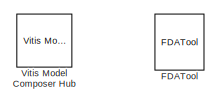
[diagram: root canvas - part 1/4, top left region]
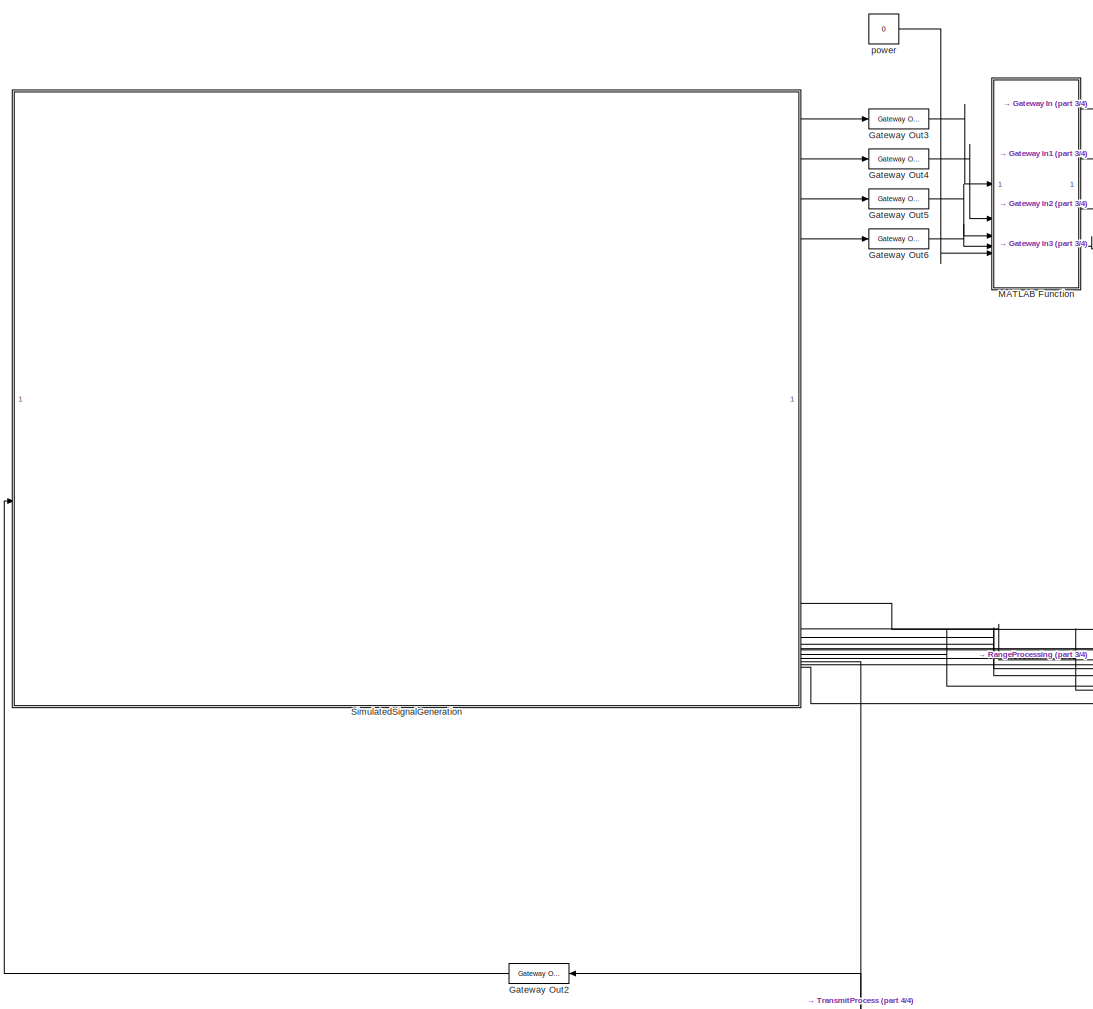
[diagram: root canvas - part 2/4, middle left region]
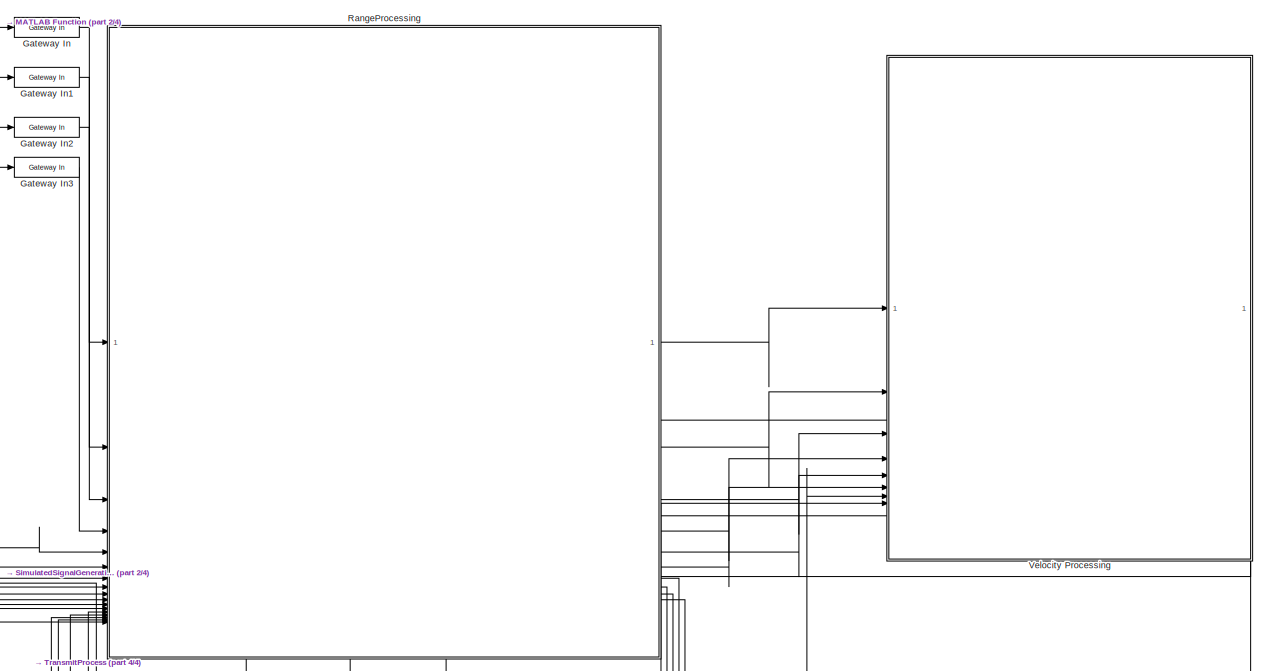
[diagram: root canvas - part 3/4, top right region]
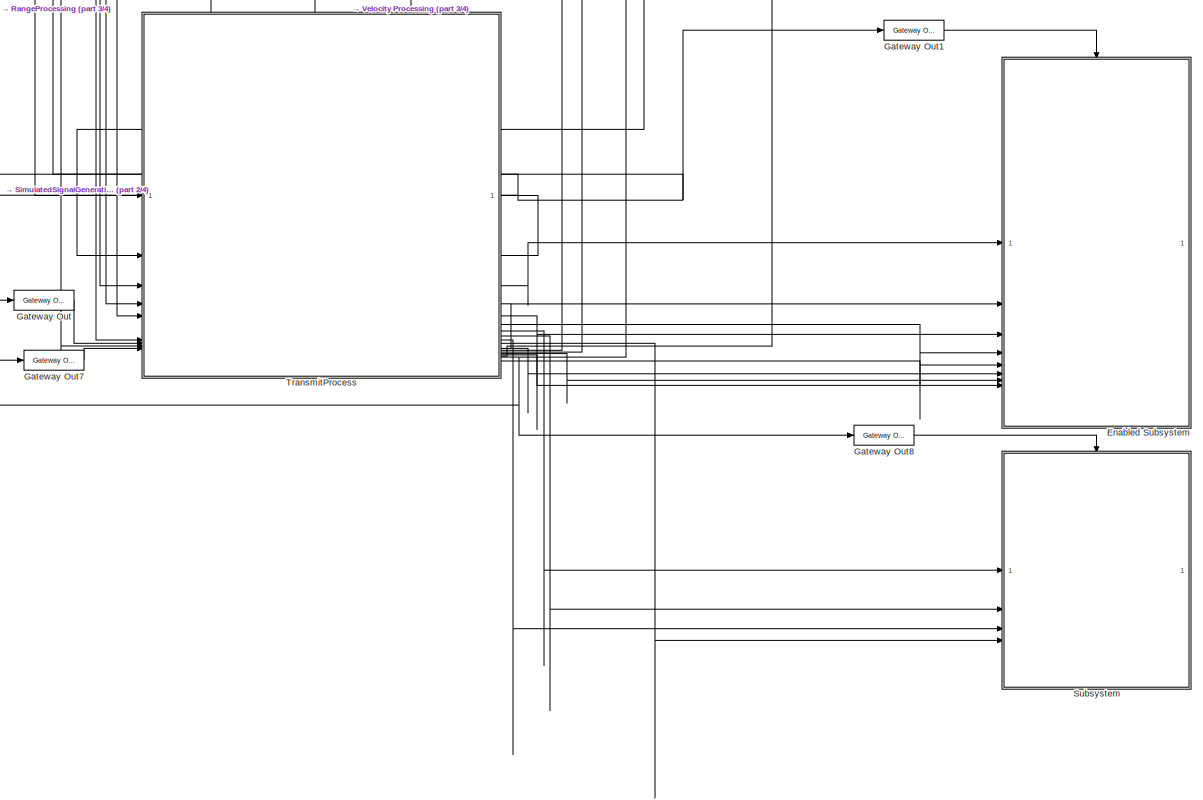
[diagram: root canvas - part 4/4, bottom right region]
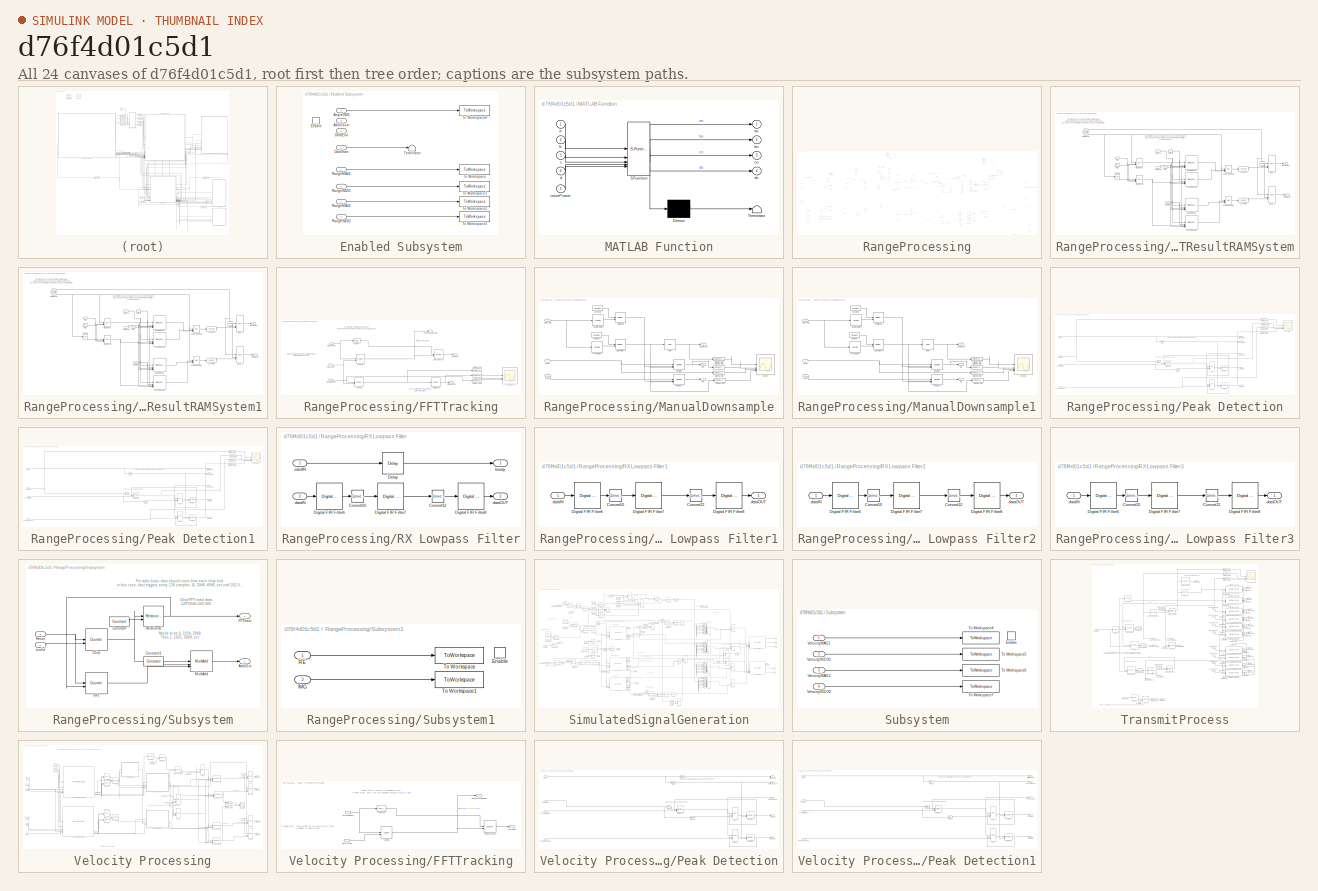
[diagram: thumbnail index - all 24 canvases of the model, root first then tree order]
MODEL slx_d76f4d01c5d1
KIND model
CONFIG AbsTol = auto
CONFIG EnableMultiTasking = off
CONFIG FixedStep = auto
CONFIG MaxStep = auto
CONFIG MinStep = auto
CONFIG RelTol = 1e-3
CONFIG SampleTimeConstraint = Unconstrained
CONFIG SolverName = VariableStepAuto
CONFIG StartTime = 0.0
CONFIG StopTime = 0.0125
BLOCK [SubSystem] Enabled Subsystem
  TreatAsAtomicUnit = on
BLOCK [Inport] Enabled Subsystem/AddrCount
  Port = 8
BLOCK [Inport] Enabled Subsystem/AngleINDX
  Port = 7
BLOCK [Inport] Enabled Subsystem/DataEnd
  Port = 6
BLOCK [Inport] Enabled Subsystem/DataStart
  Port = 5
BLOCK [EnablePort] Enabled Subsystem/Enable
BLOCK [Inport] Enabled Subsystem/RangeINDX1
  Port = 2
BLOCK [Inport] Enabled Subsystem/RangeINDX2
  Port = 4
BLOCK [Inport] Enabled Subsystem/RangeMAG1
BLOCK [Inport] Enabled Subsystem/RangeMAG2
  Port = 3
BLOCK [Terminator] Enabled Subsystem/Terminator
BLOCK [ToWorkspace] Enabled Subsystem/To Workspace
  FixptAsFi = on
  MaxDataPoints = inf
  SampleTime = -1
  Save2DSignal = 2-D array (concatenate along first dimension)
  VariableName = RangeMAG1
BLOCK [ToWorkspace] Enabled Subsystem/To Workspace1
  FixptAsFi = on
  MaxDataPoints = inf
  SampleTime = -1
  Save2DSignal = 2-D array (concatenate along first dimension)
  VariableName = RangeINDX1
BLOCK [ToWorkspace] Enabled Subsystem/To Workspace2
  FixptAsFi = on
  MaxDataPoints = inf
  SampleTime = -1
  Save2DSignal = 2-D array (concatenate along first dimension)
  VariableName = RangeMAG2
BLOCK [ToWorkspace] Enabled Subsystem/To Workspace3
  FixptAsFi = on
  MaxDataPoints = inf
  SampleTime = -1
  Save2DSignal = 2-D array (concatenate along first dimension)
  VariableName = RangeINDX2
BLOCK [ToWorkspace] Enabled Subsystem/To Workspace8
  FixptAsFi = on
  MaxDataPoints = inf
  SampleTime = -1
  Save2DSignal = 2-D array (concatenate along first dimension)
  VariableName = FrameNum
BLOCK [Reference] FDATool  REF=hdlUtilities/FDATool
  SourceBlock = hdlUtilities/FDATool
  SourceType = Xilinx FDATool Interface Block
  UserDataPersistent = on
BLOCK [Reference] Gateway In  REF=hdlBasic/Gateway In
  SourceBlock = hdlBasic/Gateway In
  SourceType = Gateway In Block
BLOCK [Reference] Gateway In1  REF=hdlBasic/Gateway In
  SourceBlock = hdlBasic/Gateway In
  SourceType = Gateway In Block
BLOCK [Reference] Gateway In2  REF=hdlBasic/Gateway In
  SourceBlock = hdlBasic/Gateway In
  SourceType = Gateway In Block
BLOCK [Reference] Gateway In3  REF=hdlBasic/Gateway In
  SourceBlock = hdlBasic/Gateway In
  SourceType = Gateway In Block
BLOCK [Reference] Gateway Out  REF=hdlBasic/Gateway Out
  SourceBlock = hdlBasic/Gateway Out
  SourceType = Gateway Out Block
BLOCK [Reference] Gateway Out1  REF=hdlBasic/Gateway Out
  SourceBlock = hdlBasic/Gateway Out
  SourceType = Gateway Out Block
BLOCK [Reference] Gateway Out2  REF=hdlBasic/Gateway Out
  SourceBlock = hdlBasic/Gateway Out
  SourceType = Gateway Out Block
BLOCK [Reference] Gateway Out3  REF=hdlBasic/Gateway Out
  SourceBlock = hdlBasic/Gateway Out
  SourceType = Gateway Out Block
BLOCK [Reference] Gateway Out4  REF=hdlBasic/Gateway Out
  SourceBlock = hdlBasic/Gateway Out
  SourceType = Gateway Out Block
BLOCK [Reference] Gateway Out5  REF=hdlBasic/Gateway Out
  SourceBlock = hdlBasic/Gateway Out
  SourceType = Gateway Out Block
BLOCK [Reference] Gateway Out6  REF=hdlBasic/Gateway Out
  SourceBlock = hdlBasic/Gateway Out
  SourceType = Gateway Out Block
BLOCK [Reference] Gateway Out7  REF=hdlBasic/Gateway Out
  SourceBlock = hdlBasic/Gateway Out
  SourceType = Gateway Out Block
BLOCK [Reference] Gateway Out8  REF=hdlBasic/Gateway Out
  SourceBlock = hdlBasic/Gateway Out
  SourceType = Gateway Out Block
BLOCK [SubSystem] MATLAB Function
  ErrorFcn = Stateflow.Translate.translate
  PermitHierarchicalResolution = ExplicitOnly
  SFBlockType = MATLAB Function
  TreatAsAtomicUnit = on
BLOCK [Demux] MATLAB Function/ Demux 
  Outputs = 1
BLOCK [S-Function] MATLAB Function/ SFunction 
  EnableBusSupport = on
  FunctionName = sf_sfun
  PortCounts = [5 5]
  SFcnIsStateOwnerBlock = off
  SFunctionDeploymentMode = off
  Tag = Stateflow S-Function 2
BLOCK [Terminator] MATLAB Function/ Terminator 
BLOCK [Inport] MATLAB Function/a
BLOCK [Outport] MATLAB Function/ao
BLOCK [Inport] MATLAB Function/b
  Port = 2
BLOCK [Outport] MATLAB Function/bo
  Port = 2
BLOCK [Inport] MATLAB Function/c
  Port = 3
BLOCK [Outport] MATLAB Function/co
  Port = 3
BLOCK [Inport] MATLAB Function/d
  Port = 4
BLOCK [Outport] MATLAB Function/do
  Port = 4
BLOCK [Inport] MATLAB Function/noisePower
  Port = 5
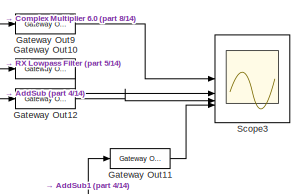
[diagram: RangeProcessing - part 1/14, top center region]
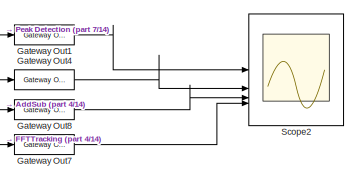
[diagram: RangeProcessing - part 2/14, top right region]
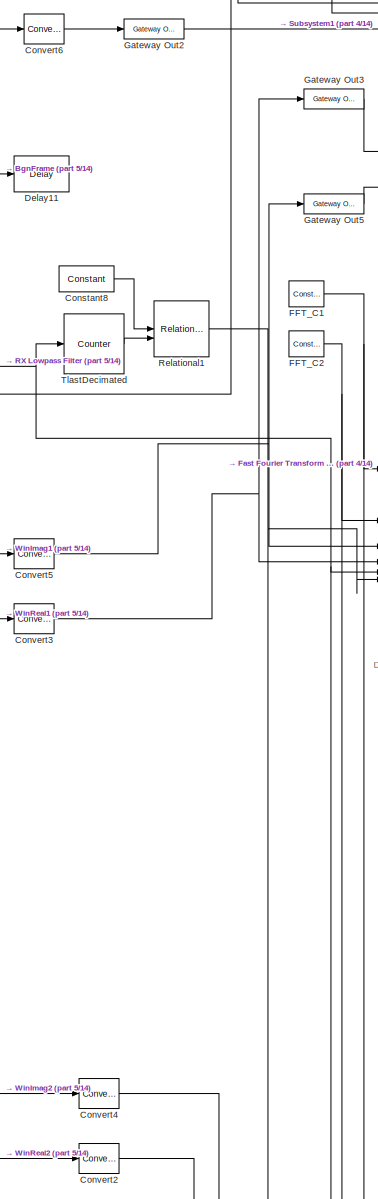
[diagram: RangeProcessing - part 3/14, central region]
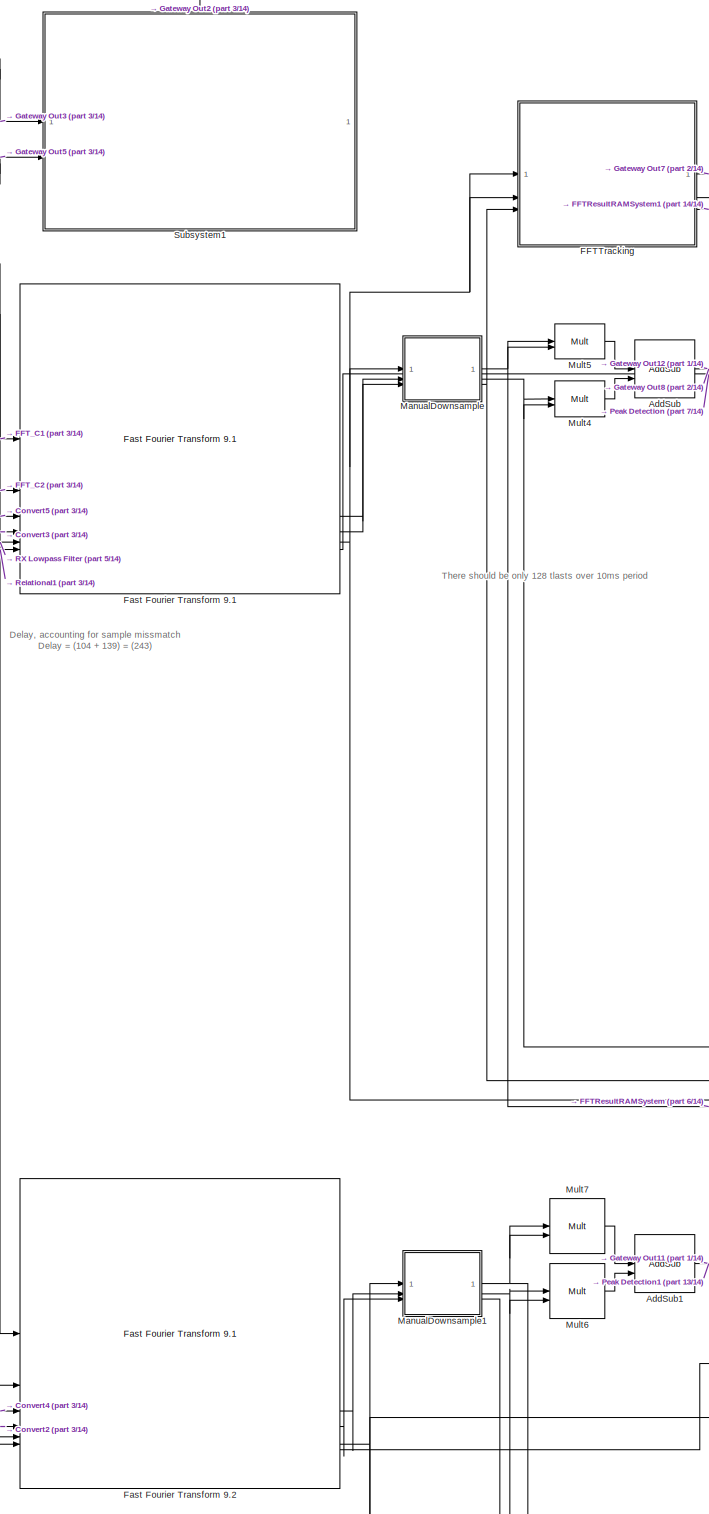
[diagram: RangeProcessing - part 4/14, central region]
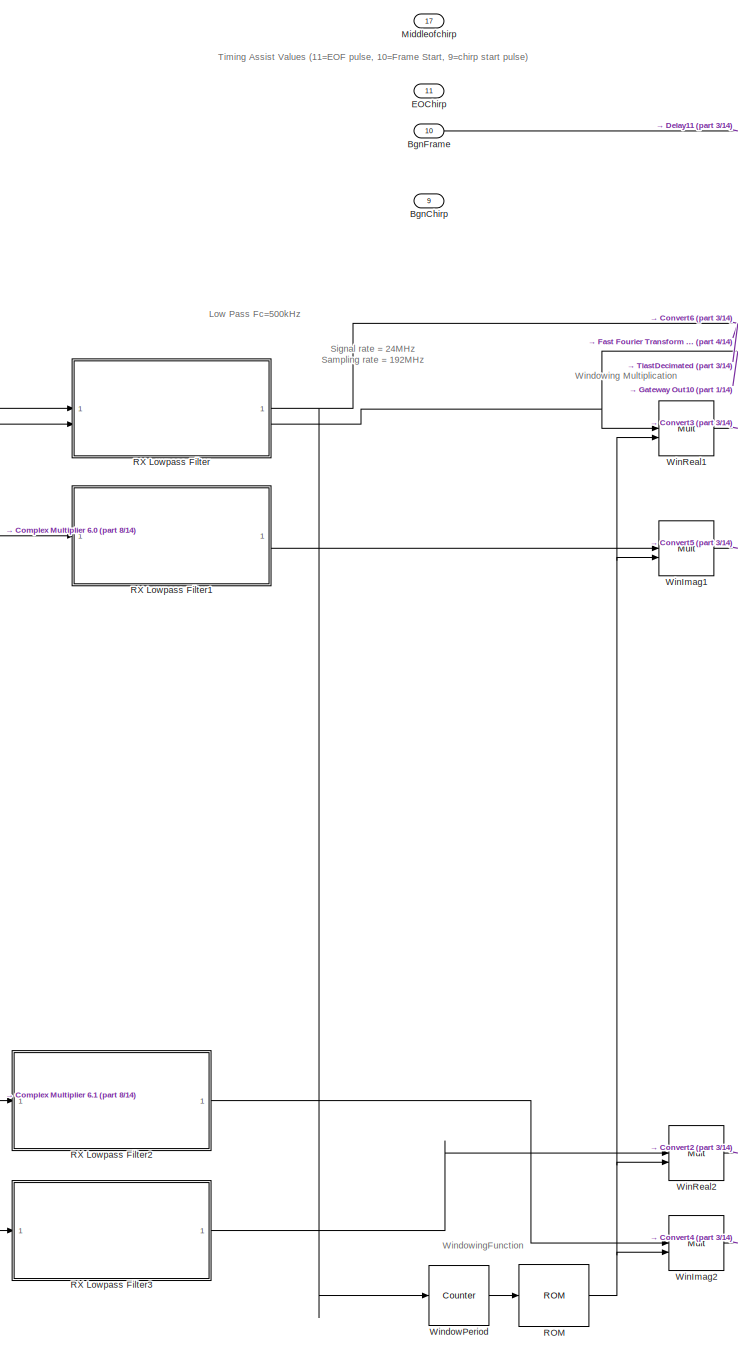
[diagram: RangeProcessing - part 5/14, middle left region]
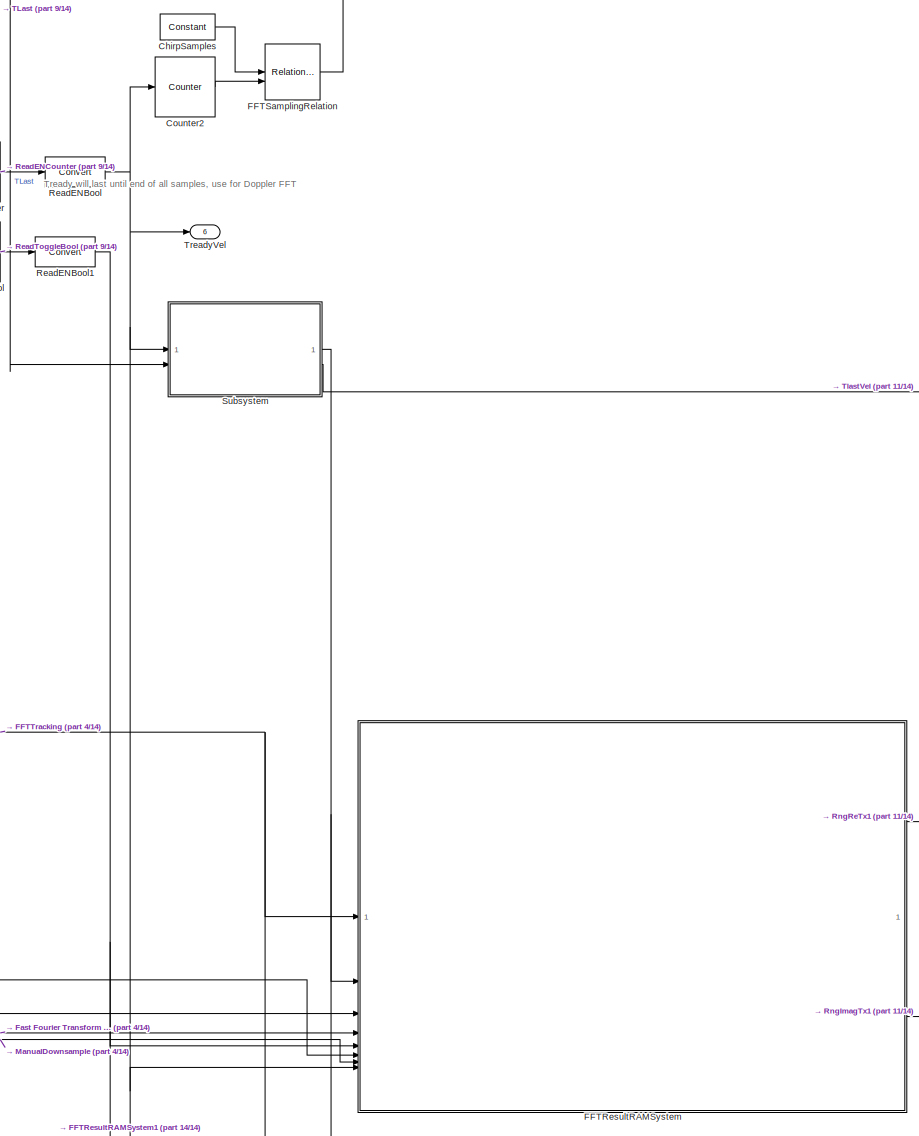
[diagram: RangeProcessing - part 6/14, middle right region]
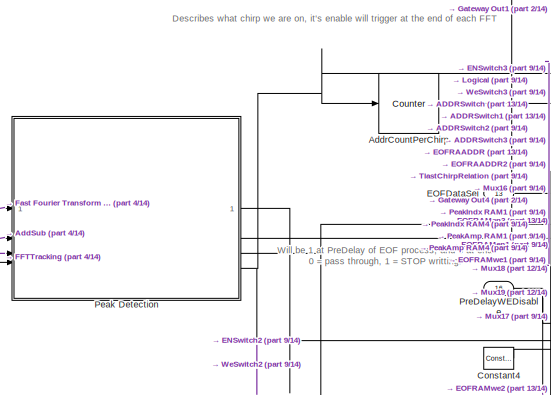
[diagram: RangeProcessing - part 7/14, central region]
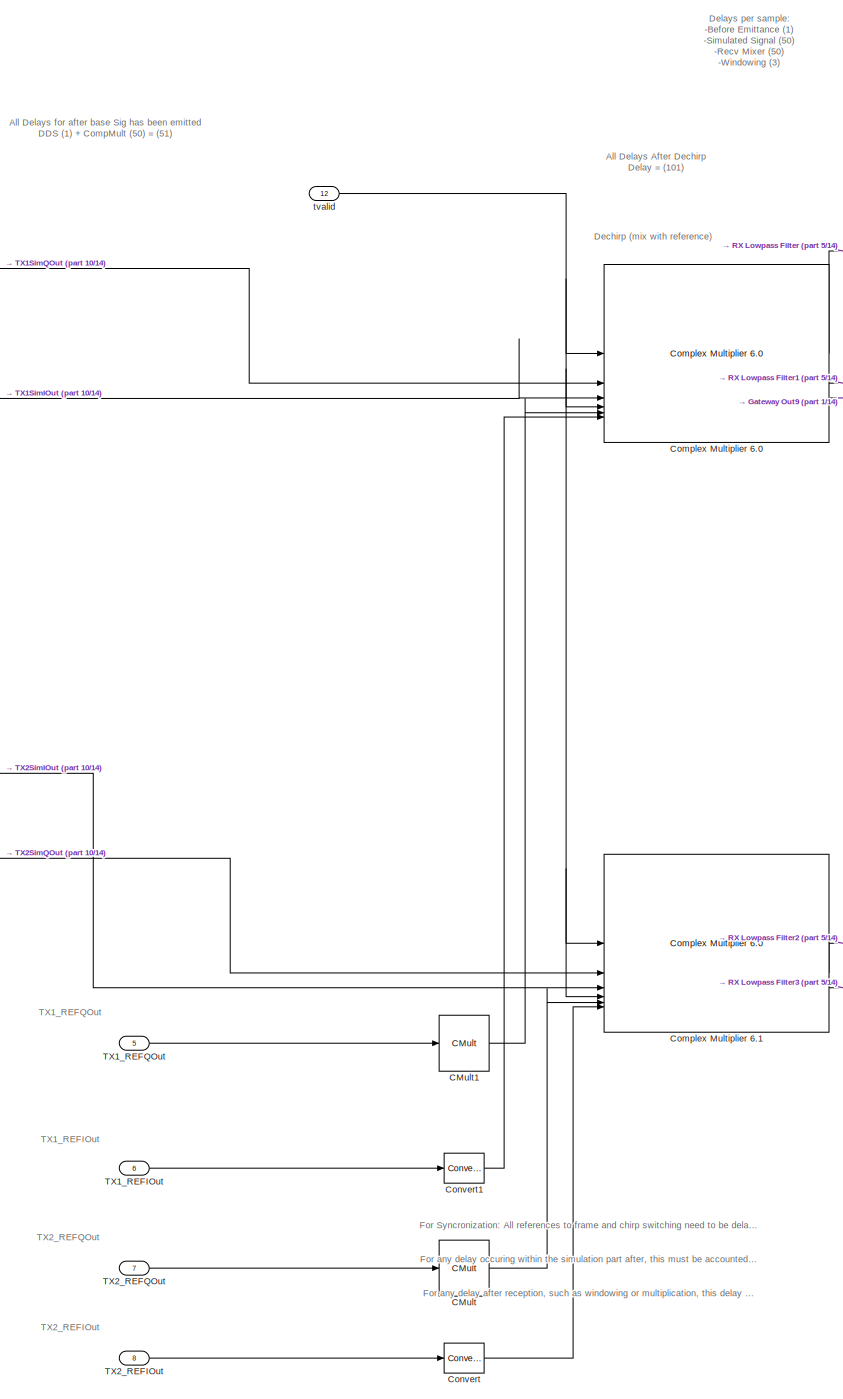
[diagram: RangeProcessing - part 8/14, middle left region]
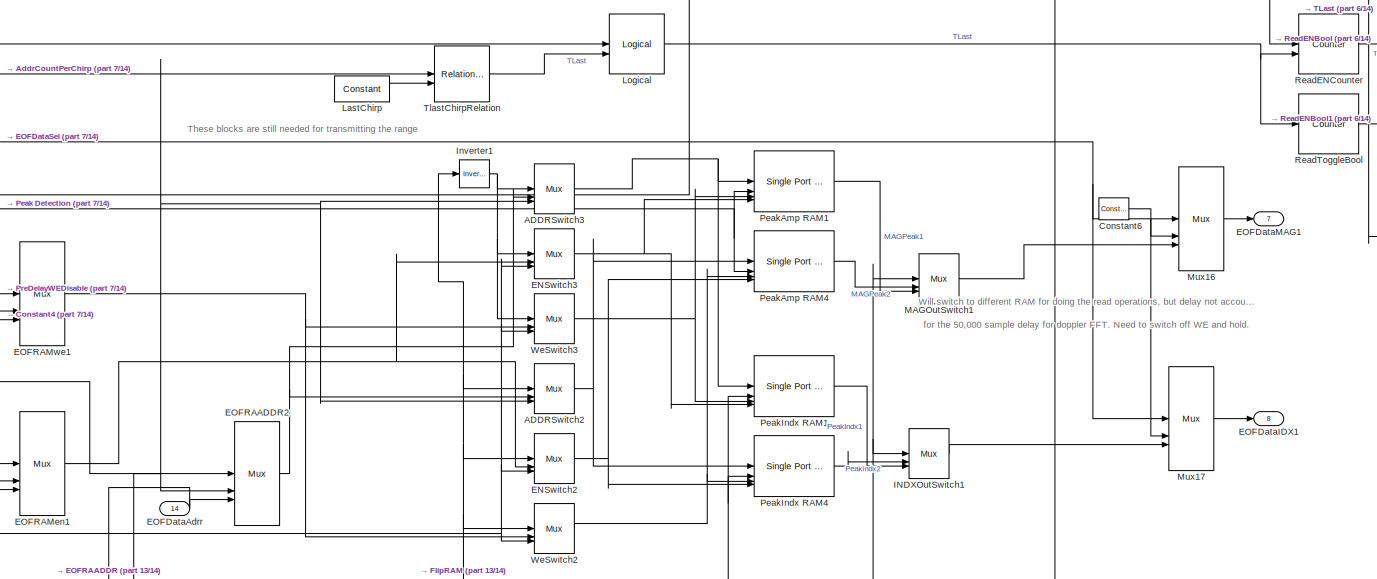
[diagram: RangeProcessing - part 9/14, middle right region]
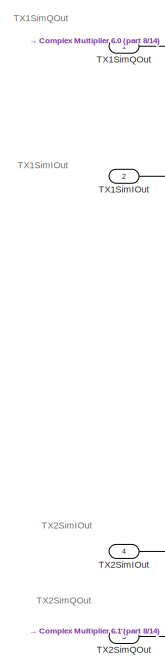
[diagram: RangeProcessing - part 10/14, middle left region]
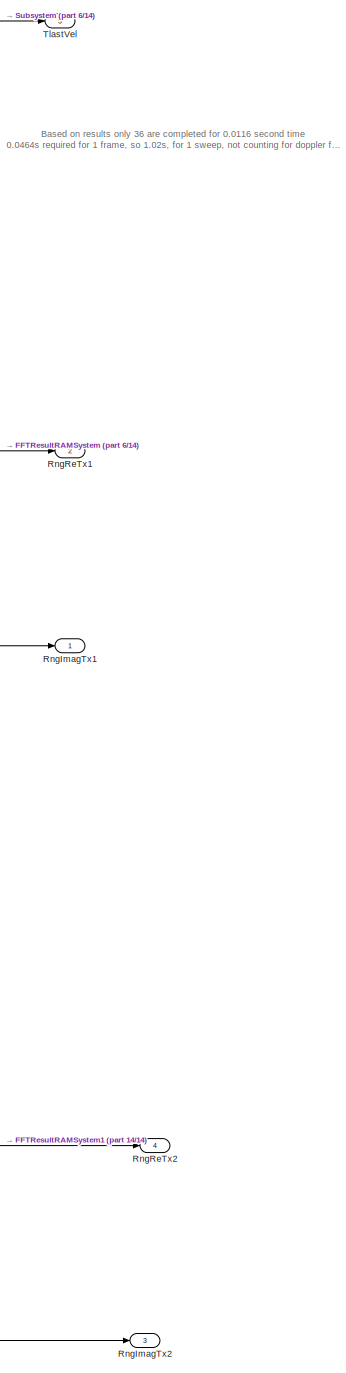
[diagram: RangeProcessing - part 11/14, middle right region]
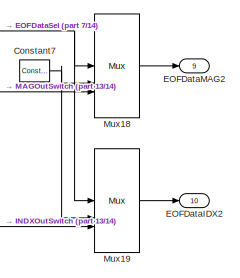
[diagram: RangeProcessing - part 12/14, bottom right region]
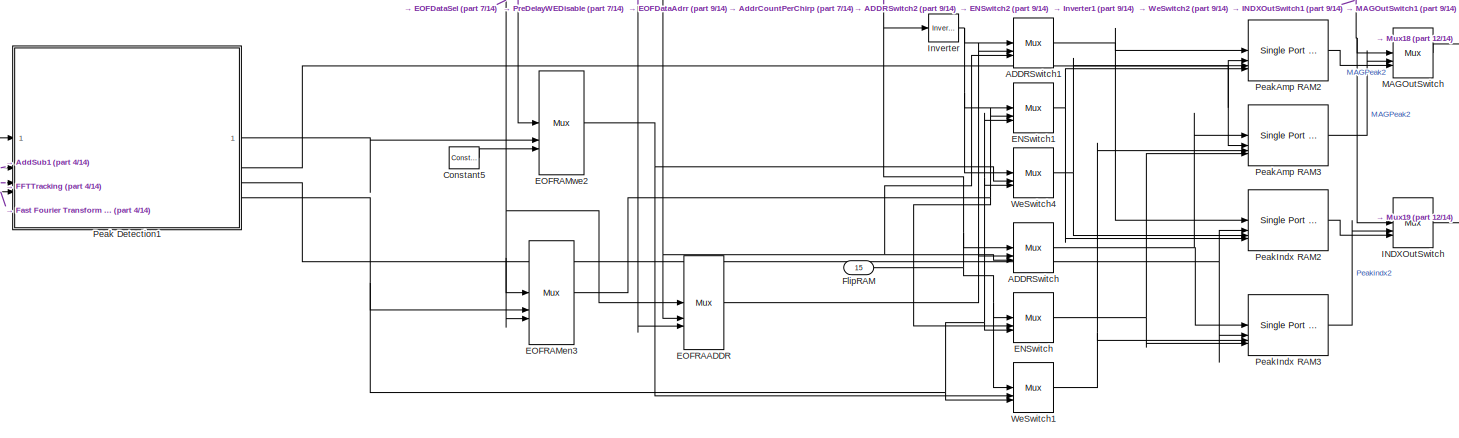
[diagram: RangeProcessing - part 13/14, bottom center region]
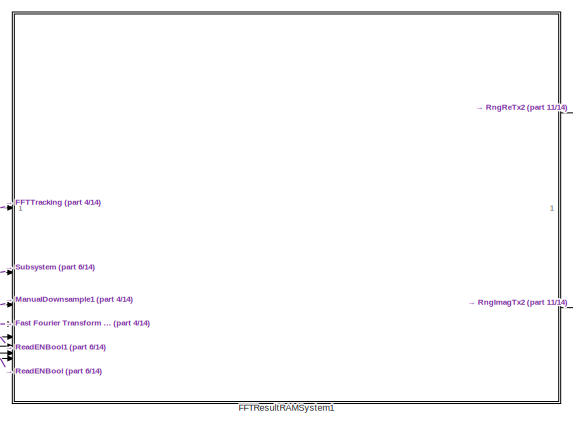
[diagram: RangeProcessing - part 14/14, bottom right region]
BLOCK [SubSystem] RangeProcessing
BLOCK [Reference] RangeProcessing/ADDRSwitch  REF=hdlBasic/Mux
  SourceBlock = hdlBasic/Mux
  SourceType = Bus Multiplexer Block
BLOCK [Reference] RangeProcessing/ADDRSwitch1  REF=hdlBasic/Mux
  SourceBlock = hdlBasic/Mux
  SourceType = Bus Multiplexer Block
BLOCK [Reference] RangeProcessing/ADDRSwitch2  REF=hdlBasic/Mux
  SourceBlock = hdlBasic/Mux
  SourceType = Bus Multiplexer Block
BLOCK [Reference] RangeProcessing/ADDRSwitch3  REF=hdlBasic/Mux
  SourceBlock = hdlBasic/Mux
  SourceType = Bus Multiplexer Block
BLOCK [Reference] RangeProcessing/AddSub  REF=hdlBasic/AddSub
  SourceBlock = hdlBasic/AddSub
  SourceType = Adder/Subtracter Block
BLOCK [Reference] RangeProcessing/AddSub1  REF=hdlBasic/AddSub
  SourceBlock = hdlBasic/AddSub
  SourceType = Adder/Subtracter Block
BLOCK [Reference] RangeProcessing/AddrCountPerChirp  REF=hdlBasic/Counter
  SourceBlock = hdlBasic/Counter
  SourceType = Counter Block
BLOCK [Inport] RangeProcessing/BgnChirp
  Port = 9
BLOCK [Inport] RangeProcessing/BgnFrame
  Port = 10
BLOCK [Reference] RangeProcessing/CMult  REF=hdlBasic/CMult
  SourceBlock = hdlBasic/CMult
  SourceType = Constant Multiplier Block
BLOCK [Reference] RangeProcessing/CMult1  REF=hdlBasic/CMult
  SourceBlock = hdlBasic/CMult
  SourceType = Constant Multiplier Block
BLOCK [Reference] RangeProcessing/ChirpSamples  REF=hdlBasic/Constant
  SourceBlock = hdlBasic/Constant
  SourceType = Constant Block Block
BLOCK [Reference] RangeProcessing/Complex Multiplier 6.0  REF=hdlDSPIP/Complex Multiplier 6.0 
  SourceBlock = hdlDSPIP/Complex Multiplier 6.0
  SourceType = Complex Multiplier 6.0  Block
BLOCK [Reference] RangeProcessing/Complex Multiplier 6.1  REF=hdlDSPIP/Complex Multiplier 6.0 
  SourceBlock = hdlDSPIP/Complex Multiplier 6.0
  SourceType = Complex Multiplier 6.0  Block
BLOCK [Reference] RangeProcessing/Constant4  REF=hdlBasic/Constant
  SourceBlock = hdlBasic/Constant
  SourceType = Constant Block Block
BLOCK [Reference] RangeProcessing/Constant5  REF=hdlBasic/Constant
  SourceBlock = hdlBasic/Constant
  SourceType = Constant Block Block
BLOCK [Reference] RangeProcessing/Constant6  REF=hdlBasic/Constant
  SourceBlock = hdlBasic/Constant
  SourceType = Constant Block Block
BLOCK [Reference] RangeProcessing/Constant7  REF=hdlBasic/Constant
  SourceBlock = hdlBasic/Constant
  SourceType = Constant Block Block
BLOCK [Reference] RangeProcessing/Constant8  REF=hdlBasic/Constant
  SourceBlock = hdlBasic/Constant
  SourceType = Constant Block Block
BLOCK [Reference] RangeProcessing/Convert  REF=hdlBasic/Convert
  SourceBlock = hdlBasic/Convert
  SourceType = Type Converter Block
BLOCK [Reference] RangeProcessing/Convert1  REF=hdlBasic/Convert
  SourceBlock = hdlBasic/Convert
  SourceType = Type Converter Block
BLOCK [Reference] RangeProcessing/Convert2  REF=hdlBasic/Convert
  SourceBlock = hdlBasic/Convert
  SourceType = Type Converter Block
BLOCK [Reference] RangeProcessing/Convert3  REF=hdlBasic/Convert
  SourceBlock = hdlBasic/Convert
  SourceType = Type Converter Block
BLOCK [Reference] RangeProcessing/Convert4  REF=hdlBasic/Convert
  SourceBlock = hdlBasic/Convert
  SourceType = Type Converter Block
BLOCK [Reference] RangeProcessing/Convert5  REF=hdlBasic/Convert
  SourceBlock = hdlBasic/Convert
  SourceType = Type Converter Block
BLOCK [Reference] RangeProcessing/Convert6  REF=hdlBasic/Convert
  SourceBlock = hdlBasic/Convert
  SourceType = Type Converter Block
BLOCK [Reference] RangeProcessing/Counter2  REF=hdlBasic/Counter
  SourceBlock = hdlBasic/Counter
  SourceType = Counter Block
BLOCK [Reference] RangeProcessing/Delay11  REF=hdlBasic/Delay
  SourceBlock = hdlBasic/Delay
  SourceType = Delay Block
BLOCK [Reference] RangeProcessing/ENSwitch  REF=hdlBasic/Mux
  SourceBlock = hdlBasic/Mux
  SourceType = Bus Multiplexer Block
BLOCK [Reference] RangeProcessing/ENSwitch1  REF=hdlBasic/Mux
  SourceBlock = hdlBasic/Mux
  SourceType = Bus Multiplexer Block
BLOCK [Reference] RangeProcessing/ENSwitch2  REF=hdlBasic/Mux
  SourceBlock = hdlBasic/Mux
  SourceType = Bus Multiplexer Block
BLOCK [Reference] RangeProcessing/ENSwitch3  REF=hdlBasic/Mux
  SourceBlock = hdlBasic/Mux
  SourceType = Bus Multiplexer Block
BLOCK [Inport] RangeProcessing/EOChirp
  Port = 11
BLOCK [Inport] RangeProcessing/EOFDataAdrr
  Port = 14
BLOCK [Outport] RangeProcessing/EOFDataIDX1
  Port = 8
BLOCK [Outport] RangeProcessing/EOFDataIDX2
  Port = 10
BLOCK [Outport] RangeProcessing/EOFDataMAG1
  Port = 7
BLOCK [Outport] RangeProcessing/EOFDataMAG2
  Port = 9
BLOCK [Inport] RangeProcessing/EOFDataSel
  Port = 13
BLOCK [Reference] RangeProcessing/EOFRAADDR  REF=hdlBasic/Mux
  SourceBlock = hdlBasic/Mux
  SourceType = Bus Multiplexer Block
BLOCK [Reference] RangeProcessing/EOFRAADDR2  REF=hdlBasic/Mux
  SourceBlock = hdlBasic/Mux
  SourceType = Bus Multiplexer Block
BLOCK [Reference] RangeProcessing/EOFRAMen1  REF=hdlBasic/Mux
  SourceBlock = hdlBasic/Mux
  SourceType = Bus Multiplexer Block
BLOCK [Reference] RangeProcessing/EOFRAMen3  REF=hdlBasic/Mux
  SourceBlock = hdlBasic/Mux
  SourceType = Bus Multiplexer Block
BLOCK [Reference] RangeProcessing/EOFRAMwe1  REF=hdlBasic/Mux
  SourceBlock = hdlBasic/Mux
  SourceType = Bus Multiplexer Block
BLOCK [Reference] RangeProcessing/EOFRAMwe2  REF=hdlBasic/Mux
  SourceBlock = hdlBasic/Mux
  SourceType = Bus Multiplexer Block
BLOCK [SubSystem] RangeProcessing/FFTResultRAMSystem
BLOCK [Inport] RangeProcessing/FFTResultRAMSystem/AddressA
BLOCK [Inport] RangeProcessing/FFTResultRAMSystem/AddressB
  Port = 2
BLOCK [Reference] RangeProcessing/FFTResultRAMSystem/Convert7  REF=hdlBasic/Convert
  SourceBlock = hdlBasic/Convert
  SourceType = Type Converter Block
BLOCK [Reference] RangeProcessing/FFTResultRAMSystem/Convert8  REF=hdlBasic/Convert
  SourceBlock = hdlBasic/Convert
  SourceType = Type Converter Block
BLOCK [Inport] RangeProcessing/FFTResultRAMSystem/DataIMG
  Port = 7
BLOCK [Inport] RangeProcessing/FFTResultRAMSystem/DataRE
  Port = 6
BLOCK [Reference] RangeProcessing/FFTResultRAMSystem/Dual Port RAM1 A  REF=hdlBasic/Simple Dual Port RAM
  SourceBlock = hdlBasic/Simple Dual Port RAM
  SourceType = Simple Dual Port Random Access Memory Block
BLOCK [Reference] RangeProcessing/FFTResultRAMSystem/Dual Port RAM1 B  REF=hdlBasic/Simple Dual Port RAM
  SourceBlock = hdlBasic/Simple Dual Port RAM
  SourceType = Simple Dual Port Random Access Memory Block
BLOCK [Reference] RangeProcessing/FFTResultRAMSystem/Dual Port RAM2 A  REF=hdlBasic/Simple Dual Port RAM
  SourceBlock = hdlBasic/Simple Dual Port RAM
  SourceType = Simple Dual Port Random Access Memory Block
BLOCK [Reference] RangeProcessing/FFTResultRAMSystem/Dual Port RAM2 B  REF=hdlBasic/Simple Dual Port RAM
  SourceBlock = hdlBasic/Simple Dual Port RAM
  SourceType = Simple Dual Port Random Access Memory Block
BLOCK [Reference] RangeProcessing/FFTResultRAMSystem/DualRAMOutSW1  REF=hdlBasic/Mux
  SourceBlock = hdlBasic/Mux
  SourceType = Bus Multiplexer Block
BLOCK [Reference] RangeProcessing/FFTResultRAMSystem/DualRAMOutSW2  REF=hdlBasic/Mux
  SourceBlock = hdlBasic/Mux
  SourceType = Bus Multiplexer Block
BLOCK [Inport] RangeProcessing/FFTResultRAMSystem/EN
  Port = 4
BLOCK [Reference] RangeProcessing/FFTResultRAMSystem/Inverter1  REF=hdlBasic/Inverter
  SourceBlock = hdlBasic/Inverter
  SourceType = Inverter Block
BLOCK [Reference] RangeProcessing/FFTResultRAMSystem/Mux12  REF=hdlBasic/Mux
  SourceBlock = hdlBasic/Mux
  SourceType = Bus Multiplexer Block
BLOCK [Reference] RangeProcessing/FFTResultRAMSystem/Mux13  REF=hdlBasic/Mux
  SourceBlock = hdlBasic/Mux
  SourceType = Bus Multiplexer Block
BLOCK [Reference] RangeProcessing/FFTResultRAMSystem/Null1  REF=hdlBasic/Constant
  SourceBlock = hdlBasic/Constant
  SourceType = Constant Block Block
BLOCK [Reference] RangeProcessing/FFTResultRAMSystem/Null2  REF=hdlBasic/Constant
  SourceBlock = hdlBasic/Constant
  SourceType = Constant Block Block
BLOCK [Outport] RangeProcessing/FFTResultRAMSystem/RngIMGTx1
  Port = 2
BLOCK [Outport] RangeProcessing/FFTResultRAMSystem/RngRETx1
BLOCK [Inport] RangeProcessing/FFTResultRAMSystem/SwapRAM
  Port = 5
BLOCK [Inport] RangeProcessing/FFTResultRAMSystem/TransmitSel
  Port = 8
BLOCK [Inport] RangeProcessing/FFTResultRAMSystem/WE
  Port = 3
BLOCK [Reference] RangeProcessing/FFTResultRAMSystem/WEDisEnbA  REF=hdlBasic/Mux
  SourceBlock = hdlBasic/Mux
  SourceType = Bus Multiplexer Block
BLOCK [Reference] RangeProcessing/FFTResultRAMSystem/WEDisEnbB  REF=hdlBasic/Mux
  SourceBlock = hdlBasic/Mux
  SourceType = Bus Multiplexer Block
BLOCK [SubSystem] RangeProcessing/FFTResultRAMSystem1
BLOCK [Inport] RangeProcessing/FFTResultRAMSystem1/AddressA
BLOCK [Inport] RangeProcessing/FFTResultRAMSystem1/AddressB
  Port = 2
BLOCK [Reference] RangeProcessing/FFTResultRAMSystem1/Convert7  REF=hdlBasic/Convert
  SourceBlock = hdlBasic/Convert
  SourceType = Type Converter Block
BLOCK [Reference] RangeProcessing/FFTResultRAMSystem1/Convert8  REF=hdlBasic/Convert
  SourceBlock = hdlBasic/Convert
  SourceType = Type Converter Block
BLOCK [Inport] RangeProcessing/FFTResultRAMSystem1/DataIMG
  Port = 7
BLOCK [Inport] RangeProcessing/FFTResultRAMSystem1/DataRE
  Port = 6
BLOCK [Reference] RangeProcessing/FFTResultRAMSystem1/Dual Port RAM1 A  REF=hdlBasic/Simple Dual Port RAM
  SourceBlock = hdlBasic/Simple Dual Port RAM
  SourceType = Simple Dual Port Random Access Memory Block
BLOCK [Reference] RangeProcessing/FFTResultRAMSystem1/Dual Port RAM1 B  REF=hdlBasic/Simple Dual Port RAM
  SourceBlock = hdlBasic/Simple Dual Port RAM
  SourceType = Simple Dual Port Random Access Memory Block
BLOCK [Reference] RangeProcessing/FFTResultRAMSystem1/Dual Port RAM2 A  REF=hdlBasic/Simple Dual Port RAM
  SourceBlock = hdlBasic/Simple Dual Port RAM
  SourceType = Simple Dual Port Random Access Memory Block
BLOCK [Reference] RangeProcessing/FFTResultRAMSystem1/Dual Port RAM2 B  REF=hdlBasic/Simple Dual Port RAM
  SourceBlock = hdlBasic/Simple Dual Port RAM
  SourceType = Simple Dual Port Random Access Memory Block
BLOCK [Reference] RangeProcessing/FFTResultRAMSystem1/DualRAMOutSW1  REF=hdlBasic/Mux
  SourceBlock = hdlBasic/Mux
  SourceType = Bus Multiplexer Block
BLOCK [Reference] RangeProcessing/FFTResultRAMSystem1/DualRAMOutSW2  REF=hdlBasic/Mux
  SourceBlock = hdlBasic/Mux
  SourceType = Bus Multiplexer Block
BLOCK [Inport] RangeProcessing/FFTResultRAMSystem1/EN
  Port = 4
BLOCK [Reference] RangeProcessing/FFTResultRAMSystem1/Inverter1  REF=hdlBasic/Inverter
  SourceBlock = hdlBasic/Inverter
  SourceType = Inverter Block
BLOCK [Reference] RangeProcessing/FFTResultRAMSystem1/Mux12  REF=hdlBasic/Mux
  SourceBlock = hdlBasic/Mux
  SourceType = Bus Multiplexer Block
BLOCK [Reference] RangeProcessing/FFTResultRAMSystem1/Mux13  REF=hdlBasic/Mux
  SourceBlock = hdlBasic/Mux
  SourceType = Bus Multiplexer Block
BLOCK [Reference] RangeProcessing/FFTResultRAMSystem1/Null1  REF=hdlBasic/Constant
  SourceBlock = hdlBasic/Constant
  SourceType = Constant Block Block
BLOCK [Reference] RangeProcessing/FFTResultRAMSystem1/Null2  REF=hdlBasic/Constant
  SourceBlock = hdlBasic/Constant
  SourceType = Constant Block Block
BLOCK [Outport] RangeProcessing/FFTResultRAMSystem1/RngIMGTx1
  Port = 2
BLOCK [Outport] RangeProcessing/FFTResultRAMSystem1/RngRETx1
BLOCK [Inport] RangeProcessing/FFTResultRAMSystem1/SwapRAM
  Port = 5
BLOCK [Inport] RangeProcessing/FFTResultRAMSystem1/TransmitSel
  Port = 8
BLOCK [Inport] RangeProcessing/FFTResultRAMSystem1/WE
  Port = 3
BLOCK [Reference] RangeProcessing/FFTResultRAMSystem1/WEDisEnbA  REF=hdlBasic/Mux
  SourceBlock = hdlBasic/Mux
  SourceType = Bus Multiplexer Block
BLOCK [Reference] RangeProcessing/FFTResultRAMSystem1/WEDisEnbB  REF=hdlBasic/Mux
  SourceBlock = hdlBasic/Mux
  SourceType = Bus Multiplexer Block
BLOCK [Reference] RangeProcessing/FFTSamplingRelation  REF=hdlBasic/Relational
  SourceBlock = hdlBasic/Relational
  SourceType = Arithmetic Relational Operator Block
BLOCK [SubSystem] RangeProcessing/FFTTracking
BLOCK [Reference] RangeProcessing/FFTTracking/AddrforIQvals  REF=hdlBasic/Counter
  SourceBlock = hdlBasic/Counter
  SourceType = Counter Block
BLOCK [Inport] RangeProcessing/FFTTracking/DecimatedTrig
  Port = 3
BLOCK [Outport] RangeProcessing/FFTTracking/FFTIndex
BLOCK [Reference] RangeProcessing/FFTTracking/Gateway Out1  REF=hdlBasic/Gateway Out
  SourceBlock = hdlBasic/Gateway Out
  SourceType = Gateway Out Block
BLOCK [Reference] RangeProcessing/FFTTracking/Gateway Out15  REF=hdlBasic/Gateway Out
  SourceBlock = hdlBasic/Gateway Out
  SourceType = Gateway Out Block
BLOCK [Reference] RangeProcessing/FFTTracking/Gateway Out4  REF=hdlBasic/Gateway Out
  SourceBlock = hdlBasic/Gateway Out
  SourceType = Gateway Out Block
BLOCK [Outport] RangeProcessing/FFTTracking/IQDataADDR
  Port = 3
BLOCK [Reference] RangeProcessing/FFTTracking/IndexTracker  REF=hdlBasic/Counter
  SourceBlock = hdlBasic/Counter
  SourceType = Counter Block
BLOCK [Reference] RangeProcessing/FFTTracking/Inverter  REF=hdlBasic/Inverter
  SourceBlock = hdlBasic/Inverter
  SourceType = Inverter Block
BLOCK [Reference] RangeProcessing/FFTTracking/Logical1  REF=hdlBasic/Logical
  SourceBlock = hdlBasic/Logical
  SourceType = Logical Block Block
BLOCK [Reference] RangeProcessing/FFTTracking/Logical2  REF=hdlBasic/Logical
  SourceBlock = hdlBasic/Logical
  SourceType = Logical Block Block
BLOCK [Outport] RangeProcessing/FFTTracking/PeakSerachEnable
  Port = 2
BLOCK [Scope] RangeProcessing/FFTTracking/Scope3
  Floating = off
  NumInputPorts = 3
  ScopeSpecificationString = Simulink.scopes.TimeScopeBlockCfg('CurrentConfiguration', extmgr.ConfigurationSet(extmgr.Configuration('Core','General UI',true),extmgr.Configuration('Core','Source UI',true),extmgr.Configuration('Sources','WiredSimulink',true,'DataLoggingVariableName','ScopeData1'),extmgr.Configuration('Visuals','Time Domain',true,'SerializedDisplays',{struct('MinYLimReal','-0.125','MaxYLimReal','1.125','YLabelRe...<+3365ch>
BLOCK [Inport] RangeProcessing/FFTTracking/StatusReady
  Port = 2
BLOCK [Inport] RangeProcessing/FFTTracking/data_Active
BLOCK [Reference] RangeProcessing/FFT_C1  REF=hdlBasic/Constant
  SourceBlock = hdlBasic/Constant
  SourceType = Constant Block Block
BLOCK [Reference] RangeProcessing/FFT_C2  REF=hdlBasic/Constant
  SourceBlock = hdlBasic/Constant
  SourceType = Constant Block Block
BLOCK [Reference] RangeProcessing/Fast Fourier Transform 9.1  REF=hdlDSPIP/Fast Fourier Transform 9.1 
  SourceBlock = hdlDSPIP/Fast Fourier Transform 9.1
  SourceType = Fast Fourier Transform 9.1  Block
BLOCK [Reference] RangeProcessing/Fast Fourier Transform 9.2  REF=hdlDSPIP/Fast Fourier Transform 9.1 
  SourceBlock = hdlDSPIP/Fast Fourier Transform 9.1
  SourceType = Fast Fourier Transform 9.1  Block
BLOCK [Inport] RangeProcessing/FlipRAM
  Port = 15
BLOCK [Reference] RangeProcessing/Gateway Out1  REF=hdlBasic/Gateway Out
  SourceBlock = hdlBasic/Gateway Out
  SourceType = Gateway Out Block
BLOCK [Reference] RangeProcessing/Gateway Out10  REF=hdlBasic/Gateway Out
  SourceBlock = hdlBasic/Gateway Out
  SourceType = Gateway Out Block
BLOCK [Reference] RangeProcessing/Gateway Out11  REF=hdlBasic/Gateway Out
  SourceBlock = hdlBasic/Gateway Out
  SourceType = Gateway Out Block
BLOCK [Reference] RangeProcessing/Gateway Out12  REF=hdlBasic/Gateway Out
  SourceBlock = hdlBasic/Gateway Out
  SourceType = Gateway Out Block
BLOCK [Reference] RangeProcessing/Gateway Out2  REF=hdlBasic/Gateway Out
  SourceBlock = hdlBasic/Gateway Out
  SourceType = Gateway Out Block
BLOCK [Reference] RangeProcessing/Gateway Out3  REF=hdlBasic/Gateway Out
  SourceBlock = hdlBasic/Gateway Out
  SourceType = Gateway Out Block
BLOCK [Reference] RangeProcessing/Gateway Out4  REF=hdlBasic/Gateway Out
  SourceBlock = hdlBasic/Gateway Out
  SourceType = Gateway Out Block
BLOCK [Reference] RangeProcessing/Gateway Out5  REF=hdlBasic/Gateway Out
  SourceBlock = hdlBasic/Gateway Out
  SourceType = Gateway Out Block
BLOCK [Reference] RangeProcessing/Gateway Out7  REF=hdlBasic/Gateway Out
  SourceBlock = hdlBasic/Gateway Out
  SourceType = Gateway Out Block
BLOCK [Reference] RangeProcessing/Gateway Out8  REF=hdlBasic/Gateway Out
  SourceBlock = hdlBasic/Gateway Out
  SourceType = Gateway Out Block
BLOCK [Reference] RangeProcessing/Gateway Out9  REF=hdlBasic/Gateway Out
  SourceBlock = hdlBasic/Gateway Out
  SourceType = Gateway Out Block
BLOCK [Reference] RangeProcessing/INDXOutSwitch  REF=hdlBasic/Mux
  SourceBlock = hdlBasic/Mux
  SourceType = Bus Multiplexer Block
BLOCK [Reference] RangeProcessing/INDXOutSwitch1  REF=hdlBasic/Mux
  SourceBlock = hdlBasic/Mux
  SourceType = Bus Multiplexer Block
BLOCK [Reference] RangeProcessing/Inverter  REF=hdlBasic/Inverter
  SourceBlock = hdlBasic/Inverter
  SourceType = Inverter Block
BLOCK [Reference] RangeProcessing/Inverter1  REF=hdlBasic/Inverter
  SourceBlock = hdlBasic/Inverter
  SourceType = Inverter Block
BLOCK [Reference] RangeProcessing/LastChirp  REF=hdlBasic/Constant
  SourceBlock = hdlBasic/Constant
  SourceType = Constant Block Block
BLOCK [Reference] RangeProcessing/Logical  REF=hdlBasic/Logical
  SourceBlock = hdlBasic/Logical
  SourceType = Logical Block Block
BLOCK [Reference] RangeProcessing/MAGOutSwitch  REF=hdlBasic/Mux
  SourceBlock = hdlBasic/Mux
  SourceType = Bus Multiplexer Block
BLOCK [Reference] RangeProcessing/MAGOutSwitch1  REF=hdlBasic/Mux
  SourceBlock = hdlBasic/Mux
  SourceType = Bus Multiplexer Block
BLOCK [SubSystem] RangeProcessing/ManualDownsample
BLOCK [Reference] RangeProcessing/ManualDownsample/Constant1  REF=hdlBasic/Constant
  SourceBlock = hdlBasic/Constant
  SourceType = Constant Block Block
BLOCK [Reference] RangeProcessing/ManualDownsample/Delay  REF=hdlBasic/Delay
  SourceBlock = hdlBasic/Delay
  SourceType = Delay Block
BLOCK [Reference] RangeProcessing/ManualDownsample/FFTSampler  REF=hdlBasic/Counter
  SourceBlock = hdlBasic/Counter
  SourceType = Counter Block
BLOCK [Reference] RangeProcessing/ManualDownsample/Gateway Out2  REF=hdlBasic/Gateway Out
  SourceBlock = hdlBasic/Gateway Out
  SourceType = Gateway Out Block
BLOCK [Reference] RangeProcessing/ManualDownsample/Gateway Out3  REF=hdlBasic/Gateway Out
  SourceBlock = hdlBasic/Gateway Out
  SourceType = Gateway Out Block
BLOCK [Reference] RangeProcessing/ManualDownsample/Gateway Out5  REF=hdlBasic/Gateway Out
  SourceBlock = hdlBasic/Gateway Out
  SourceType = Gateway Out Block
BLOCK [Reference] RangeProcessing/ManualDownsample/Gateway Out6  REF=hdlBasic/Gateway Out
  SourceBlock = hdlBasic/Gateway Out
  SourceType = Gateway Out Block
BLOCK [Outport] RangeProcessing/ManualDownsample/IMG
BLOCK [Inport] RangeProcessing/ManualDownsample/Input1
  Port = 2
BLOCK [Inport] RangeProcessing/ManualDownsample/Input2
  Port = 3
BLOCK [Outport] RangeProcessing/ManualDownsample/OnDataTrig
  IconDisplay = Signal name
  Port = 3
BLOCK [Outport] RangeProcessing/ManualDownsample/RE
  Port = 2
BLOCK [Reference] RangeProcessing/ManualDownsample/Register  REF=hdlBasic/Register
  SourceBlock = hdlBasic/Register
  SourceType = Register Block
BLOCK [Reference] RangeProcessing/ManualDownsample/Register1  REF=hdlBasic/Register
  SourceBlock = hdlBasic/Register
  SourceType = Register Block
BLOCK [Reference] RangeProcessing/ManualDownsample/Relational1  REF=hdlBasic/Relational
  SourceBlock = hdlBasic/Relational
  SourceType = Arithmetic Relational Operator Block
BLOCK [Reference] RangeProcessing/ManualDownsample/SamNum  REF=hdlBasic/Constant
  SourceBlock = hdlBasic/Constant
  SourceType = Constant Block Block
BLOCK [Scope] RangeProcessing/ManualDownsample/Scope1
  Floating = off
  NumInputPorts = 4
  ScopeSpecificationString = Simulink.scopes.TimeScopeBlockCfg('CurrentConfiguration', extmgr.ConfigurationSet(extmgr.Configuration('Core','General UI',true),extmgr.Configuration('Core','Source UI',true),extmgr.Configuration('Sources','WiredSimulink',true,'DataLoggingVariableName','ScopeData1'),extmgr.Configuration('Visuals','Time Domain',true,'SerializedDisplays',{struct('MinYLimReal','-1.00000','MaxYLimReal','1.00000','YLab...<+4140ch>
BLOCK [Reference] RangeProcessing/ManualDownsample/TlastDecimated  REF=hdlBasic/Counter
  SourceBlock = hdlBasic/Counter
  SourceType = Counter Block
BLOCK [Inport] RangeProcessing/ManualDownsample/data_valid
BLOCK [Reference] RangeProcessing/ManualDownsample/datavalidFFT  REF=hdlBasic/Relational
  SourceBlock = hdlBasic/Relational
  SourceType = Arithmetic Relational Operator Block
BLOCK [SubSystem] RangeProcessing/ManualDownsample1
BLOCK [Reference] RangeProcessing/ManualDownsample1/Constant1  REF=hdlBasic/Constant
  SourceBlock = hdlBasic/Constant
  SourceType = Constant Block Block
BLOCK [Reference] RangeProcessing/ManualDownsample1/Delay  REF=hdlBasic/Delay
  SourceBlock = hdlBasic/Delay
  SourceType = Delay Block
BLOCK [Reference] RangeProcessing/ManualDownsample1/FFTSampler  REF=hdlBasic/Counter
  SourceBlock = hdlBasic/Counter
  SourceType = Counter Block
BLOCK [Reference] RangeProcessing/ManualDownsample1/Gateway Out2  REF=hdlBasic/Gateway Out
  SourceBlock = hdlBasic/Gateway Out
  SourceType = Gateway Out Block
BLOCK [Reference] RangeProcessing/ManualDownsample1/Gateway Out3  REF=hdlBasic/Gateway Out
  SourceBlock = hdlBasic/Gateway Out
  SourceType = Gateway Out Block
BLOCK [Reference] RangeProcessing/ManualDownsample1/Gateway Out5  REF=hdlBasic/Gateway Out
  SourceBlock = hdlBasic/Gateway Out
  SourceType = Gateway Out Block
BLOCK [Reference] RangeProcessing/ManualDownsample1/Gateway Out6  REF=hdlBasic/Gateway Out
  SourceBlock = hdlBasic/Gateway Out
  SourceType = Gateway Out Block
BLOCK [Outport] RangeProcessing/ManualDownsample1/IMG
BLOCK [Inport] RangeProcessing/ManualDownsample1/Input1
  Port = 2
BLOCK [Inport] RangeProcessing/ManualDownsample1/Input2
  Port = 3
BLOCK [Outport] RangeProcessing/ManualDownsample1/OnDataTrig
  IconDisplay = Signal name
  Port = 3
BLOCK [Outport] RangeProcessing/ManualDownsample1/RE
  Port = 2
BLOCK [Reference] RangeProcessing/ManualDownsample1/Register  REF=hdlBasic/Register
  SourceBlock = hdlBasic/Register
  SourceType = Register Block
BLOCK [Reference] RangeProcessing/ManualDownsample1/Register1  REF=hdlBasic/Register
  SourceBlock = hdlBasic/Register
  SourceType = Register Block
BLOCK [Reference] RangeProcessing/ManualDownsample1/Relational1  REF=hdlBasic/Relational
  SourceBlock = hdlBasic/Relational
  SourceType = Arithmetic Relational Operator Block
BLOCK [Reference] RangeProcessing/ManualDownsample1/SamNum  REF=hdlBasic/Constant
  SourceBlock = hdlBasic/Constant
  SourceType = Constant Block Block
BLOCK [Scope] RangeProcessing/ManualDownsample1/Scope1
  Floating = off
  NumInputPorts = 4
  ScopeSpecificationString = Simulink.scopes.TimeScopeBlockCfg('CurrentConfiguration', extmgr.ConfigurationSet(extmgr.Configuration('Core','General UI',true),extmgr.Configuration('Core','Source UI',true),extmgr.Configuration('Sources','WiredSimulink',true,'DataLoggingVariableName','ScopeData1'),extmgr.Configuration('Visuals','Time Domain',true,'SerializedDisplays',{struct('MinYLimReal','-1.00000','MaxYLimReal','1.00000','YLab...<+4140ch>
BLOCK [Reference] RangeProcessing/ManualDownsample1/TlastDecimated  REF=hdlBasic/Counter
  SourceBlock = hdlBasic/Counter
  SourceType = Counter Block
BLOCK [Inport] RangeProcessing/ManualDownsample1/data_valid
BLOCK [Reference] RangeProcessing/ManualDownsample1/datavalidFFT  REF=hdlBasic/Relational
  SourceBlock = hdlBasic/Relational
  SourceType = Arithmetic Relational Operator Block
BLOCK [Inport] RangeProcessing/Middleofchirp
  Port = 17
BLOCK [Reference] RangeProcessing/Mult4  REF=hdlBasic/Mult
  SourceBlock = hdlBasic/Mult
  SourceType = Multiplier Block
BLOCK [Reference] RangeProcessing/Mult5  REF=hdlBasic/Mult
  SourceBlock = hdlBasic/Mult
  SourceType = Multiplier Block
BLOCK [Reference] RangeProcessing/Mult6  REF=hdlBasic/Mult
  SourceBlock = hdlBasic/Mult
  SourceType = Multiplier Block
BLOCK [Reference] RangeProcessing/Mult7  REF=hdlBasic/Mult
  SourceBlock = hdlBasic/Mult
  SourceType = Multiplier Block
BLOCK [Reference] RangeProcessing/Mux16  REF=hdlBasic/Mux
  SourceBlock = hdlBasic/Mux
  SourceType = Bus Multiplexer Block
BLOCK [Reference] RangeProcessing/Mux17  REF=hdlBasic/Mux
  SourceBlock = hdlBasic/Mux
  SourceType = Bus Multiplexer Block
BLOCK [Reference] RangeProcessing/Mux18  REF=hdlBasic/Mux
  SourceBlock = hdlBasic/Mux
  SourceType = Bus Multiplexer Block
BLOCK [Reference] RangeProcessing/Mux19  REF=hdlBasic/Mux
  SourceBlock = hdlBasic/Mux
  SourceType = Bus Multiplexer Block
BLOCK [SubSystem] RangeProcessing/Peak Detection
BLOCK [Outport] RangeProcessing/Peak Detection/DataINDX
  Port = 3
BLOCK [Outport] RangeProcessing/Peak Detection/DataMag
  Port = 2
BLOCK [Inport] RangeProcessing/Peak Detection/FFTIndexTrack
  Port = 3
BLOCK [Inport] RangeProcessing/Peak Detection/FFTInput
  Port = 2
BLOCK [Inport] RangeProcessing/Peak Detection/FFTValidMask
  Port = 4
BLOCK [Reference] RangeProcessing/Peak Detection/Gateway Out10  REF=hdlBasic/Gateway Out
  SourceBlock = hdlBasic/Gateway Out
  SourceType = Gateway Out Block
BLOCK [Reference] RangeProcessing/Peak Detection/Gateway Out7  REF=hdlBasic/Gateway Out
  SourceBlock = hdlBasic/Gateway Out
  SourceType = Gateway Out Block
BLOCK [Reference] RangeProcessing/Peak Detection/Gateway Out8  REF=hdlBasic/Gateway Out
  SourceBlock = hdlBasic/Gateway Out
  SourceType = Gateway Out Block
BLOCK [Reference] RangeProcessing/Peak Detection/Gateway Out9  REF=hdlBasic/Gateway Out
  SourceBlock = hdlBasic/Gateway Out
  SourceType = Gateway Out Block
BLOCK [Reference] RangeProcessing/Peak Detection/Mux  REF=hdlBasic/Mux
  SourceBlock = hdlBasic/Mux
  SourceType = Bus Multiplexer Block
BLOCK [Reference] RangeProcessing/Peak Detection/Mux1  REF=hdlBasic/Mux
  SourceBlock = hdlBasic/Mux
  SourceType = Bus Multiplexer Block
BLOCK [Outport] RangeProcessing/Peak Detection/PeakFound
  Port = 4
BLOCK [Reference] RangeProcessing/Peak Detection/Prev1  REF=hdlBasic/Delay
  SourceBlock = hdlBasic/Delay
  SourceType = Delay Block
BLOCK [Reference] RangeProcessing/Peak Detection/Prev2  REF=hdlBasic/Delay
  SourceBlock = hdlBasic/Delay
  SourceType = Delay Block
BLOCK [Reference] RangeProcessing/Peak Detection/Prev3  REF=hdlBasic/Delay
  SourceBlock = hdlBasic/Delay
  SourceType = Delay Block
BLOCK [Reference] RangeProcessing/Peak Detection/Register  REF=hdlBasic/Register
  SourceBlock = hdlBasic/Register
  SourceType = Register Block
BLOCK [Reference] RangeProcessing/Peak Detection/Register1  REF=hdlBasic/Register
  SourceBlock = hdlBasic/Register
  SourceType = Register Block
BLOCK [Reference] RangeProcessing/Peak Detection/Relational  REF=hdlBasic/Relational
  SourceBlock = hdlBasic/Relational
  SourceType = Arithmetic Relational Operator Block
BLOCK [Scope] RangeProcessing/Peak Detection/Scope2
  Floating = off
  NumInputPorts = 4
  ScopeSpecificationString = Simulink.scopes.TimeScopeBlockCfg('CurrentConfiguration', extmgr.ConfigurationSet(extmgr.Configuration('Core','General UI',true),extmgr.Configuration('Core','Source UI',true),extmgr.Configuration('Sources','WiredSimulink',true,'DataLoggingVariableName','ScopeData1'),extmgr.Configuration('Visuals','Time Domain',true,'SerializedDisplays',{struct('MinYLimReal','-0.09322','MaxYLimReal','0.83896','YLab...<+4138ch>
BLOCK [Inport] RangeProcessing/Peak Detection/Tlast
BLOCK [Outport] RangeProcessing/Peak Detection/Tlast_delayed
  Port = 5
BLOCK [Outport] RangeProcessing/Peak Detection/WriteEnable
BLOCK [SubSystem] RangeProcessing/Peak Detection1
BLOCK [Outport] RangeProcessing/Peak Detection1/DataINDX
  Port = 3
BLOCK [Outport] RangeProcessing/Peak Detection1/DataMag
  Port = 2
BLOCK [Inport] RangeProcessing/Peak Detection1/FFTIndexTrack
  Port = 3
BLOCK [Inport] RangeProcessing/Peak Detection1/FFTInput
  Port = 2
BLOCK [Inport] RangeProcessing/Peak Detection1/FFTValidMask
  Port = 4
BLOCK [Reference] RangeProcessing/Peak Detection1/Gateway Out10  REF=hdlBasic/Gateway Out
  SourceBlock = hdlBasic/Gateway Out
  SourceType = Gateway Out Block
BLOCK [Reference] RangeProcessing/Peak Detection1/Gateway Out7  REF=hdlBasic/Gateway Out
  SourceBlock = hdlBasic/Gateway Out
  SourceType = Gateway Out Block
BLOCK [Reference] RangeProcessing/Peak Detection1/Gateway Out8  REF=hdlBasic/Gateway Out
  SourceBlock = hdlBasic/Gateway Out
  SourceType = Gateway Out Block
BLOCK [Reference] RangeProcessing/Peak Detection1/Gateway Out9  REF=hdlBasic/Gateway Out
  SourceBlock = hdlBasic/Gateway Out
  SourceType = Gateway Out Block
BLOCK [Reference] RangeProcessing/Peak Detection1/Mux  REF=hdlBasic/Mux
  SourceBlock = hdlBasic/Mux
  SourceType = Bus Multiplexer Block
BLOCK [Reference] RangeProcessing/Peak Detection1/Mux1  REF=hdlBasic/Mux
  SourceBlock = hdlBasic/Mux
  SourceType = Bus Multiplexer Block
BLOCK [Outport] RangeProcessing/Peak Detection1/PeakFound
  Port = 4
BLOCK [Reference] RangeProcessing/Peak Detection1/Prev1  REF=hdlBasic/Delay
  SourceBlock = hdlBasic/Delay
  SourceType = Delay Block
BLOCK [Reference] RangeProcessing/Peak Detection1/Prev2  REF=hdlBasic/Delay
  SourceBlock = hdlBasic/Delay
  SourceType = Delay Block
BLOCK [Reference] RangeProcessing/Peak Detection1/Prev3  REF=hdlBasic/Delay
  SourceBlock = hdlBasic/Delay
  SourceType = Delay Block
BLOCK [Reference] RangeProcessing/Peak Detection1/Register  REF=hdlBasic/Register
  SourceBlock = hdlBasic/Register
  SourceType = Register Block
BLOCK [Reference] RangeProcessing/Peak Detection1/Register1  REF=hdlBasic/Register
  SourceBlock = hdlBasic/Register
  SourceType = Register Block
BLOCK [Reference] RangeProcessing/Peak Detection1/Relational  REF=hdlBasic/Relational
  SourceBlock = hdlBasic/Relational
  SourceType = Arithmetic Relational Operator Block
BLOCK [Scope] RangeProcessing/Peak Detection1/Scope2
  Floating = off
  NumInputPorts = 4
  ScopeSpecificationString = Simulink.scopes.TimeScopeBlockCfg('CurrentConfiguration', extmgr.ConfigurationSet(extmgr.Configuration('Core','General UI',true),extmgr.Configuration('Core','Source UI',true),extmgr.Configuration('Sources','WiredSimulink',true,'DataLoggingVariableName','ScopeData1'),extmgr.Configuration('Visuals','Time Domain',true,'SerializedDisplays',{struct('MinYLimReal','-0.09322','MaxYLimReal','0.83896','YLab...<+4138ch>
BLOCK [Inport] RangeProcessing/Peak Detection1/Tlast
BLOCK [Outport] RangeProcessing/Peak Detection1/Tlast_delayed
  Port = 5
BLOCK [Outport] RangeProcessing/Peak Detection1/WriteEnable
BLOCK [Reference] RangeProcessing/PeakAmp RAM1  REF=hdlBasic/Single Port RAM
  SourceBlock = hdlBasic/Single Port RAM
  SourceType = Single Port Random Access Memory Block
BLOCK [Reference] RangeProcessing/PeakAmp RAM2  REF=hdlBasic/Single Port RAM
  SourceBlock = hdlBasic/Single Port RAM
  SourceType = Single Port Random Access Memory Block
BLOCK [Reference] RangeProcessing/PeakAmp RAM3  REF=hdlBasic/Single Port RAM
  SourceBlock = hdlBasic/Single Port RAM
  SourceType = Single Port Random Access Memory Block
BLOCK [Reference] RangeProcessing/PeakAmp RAM4  REF=hdlBasic/Single Port RAM
  SourceBlock = hdlBasic/Single Port RAM
  SourceType = Single Port Random Access Memory Block
BLOCK [Reference] RangeProcessing/PeakIndx RAM1  REF=hdlBasic/Single Port RAM
  SourceBlock = hdlBasic/Single Port RAM
  SourceType = Single Port Random Access Memory Block
BLOCK [Reference] RangeProcessing/PeakIndx RAM2  REF=hdlBasic/Single Port RAM
  SourceBlock = hdlBasic/Single Port RAM
  SourceType = Single Port Random Access Memory Block
BLOCK [Reference] RangeProcessing/PeakIndx RAM3  REF=hdlBasic/Single Port RAM
  SourceBlock = hdlBasic/Single Port RAM
  SourceType = Single Port Random Access Memory Block
BLOCK [Reference] RangeProcessing/PeakIndx RAM4  REF=hdlBasic/Single Port RAM
  SourceBlock = hdlBasic/Single Port RAM
  SourceType = Single Port Random Access Memory Block
BLOCK [Inport] RangeProcessing/PreDelayWEDisable
  Port = 16
BLOCK [Reference] RangeProcessing/ROM  REF=hdlBasic/ROM
  SourceBlock = hdlBasic/ROM
  SourceType = Single Port Read-Only Memory Block
BLOCK [SubSystem] RangeProcessing/RX Lowpass Filter
BLOCK [Reference] RangeProcessing/RX Lowpass Filter/Convert10  REF=hdlBasic/Convert
  SourceBlock = hdlBasic/Convert
  SourceType = Type Converter Block
BLOCK [Reference] RangeProcessing/RX Lowpass Filter/Convert12  REF=hdlBasic/Convert
  SourceBlock = hdlBasic/Convert
  SourceType = Type Converter Block
BLOCK [Reference] RangeProcessing/RX Lowpass Filter/Delay  REF=hdlBasic/Delay
  SourceBlock = hdlBasic/Delay
  SourceType = Delay Block
BLOCK [Reference] RangeProcessing/RX Lowpass Filter/Digital FIR Filter6  REF=hdlBasic/Digital FIR Filter
  SourceBlock = hdlBasic/Digital FIR Filter
  SourceType = FIR Block
BLOCK [Reference] RangeProcessing/RX Lowpass Filter/Digital FIR Filter7  REF=hdlBasic/Digital FIR Filter
  SourceBlock = hdlBasic/Digital FIR Filter
  SourceType = FIR Block
BLOCK [Reference] RangeProcessing/RX Lowpass Filter/Digital FIR Filter8  REF=hdlBasic/Digital FIR Filter
  SourceBlock = hdlBasic/Digital FIR Filter
  SourceType = FIR Block
BLOCK [Inport] RangeProcessing/RX Lowpass Filter/dataIN
  Port = 2
BLOCK [Outport] RangeProcessing/RX Lowpass Filter/dataOUT
  Port = 2
BLOCK [Outport] RangeProcessing/RX Lowpass Filter/tready
BLOCK [Inport] RangeProcessing/RX Lowpass Filter/validIN
BLOCK [SubSystem] RangeProcessing/RX Lowpass Filter1
BLOCK [Reference] RangeProcessing/RX Lowpass Filter1/Convert10  REF=hdlBasic/Convert
  SourceBlock = hdlBasic/Convert
  SourceType = Type Converter Block
BLOCK [Reference] RangeProcessing/RX Lowpass Filter1/Convert12  REF=hdlBasic/Convert
  SourceBlock = hdlBasic/Convert
  SourceType = Type Converter Block
BLOCK [Reference] RangeProcessing/RX Lowpass Filter1/Digital FIR Filter6  REF=hdlBasic/Digital FIR Filter
  SourceBlock = hdlBasic/Digital FIR Filter
  SourceType = FIR Block
BLOCK [Reference] RangeProcessing/RX Lowpass Filter1/Digital FIR Filter7  REF=hdlBasic/Digital FIR Filter
  SourceBlock = hdlBasic/Digital FIR Filter
  SourceType = FIR Block
BLOCK [Reference] RangeProcessing/RX Lowpass Filter1/Digital FIR Filter8  REF=hdlBasic/Digital FIR Filter
  SourceBlock = hdlBasic/Digital FIR Filter
  SourceType = FIR Block
BLOCK [Inport] RangeProcessing/RX Lowpass Filter1/dataIN
BLOCK [Outport] RangeProcessing/RX Lowpass Filter1/dataOUT
BLOCK [SubSystem] RangeProcessing/RX Lowpass Filter2
BLOCK [Reference] RangeProcessing/RX Lowpass Filter2/Convert10  REF=hdlBasic/Convert
  SourceBlock = hdlBasic/Convert
  SourceType = Type Converter Block
BLOCK [Reference] RangeProcessing/RX Lowpass Filter2/Convert12  REF=hdlBasic/Convert
  SourceBlock = hdlBasic/Convert
  SourceType = Type Converter Block
BLOCK [Reference] RangeProcessing/RX Lowpass Filter2/Digital FIR Filter6  REF=hdlBasic/Digital FIR Filter
  SourceBlock = hdlBasic/Digital FIR Filter
  SourceType = FIR Block
BLOCK [Reference] RangeProcessing/RX Lowpass Filter2/Digital FIR Filter7  REF=hdlBasic/Digital FIR Filter
  SourceBlock = hdlBasic/Digital FIR Filter
  SourceType = FIR Block
BLOCK [Reference] RangeProcessing/RX Lowpass Filter2/Digital FIR Filter8  REF=hdlBasic/Digital FIR Filter
  SourceBlock = hdlBasic/Digital FIR Filter
  SourceType = FIR Block
BLOCK [Inport] RangeProcessing/RX Lowpass Filter2/dataIN
BLOCK [Outport] RangeProcessing/RX Lowpass Filter2/dataOUT
BLOCK [SubSystem] RangeProcessing/RX Lowpass Filter3
BLOCK [Reference] RangeProcessing/RX Lowpass Filter3/Convert10  REF=hdlBasic/Convert
  SourceBlock = hdlBasic/Convert
  SourceType = Type Converter Block
BLOCK [Reference] RangeProcessing/RX Lowpass Filter3/Convert12  REF=hdlBasic/Convert
  SourceBlock = hdlBasic/Convert
  SourceType = Type Converter Block
BLOCK [Reference] RangeProcessing/RX Lowpass Filter3/Digital FIR Filter6  REF=hdlBasic/Digital FIR Filter
  SourceBlock = hdlBasic/Digital FIR Filter
  SourceType = FIR Block
BLOCK [Reference] RangeProcessing/RX Lowpass Filter3/Digital FIR Filter7  REF=hdlBasic/Digital FIR Filter
  SourceBlock = hdlBasic/Digital FIR Filter
  SourceType = FIR Block
BLOCK [Reference] RangeProcessing/RX Lowpass Filter3/Digital FIR Filter8  REF=hdlBasic/Digital FIR Filter
  SourceBlock = hdlBasic/Digital FIR Filter
  SourceType = FIR Block
BLOCK [Inport] RangeProcessing/RX Lowpass Filter3/dataIN
BLOCK [Outport] RangeProcessing/RX Lowpass Filter3/dataOUT
BLOCK [Reference] RangeProcessing/ReadENBool  REF=hdlBasic/Convert
  SourceBlock = hdlBasic/Convert
  SourceType = Type Converter Block
BLOCK [Reference] RangeProcessing/ReadENBool1  REF=hdlBasic/Convert
  SourceBlock = hdlBasic/Convert
  SourceType = Type Converter Block
BLOCK [Reference] RangeProcessing/ReadENCounter  REF=hdlBasic/Counter
  SourceBlock = hdlBasic/Counter
  SourceType = Counter Block
BLOCK [Reference] RangeProcessing/ReadToggleBool  REF=hdlBasic/Counter
  SourceBlock = hdlBasic/Counter
  SourceType = Counter Block
BLOCK [Reference] RangeProcessing/Relational1  REF=hdlBasic/Relational
  SourceBlock = hdlBasic/Relational
  SourceType = Arithmetic Relational Operator Block
BLOCK [Outport] RangeProcessing/RngImagTx1
BLOCK [Outport] RangeProcessing/RngImagTx2
  Port = 3
BLOCK [Outport] RangeProcessing/RngReTx1
  Port = 2
BLOCK [Outport] RangeProcessing/RngReTx2
  Port = 4
BLOCK [Scope] RangeProcessing/Scope2
  Floating = off
  NumInputPorts = 4
  ScopeSpecificationString = Simulink.scopes.TimeScopeBlockCfg('CurrentConfiguration', extmgr.ConfigurationSet(extmgr.Configuration('Core','General UI',true),extmgr.Configuration('Core','Source UI',true),extmgr.Configuration('Sources','WiredSimulink',true,'DataLoggingVariableName','ScopeData1'),extmgr.Configuration('Visuals','Time Domain',true,'SerializedDisplays',{struct('MinYLimReal','-0.09048','MaxYLimReal','0.81434','YLab...<+4138ch>
BLOCK [Scope] RangeProcessing/Scope3
  Floating = off
  NumInputPorts = 4
  ScopeSpecificationString = Simulink.scopes.TimeScopeBlockCfg('CurrentConfiguration', extmgr.ConfigurationSet(extmgr.Configuration('Core','General UI',true),extmgr.Configuration('Core','Source UI',true),extmgr.Configuration('Sources','WiredSimulink',true,'DataLoggingVariableName','ScopeData2'),extmgr.Configuration('Visuals','Time Domain',true,'SerializedDisplays',{struct('MinYLimReal','-1.58732','MaxYLimReal','1.59567','YLab...<+4190ch>
BLOCK [SubSystem] RangeProcessing/Subsystem
BLOCK [Outport] RangeProcessing/Subsystem/AddrOut
BLOCK [Reference] RangeProcessing/Subsystem/Chirp  REF=hdlBasic/Counter
  SourceBlock = hdlBasic/Counter
  SourceType = Counter Block
BLOCK [Reference] RangeProcessing/Subsystem/Constant  REF=hdlBasic/Constant
  SourceBlock = hdlBasic/Constant
  SourceType = Constant Block Block
BLOCK [Reference] RangeProcessing/Subsystem/Constant1  REF=hdlBasic/Constant
  SourceBlock = hdlBasic/Constant
  SourceType = Constant Block Block
BLOCK [Reference] RangeProcessing/Subsystem/FFT  REF=hdlBasic/Counter
  SourceBlock = hdlBasic/Counter
  SourceType = Counter Block
BLOCK [Outport] RangeProcessing/Subsystem/FFTtlast
  NameLocation = right
  Port = 2
BLOCK [Reference] RangeProcessing/Subsystem/MultAdd  REF=hdlBasic/MultAdd
  SourceBlock = hdlBasic/MultAdd
  SourceType = Multiply Adder Block
BLOCK [Reference] RangeProcessing/Subsystem/Relational  REF=hdlBasic/Relational
  SourceBlock = hdlBasic/Relational
  SourceType = Arithmetic Relational Operator Block
BLOCK [Inport] RangeProcessing/Subsystem/Reset
  Port = 2
BLOCK [Inport] RangeProcessing/Subsystem/tvalid
BLOCK [SubSystem] RangeProcessing/Subsystem1
BLOCK [EnablePort] RangeProcessing/Subsystem1/Enable
BLOCK [Inport] RangeProcessing/Subsystem1/IMG
  Port = 2
BLOCK [Inport] RangeProcessing/Subsystem1/RE
BLOCK [ToWorkspace] RangeProcessing/Subsystem1/To Workspace
  FixptAsFi = on
  MaxDataPoints = inf
  SampleTime = -1
  VariableName = REValues1
BLOCK [ToWorkspace] RangeProcessing/Subsystem1/To Workspace1
  FixptAsFi = on
  MaxDataPoints = inf
  SampleTime = -1
  VariableName = IMGValues1
BLOCK [Inport] RangeProcessing/TX1SimIOut
  Port = 2
BLOCK [Inport] RangeProcessing/TX1SimQOut
BLOCK [Inport] RangeProcessing/TX1_REFIOut
  Port = 6
BLOCK [Inport] RangeProcessing/TX1_REFQOut
  Port = 5
BLOCK [Inport] RangeProcessing/TX2SimIOut
  Port = 4
BLOCK [Inport] RangeProcessing/TX2SimQOut
  Port = 3
BLOCK [Inport] RangeProcessing/TX2_REFIOut
  Port = 8
BLOCK [Inport] RangeProcessing/TX2_REFQOut
  Port = 7
BLOCK [Reference] RangeProcessing/TlastChirpRelation  REF=hdlBasic/Relational
  SourceBlock = hdlBasic/Relational
  SourceType = Arithmetic Relational Operator Block
BLOCK [Reference] RangeProcessing/TlastDecimated  REF=hdlBasic/Counter
  SourceBlock = hdlBasic/Counter
  SourceType = Counter Block
BLOCK [Outport] RangeProcessing/TlastVel
  Port = 5
BLOCK [Outport] RangeProcessing/TreadyVel
  Port = 6
BLOCK [Reference] RangeProcessing/WeSwitch1  REF=hdlBasic/Mux
  SourceBlock = hdlBasic/Mux
  SourceType = Bus Multiplexer Block
BLOCK [Reference] RangeProcessing/WeSwitch2  REF=hdlBasic/Mux
  SourceBlock = hdlBasic/Mux
  SourceType = Bus Multiplexer Block
BLOCK [Reference] RangeProcessing/WeSwitch3  REF=hdlBasic/Mux
  SourceBlock = hdlBasic/Mux
  SourceType = Bus Multiplexer Block
BLOCK [Reference] RangeProcessing/WeSwitch4  REF=hdlBasic/Mux
  SourceBlock = hdlBasic/Mux
  SourceType = Bus Multiplexer Block
BLOCK [Reference] RangeProcessing/WinImag1  REF=hdlBasic/Mult
  SourceBlock = hdlBasic/Mult
  SourceType = Multiplier Block
BLOCK [Reference] RangeProcessing/WinImag2  REF=hdlBasic/Mult
  SourceBlock = hdlBasic/Mult
  SourceType = Multiplier Block
BLOCK [Reference] RangeProcessing/WinReal1  REF=hdlBasic/Mult
  SourceBlock = hdlBasic/Mult
  SourceType = Multiplier Block
BLOCK [Reference] RangeProcessing/WinReal2  REF=hdlBasic/Mult
  SourceBlock = hdlBasic/Mult
  SourceType = Multiplier Block
BLOCK [Reference] RangeProcessing/WindowPeriod  REF=hdlBasic/Counter
  SourceBlock = hdlBasic/Counter
  SourceType = Counter Block
BLOCK [Inport] RangeProcessing/tvalid
  Port = 12
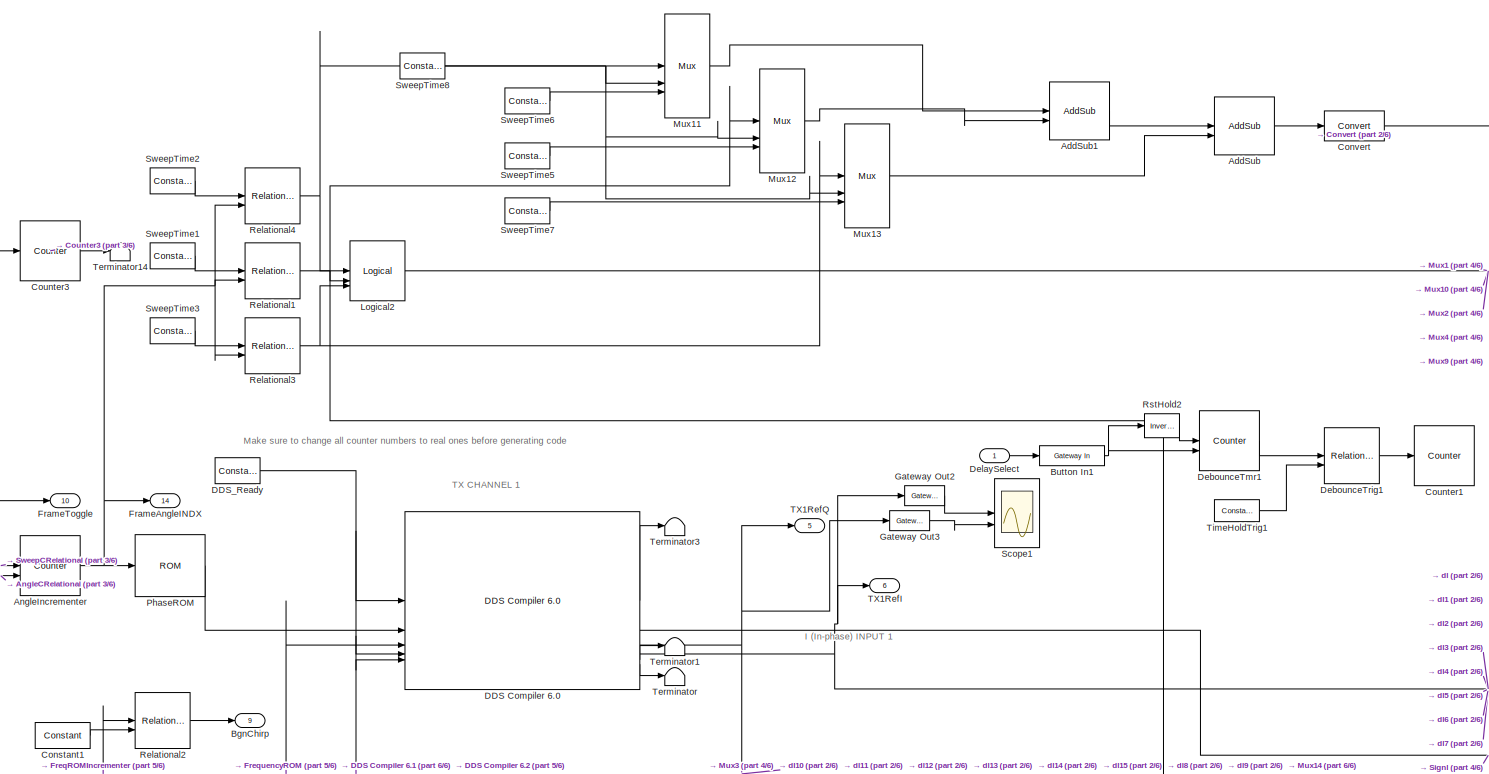
[diagram: SimulatedSignalGeneration - part 1/6, top center region]
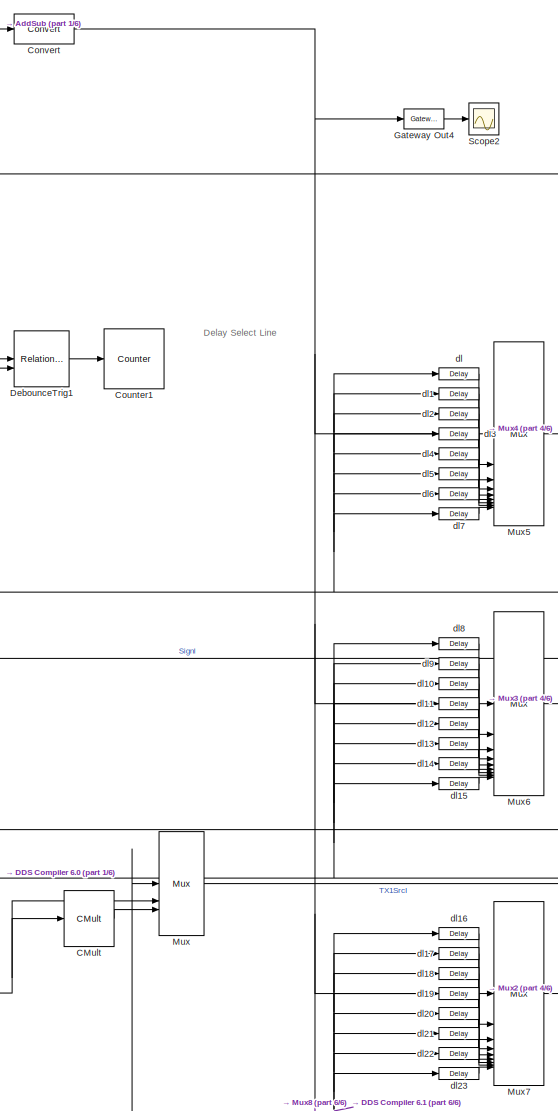
[diagram: SimulatedSignalGeneration - part 2/6, central region]
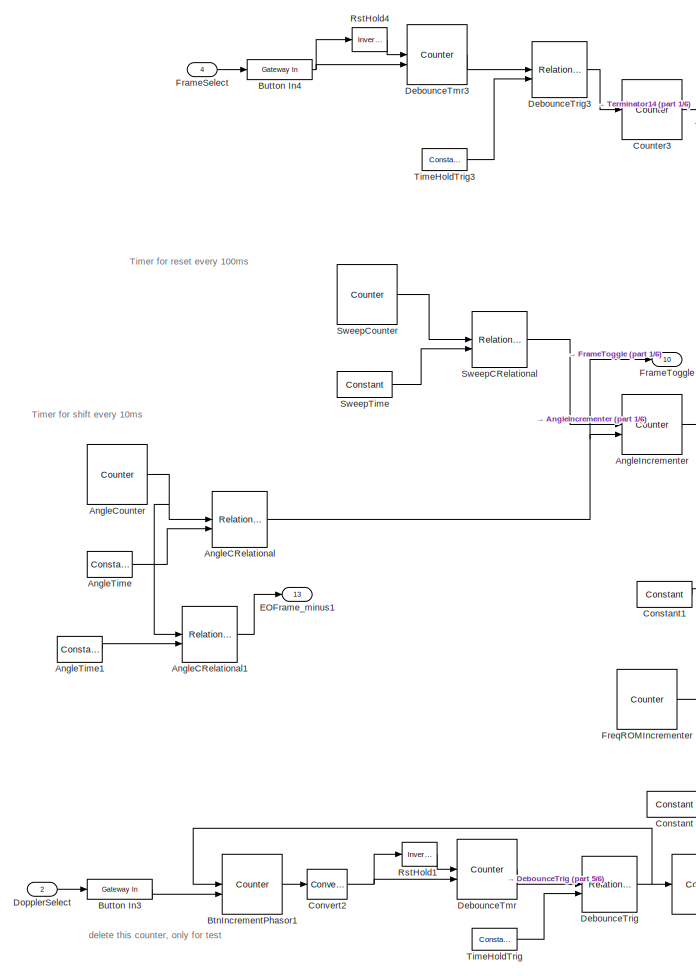
[diagram: SimulatedSignalGeneration - part 3/6, middle left region]
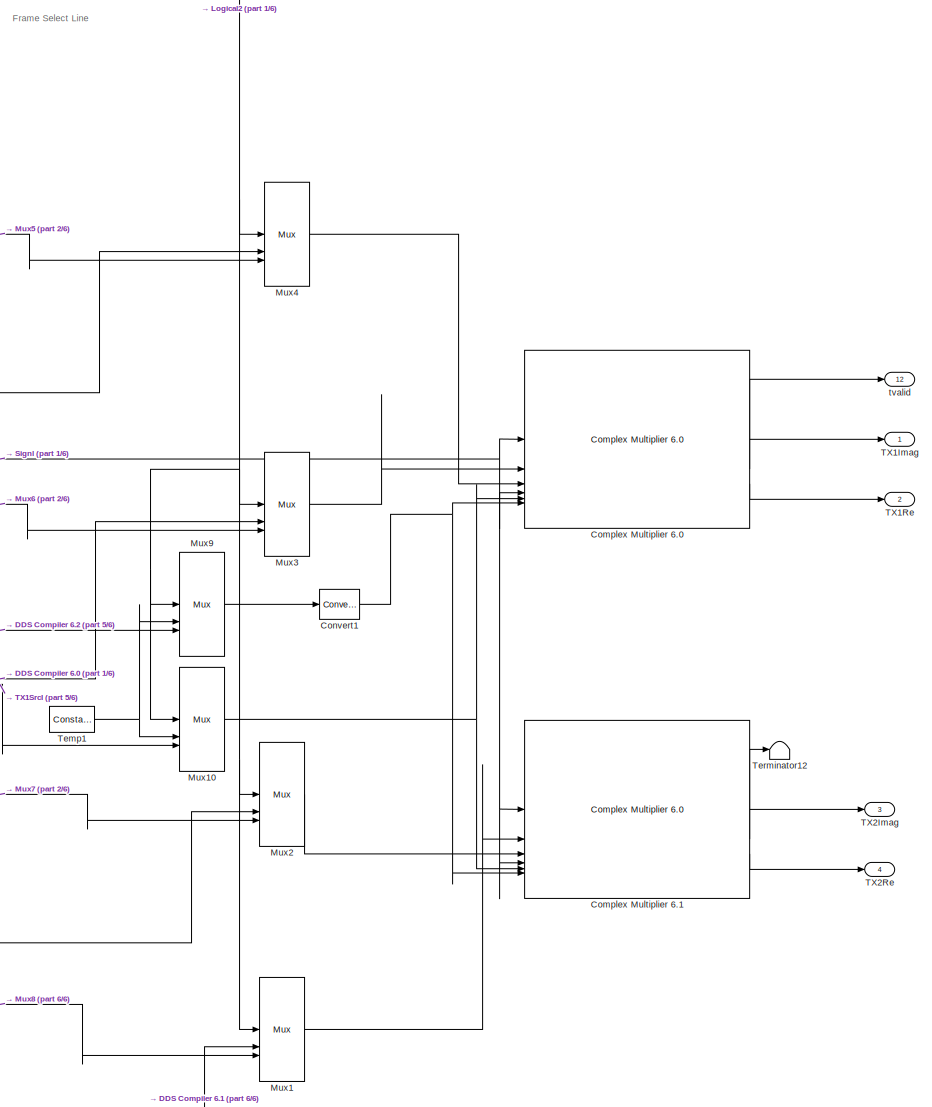
[diagram: SimulatedSignalGeneration - part 4/6, middle right region]
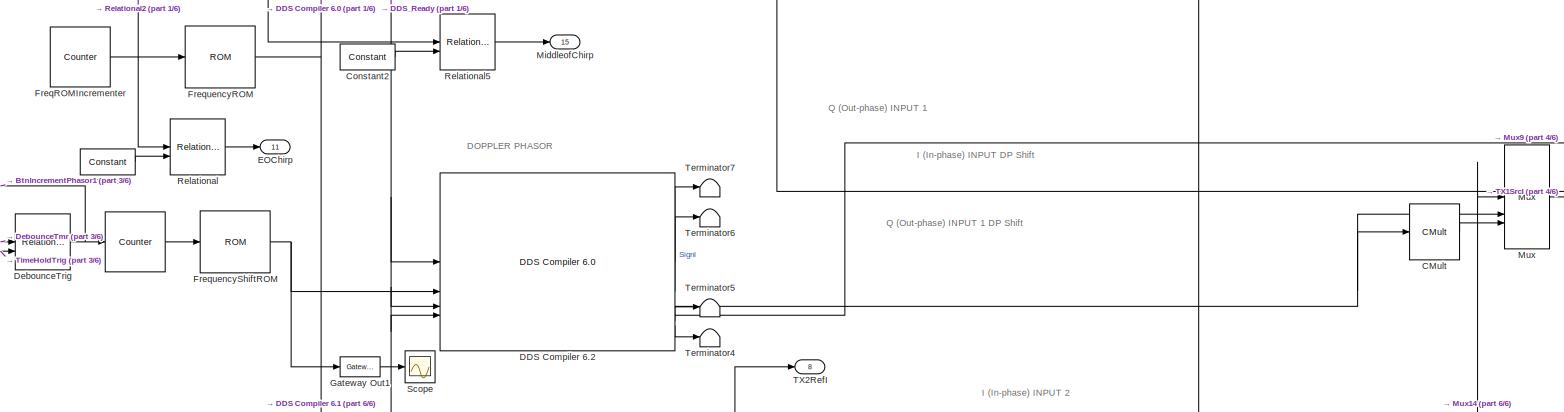
[diagram: SimulatedSignalGeneration - part 5/6, central region]
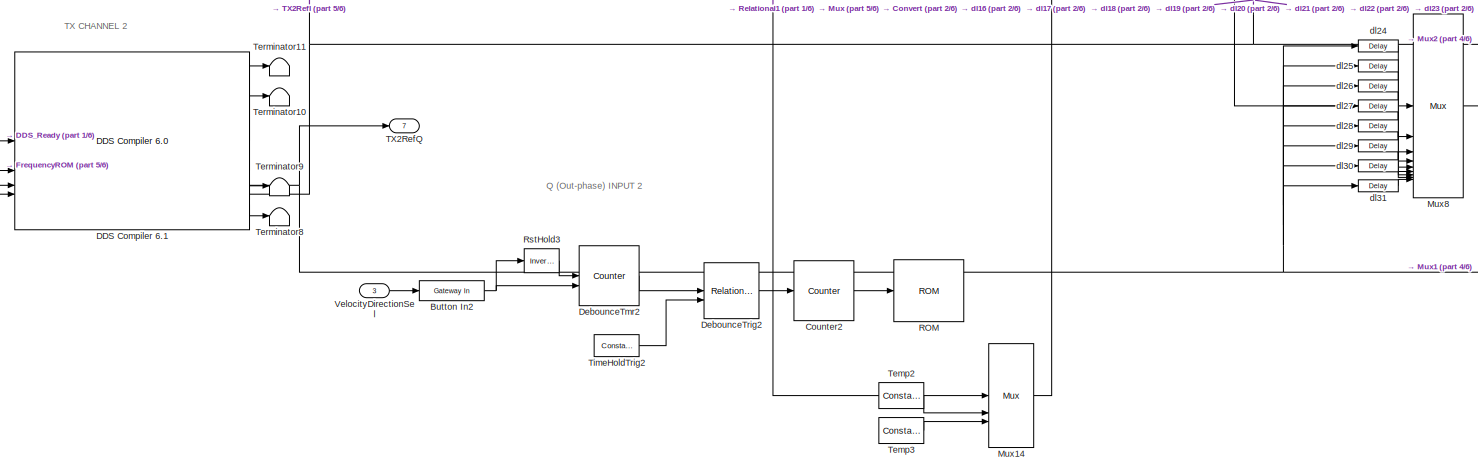
[diagram: SimulatedSignalGeneration - part 6/6, bottom center region]
BLOCK [SubSystem] SimulatedSignalGeneration
  SystemSampleTime = 1/200e6
BLOCK [Reference] SimulatedSignalGeneration/   REF=hdlBasic/Counter
  NameLocation = left
  SourceBlock = hdlBasic/Counter
  SourceType = Counter Block
BLOCK [Reference] SimulatedSignalGeneration/AddSub  REF=hdlBasic/AddSub
  SourceBlock = hdlBasic/AddSub
  SourceType = Adder/Subtracter Block
BLOCK [Reference] SimulatedSignalGeneration/AddSub1  REF=hdlBasic/AddSub
  SourceBlock = hdlBasic/AddSub
  SourceType = Adder/Subtracter Block
BLOCK [Reference] SimulatedSignalGeneration/AngleCRelational  REF=hdlBasic/Relational
  SourceBlock = hdlBasic/Relational
  SourceType = Arithmetic Relational Operator Block
BLOCK [Reference] SimulatedSignalGeneration/AngleCRelational1  REF=hdlBasic/Relational
  SourceBlock = hdlBasic/Relational
  SourceType = Arithmetic Relational Operator Block
BLOCK [Reference] SimulatedSignalGeneration/AngleCounter  REF=hdlBasic/Counter
  SourceBlock = hdlBasic/Counter
  SourceType = Counter Block
BLOCK [Reference] SimulatedSignalGeneration/AngleIncrementer  REF=hdlBasic/Counter
  SourceBlock = hdlBasic/Counter
  SourceType = Counter Block
BLOCK [Reference] SimulatedSignalGeneration/AngleTime  REF=hdlBasic/Constant
  SourceBlock = hdlBasic/Constant
  SourceType = Constant Block Block
BLOCK [Reference] SimulatedSignalGeneration/AngleTime1  REF=hdlBasic/Constant
  SourceBlock = hdlBasic/Constant
  SourceType = Constant Block Block
BLOCK [Outport] SimulatedSignalGeneration/BgnChirp
  Port = 9
BLOCK [Reference] SimulatedSignalGeneration/BtnIncrementPhasor1  REF=hdlBasic/Counter
  NameLocation = left
  SourceBlock = hdlBasic/Counter
  SourceType = Counter Block
BLOCK [Reference] SimulatedSignalGeneration/Button In1  REF=hdlBasic/Gateway In
  SourceBlock = hdlBasic/Gateway In
  SourceType = Gateway In Block
BLOCK [Reference] SimulatedSignalGeneration/Button In2  REF=hdlBasic/Gateway In
  SourceBlock = hdlBasic/Gateway In
  SourceType = Gateway In Block
BLOCK [Reference] SimulatedSignalGeneration/Button In3  REF=hdlBasic/Gateway In
  SourceBlock = hdlBasic/Gateway In
  SourceType = Gateway In Block
BLOCK [Reference] SimulatedSignalGeneration/Button In4  REF=hdlBasic/Gateway In
  SourceBlock = hdlBasic/Gateway In
  SourceType = Gateway In Block
BLOCK [Reference] SimulatedSignalGeneration/CMult  REF=hdlBasic/CMult
  SourceBlock = hdlBasic/CMult
  SourceType = Constant Multiplier Block
BLOCK [Reference] SimulatedSignalGeneration/Complex Multiplier 6.0  REF=hdlDSPIP/Complex Multiplier 6.0 
  SourceBlock = hdlDSPIP/Complex Multiplier 6.0
  SourceType = Complex Multiplier 6.0  Block
BLOCK [Reference] SimulatedSignalGeneration/Complex Multiplier 6.1  REF=hdlDSPIP/Complex Multiplier 6.0 
  SourceBlock = hdlDSPIP/Complex Multiplier 6.0
  SourceType = Complex Multiplier 6.0  Block
BLOCK [Reference] SimulatedSignalGeneration/Constant  REF=hdlBasic/Constant
  SourceBlock = hdlBasic/Constant
  SourceType = Constant Block Block
BLOCK [Reference] SimulatedSignalGeneration/Constant1  REF=hdlBasic/Constant
  SourceBlock = hdlBasic/Constant
  SourceType = Constant Block Block
BLOCK [Reference] SimulatedSignalGeneration/Constant2  REF=hdlBasic/Constant
  SourceBlock = hdlBasic/Constant
  SourceType = Constant Block Block
BLOCK [Reference] SimulatedSignalGeneration/Convert  REF=hdlBasic/Convert
  SourceBlock = hdlBasic/Convert
  SourceType = Type Converter Block
BLOCK [Reference] SimulatedSignalGeneration/Convert1  REF=hdlBasic/Convert
  SourceBlock = hdlBasic/Convert
  SourceType = Type Converter Block
BLOCK [Reference] SimulatedSignalGeneration/Convert2  REF=hdlBasic/Convert
  SourceBlock = hdlBasic/Convert
  SourceType = Type Converter Block
BLOCK [Reference] SimulatedSignalGeneration/Counter1  REF=hdlBasic/Counter
  SourceBlock = hdlBasic/Counter
  SourceType = Counter Block
BLOCK [Reference] SimulatedSignalGeneration/Counter2  REF=hdlBasic/Counter
  SourceBlock = hdlBasic/Counter
  SourceType = Counter Block
BLOCK [Reference] SimulatedSignalGeneration/Counter3  REF=hdlBasic/Counter
  SourceBlock = hdlBasic/Counter
  SourceType = Counter Block
BLOCK [Reference] SimulatedSignalGeneration/DDS Compiler 6.0  REF=hdlDSPIP/DDS Compiler 6.0 
  SourceBlock = hdlDSPIP/DDS Compiler 6.0
  SourceType = DDS Compiler 6.0 Block
BLOCK [Reference] SimulatedSignalGeneration/DDS Compiler 6.1  REF=hdlDSPIP/DDS Compiler 6.0 
  SourceBlock = hdlDSPIP/DDS Compiler 6.0
  SourceType = DDS Compiler 6.0 Block
BLOCK [Reference] SimulatedSignalGeneration/DDS Compiler 6.2  REF=hdlDSPIP/DDS Compiler 6.0 
  SourceBlock = hdlDSPIP/DDS Compiler 6.0
  SourceType = DDS Compiler 6.0 Block
BLOCK [Reference] SimulatedSignalGeneration/DDS_Ready  REF=hdlBasic/Constant
  SourceBlock = hdlBasic/Constant
  SourceType = Constant Block Block
BLOCK [Reference] SimulatedSignalGeneration/DebounceTmr  REF=hdlBasic/Counter
  SourceBlock = hdlBasic/Counter
  SourceType = Counter Block
BLOCK [Reference] SimulatedSignalGeneration/DebounceTmr1  REF=hdlBasic/Counter
  SourceBlock = hdlBasic/Counter
  SourceType = Counter Block
BLOCK [Reference] SimulatedSignalGeneration/DebounceTmr2  REF=hdlBasic/Counter
  SourceBlock = hdlBasic/Counter
  SourceType = Counter Block
BLOCK [Reference] SimulatedSignalGeneration/DebounceTmr3  REF=hdlBasic/Counter
  SourceBlock = hdlBasic/Counter
  SourceType = Counter Block
BLOCK [Reference] SimulatedSignalGeneration/DebounceTrig  REF=hdlBasic/Relational
  SourceBlock = hdlBasic/Relational
  SourceType = Arithmetic Relational Operator Block
BLOCK [Reference] SimulatedSignalGeneration/DebounceTrig1  REF=hdlBasic/Relational
  SourceBlock = hdlBasic/Relational
  SourceType = Arithmetic Relational Operator Block
BLOCK [Reference] SimulatedSignalGeneration/DebounceTrig2  REF=hdlBasic/Relational
  SourceBlock = hdlBasic/Relational
  SourceType = Arithmetic Relational Operator Block
BLOCK [Reference] SimulatedSignalGeneration/DebounceTrig3  REF=hdlBasic/Relational
  SourceBlock = hdlBasic/Relational
  SourceType = Arithmetic Relational Operator Block
BLOCK [Inport] SimulatedSignalGeneration/DelaySelect
BLOCK [Inport] SimulatedSignalGeneration/DopplerSelect
  Port = 2
BLOCK [Outport] SimulatedSignalGeneration/EOChirp
  Port = 11
BLOCK [Outport] SimulatedSignalGeneration/EOFrame_minus1
  Port = 13
BLOCK [Outport] SimulatedSignalGeneration/FrameAngleINDX
  Port = 14
BLOCK [Inport] SimulatedSignalGeneration/FrameSelect
  Port = 4
BLOCK [Outport] SimulatedSignalGeneration/FrameToggle
  Port = 10
BLOCK [Reference] SimulatedSignalGeneration/FreqROMIncrementer  REF=hdlBasic/Counter
  SourceBlock = hdlBasic/Counter
  SourceType = Counter Block
BLOCK [Reference] SimulatedSignalGeneration/FrequencyROM  REF=hdlBasic/ROM
  SourceBlock = hdlBasic/ROM
  SourceType = Single Port Read-Only Memory Block
BLOCK [Reference] SimulatedSignalGeneration/FrequencyShiftROM  REF=hdlBasic/ROM
  SourceBlock = hdlBasic/ROM
  SourceType = Single Port Read-Only Memory Block
BLOCK [Reference] SimulatedSignalGeneration/Gateway Out1  REF=hdlBasic/Gateway Out
  SourceBlock = hdlBasic/Gateway Out
  SourceType = Gateway Out Block
BLOCK [Reference] SimulatedSignalGeneration/Gateway Out2  REF=hdlBasic/Gateway Out
  SourceBlock = hdlBasic/Gateway Out
  SourceType = Gateway Out Block
BLOCK [Reference] SimulatedSignalGeneration/Gateway Out3  REF=hdlBasic/Gateway Out
  SourceBlock = hdlBasic/Gateway Out
  SourceType = Gateway Out Block
BLOCK [Reference] SimulatedSignalGeneration/Gateway Out4  REF=hdlBasic/Gateway Out
  SourceBlock = hdlBasic/Gateway Out
  SourceType = Gateway Out Block
BLOCK [Reference] SimulatedSignalGeneration/Logical2  REF=hdlBasic/Logical
  SourceBlock = hdlBasic/Logical
  SourceType = Logical Block Block
BLOCK [Outport] SimulatedSignalGeneration/MiddleofChirp
  Port = 15
BLOCK [Reference] SimulatedSignalGeneration/Mux  REF=hdlBasic/Mux
  SourceBlock = hdlBasic/Mux
  SourceType = Bus Multiplexer Block
BLOCK [Reference] SimulatedSignalGeneration/Mux1  REF=hdlBasic/Mux
  SourceBlock = hdlBasic/Mux
  SourceType = Bus Multiplexer Block
BLOCK [Reference] SimulatedSignalGeneration/Mux10  REF=hdlBasic/Mux
  SourceBlock = hdlBasic/Mux
  SourceType = Bus Multiplexer Block
BLOCK [Reference] SimulatedSignalGeneration/Mux11  REF=hdlBasic/Mux
  SourceBlock = hdlBasic/Mux
  SourceType = Bus Multiplexer Block
BLOCK [Reference] SimulatedSignalGeneration/Mux12  REF=hdlBasic/Mux
  SourceBlock = hdlBasic/Mux
  SourceType = Bus Multiplexer Block
BLOCK [Reference] SimulatedSignalGeneration/Mux13  REF=hdlBasic/Mux
  SourceBlock = hdlBasic/Mux
  SourceType = Bus Multiplexer Block
BLOCK [Reference] SimulatedSignalGeneration/Mux14  REF=hdlBasic/Mux
  SourceBlock = hdlBasic/Mux
  SourceType = Bus Multiplexer Block
BLOCK [Reference] SimulatedSignalGeneration/Mux2  REF=hdlBasic/Mux
  SourceBlock = hdlBasic/Mux
  SourceType = Bus Multiplexer Block
BLOCK [Reference] SimulatedSignalGeneration/Mux3  REF=hdlBasic/Mux
  SourceBlock = hdlBasic/Mux
  SourceType = Bus Multiplexer Block
BLOCK [Reference] SimulatedSignalGeneration/Mux4  REF=hdlBasic/Mux
  SourceBlock = hdlBasic/Mux
  SourceType = Bus Multiplexer Block
BLOCK [Reference] SimulatedSignalGeneration/Mux5  REF=hdlBasic/Mux
  SourceBlock = hdlBasic/Mux
  SourceType = Bus Multiplexer Block
BLOCK [Reference] SimulatedSignalGeneration/Mux6  REF=hdlBasic/Mux
  SourceBlock = hdlBasic/Mux
  SourceType = Bus Multiplexer Block
BLOCK [Reference] SimulatedSignalGeneration/Mux7  REF=hdlBasic/Mux
  SourceBlock = hdlBasic/Mux
  SourceType = Bus Multiplexer Block
BLOCK [Reference] SimulatedSignalGeneration/Mux8  REF=hdlBasic/Mux
  SourceBlock = hdlBasic/Mux
  SourceType = Bus Multiplexer Block
BLOCK [Reference] SimulatedSignalGeneration/Mux9  REF=hdlBasic/Mux
  SourceBlock = hdlBasic/Mux
  SourceType = Bus Multiplexer Block
BLOCK [Reference] SimulatedSignalGeneration/PhaseROM  REF=hdlBasic/ROM
  SourceBlock = hdlBasic/ROM
  SourceType = Single Port Read-Only Memory Block
BLOCK [Reference] SimulatedSignalGeneration/ROM  REF=hdlBasic/ROM
  SourceBlock = hdlBasic/ROM
  SourceType = Single Port Read-Only Memory Block
BLOCK [Reference] SimulatedSignalGeneration/Relational  REF=hdlBasic/Relational
  SourceBlock = hdlBasic/Relational
  SourceType = Arithmetic Relational Operator Block
BLOCK [Reference] SimulatedSignalGeneration/Relational1  REF=hdlBasic/Relational
  SourceBlock = hdlBasic/Relational
  SourceType = Arithmetic Relational Operator Block
BLOCK [Reference] SimulatedSignalGeneration/Relational2  REF=hdlBasic/Relational
  SourceBlock = hdlBasic/Relational
  SourceType = Arithmetic Relational Operator Block
BLOCK [Reference] SimulatedSignalGeneration/Relational3  REF=hdlBasic/Relational
  SourceBlock = hdlBasic/Relational
  SourceType = Arithmetic Relational Operator Block
BLOCK [Reference] SimulatedSignalGeneration/Relational4  REF=hdlBasic/Relational
  SourceBlock = hdlBasic/Relational
  SourceType = Arithmetic Relational Operator Block
BLOCK [Reference] SimulatedSignalGeneration/Relational5  REF=hdlBasic/Relational
  SourceBlock = hdlBasic/Relational
  SourceType = Arithmetic Relational Operator Block
BLOCK [Reference] SimulatedSignalGeneration/RstHold1  REF=hdlBasic/Inverter
  SourceBlock = hdlBasic/Inverter
  SourceType = Inverter Block
BLOCK [Reference] SimulatedSignalGeneration/RstHold2  REF=hdlBasic/Inverter
  SourceBlock = hdlBasic/Inverter
  SourceType = Inverter Block
BLOCK [Reference] SimulatedSignalGeneration/RstHold3  REF=hdlBasic/Inverter
  SourceBlock = hdlBasic/Inverter
  SourceType = Inverter Block
BLOCK [Reference] SimulatedSignalGeneration/RstHold4  REF=hdlBasic/Inverter
  SourceBlock = hdlBasic/Inverter
  SourceType = Inverter Block
BLOCK [Scope] SimulatedSignalGeneration/Scope
  Floating = off
  NumInputPorts = 1
  ScopeSpecificationString = Simulink.scopes.TimeScopeBlockCfg('CurrentConfiguration', extmgr.ConfigurationSet(extmgr.Configuration('Core','General UI',true),extmgr.Configuration('Core','Source UI',true),extmgr.Configuration('Sources','WiredSimulink',true,'DataLoggingVariableName','ScopeData1'),extmgr.Configuration('Visuals','Time Domain',true,'SerializedDisplays',{struct('MinYLimReal','-0.000002','MaxYLimReal','0.00002','YLa...<+1854ch>
BLOCK [Scope] SimulatedSignalGeneration/Scope1
  Floating = off
  NumInputPorts = 2
  ScopeSpecificationString = Simulink.scopes.TimeScopeBlockCfg('CurrentConfiguration', extmgr.ConfigurationSet(extmgr.Configuration('Core','General UI',true),extmgr.Configuration('Core','Source UI',true),extmgr.Configuration('Sources','WiredSimulink',true,'DataLoggingVariableName','ScopeData1'),extmgr.Configuration('Visuals','Time Domain',true,'SerializedDisplays',{struct('MinYLimReal','-1.24992','MaxYLimReal','1.24992','YLab...<+2652ch>
BLOCK [Scope] SimulatedSignalGeneration/Scope2
  Floating = off
  NumInputPorts = 1
  ScopeSpecificationString = Simulink.scopes.TimeScopeBlockCfg('CurrentConfiguration', extmgr.ConfigurationSet(extmgr.Configuration('Core','General UI',true),extmgr.Configuration('Core','Source UI',true),extmgr.Configuration('Sources','WiredSimulink',true,'DataLoggingVariableName','ScopeData2'),extmgr.Configuration('Visuals','Time Domain',true,'SerializedDisplays',{struct('MinYLimReal','-0.5','MaxYLimReal','4.5','YLabelReal',...<+1826ch>
BLOCK [Reference] SimulatedSignalGeneration/SweepCRelational  REF=hdlBasic/Relational
  SourceBlock = hdlBasic/Relational
  SourceType = Arithmetic Relational Operator Block
BLOCK [Reference] SimulatedSignalGeneration/SweepCounter  REF=hdlBasic/Counter
  SourceBlock = hdlBasic/Counter
  SourceType = Counter Block
BLOCK [Reference] SimulatedSignalGeneration/SweepTime  REF=hdlBasic/Constant
  SourceBlock = hdlBasic/Constant
  SourceType = Constant Block Block
BLOCK [Reference] SimulatedSignalGeneration/SweepTime1  REF=hdlBasic/Constant
  SourceBlock = hdlBasic/Constant
  SourceType = Constant Block Block
BLOCK [Reference] SimulatedSignalGeneration/SweepTime2  REF=hdlBasic/Constant
  SourceBlock = hdlBasic/Constant
  SourceType = Constant Block Block
BLOCK [Reference] SimulatedSignalGeneration/SweepTime3  REF=hdlBasic/Constant
  SourceBlock = hdlBasic/Constant
  SourceType = Constant Block Block
BLOCK [Reference] SimulatedSignalGeneration/SweepTime5  REF=hdlBasic/Constant
  SourceBlock = hdlBasic/Constant
  SourceType = Constant Block Block
BLOCK [Reference] SimulatedSignalGeneration/SweepTime6  REF=hdlBasic/Constant
  SourceBlock = hdlBasic/Constant
  SourceType = Constant Block Block
BLOCK [Reference] SimulatedSignalGeneration/SweepTime7  REF=hdlBasic/Constant
  SourceBlock = hdlBasic/Constant
  SourceType = Constant Block Block
BLOCK [Reference] SimulatedSignalGeneration/SweepTime8  REF=hdlBasic/Constant
  SourceBlock = hdlBasic/Constant
  SourceType = Constant Block Block
BLOCK [Outport] SimulatedSignalGeneration/TX1Imag
BLOCK [Outport] SimulatedSignalGeneration/TX1Re
  Port = 2
BLOCK [Outport] SimulatedSignalGeneration/TX1RefI
  Port = 6
BLOCK [Outport] SimulatedSignalGeneration/TX1RefQ
  Port = 5
BLOCK [Outport] SimulatedSignalGeneration/TX2Imag
  Port = 3
BLOCK [Outport] SimulatedSignalGeneration/TX2Re
  Port = 4
BLOCK [Outport] SimulatedSignalGeneration/TX2RefI
  Port = 8
BLOCK [Outport] SimulatedSignalGeneration/TX2RefQ
  Port = 7
BLOCK [Reference] SimulatedSignalGeneration/Temp1  REF=hdlBasic/Constant
  SourceBlock = hdlBasic/Constant
  SourceType = Constant Block Block
BLOCK [Reference] SimulatedSignalGeneration/Temp2  REF=hdlBasic/Constant
  SourceBlock = hdlBasic/Constant
  SourceType = Constant Block Block
BLOCK [Reference] SimulatedSignalGeneration/Temp3  REF=hdlBasic/Constant
  SourceBlock = hdlBasic/Constant
  SourceType = Constant Block Block
BLOCK [Terminator] SimulatedSignalGeneration/Terminator
BLOCK [Terminator] SimulatedSignalGeneration/Terminator1
BLOCK [Terminator] SimulatedSignalGeneration/Terminator10
BLOCK [Terminator] SimulatedSignalGeneration/Terminator11
BLOCK [Terminator] SimulatedSignalGeneration/Terminator12
BLOCK [Terminator] SimulatedSignalGeneration/Terminator14
BLOCK [Terminator] SimulatedSignalGeneration/Terminator3
BLOCK [Terminator] SimulatedSignalGeneration/Terminator4
BLOCK [Terminator] SimulatedSignalGeneration/Terminator5
BLOCK [Terminator] SimulatedSignalGeneration/Terminator6
BLOCK [Terminator] SimulatedSignalGeneration/Terminator7
BLOCK [Terminator] SimulatedSignalGeneration/Terminator8
BLOCK [Terminator] SimulatedSignalGeneration/Terminator9
BLOCK [Reference] SimulatedSignalGeneration/TimeHoldTrig  REF=hdlBasic/Constant
  SourceBlock = hdlBasic/Constant
  SourceType = Constant Block Block
BLOCK [Reference] SimulatedSignalGeneration/TimeHoldTrig1  REF=hdlBasic/Constant
  SourceBlock = hdlBasic/Constant
  SourceType = Constant Block Block
BLOCK [Reference] SimulatedSignalGeneration/TimeHoldTrig2  REF=hdlBasic/Constant
  SourceBlock = hdlBasic/Constant
  SourceType = Constant Block Block
BLOCK [Reference] SimulatedSignalGeneration/TimeHoldTrig3  REF=hdlBasic/Constant
  SourceBlock = hdlBasic/Constant
  SourceType = Constant Block Block
BLOCK [Inport] SimulatedSignalGeneration/VelocityDirectionSel
  Port = 3
BLOCK [Reference] SimulatedSignalGeneration/dl  REF=hdlBasic/Delay
  SourceBlock = hdlBasic/Delay
  SourceType = Delay Block
BLOCK [Reference] SimulatedSignalGeneration/dl1  REF=hdlBasic/Delay
  SourceBlock = hdlBasic/Delay
  SourceType = Delay Block
BLOCK [Reference] SimulatedSignalGeneration/dl10  REF=hdlBasic/Delay
  SourceBlock = hdlBasic/Delay
  SourceType = Delay Block
BLOCK [Reference] SimulatedSignalGeneration/dl11  REF=hdlBasic/Delay
  SourceBlock = hdlBasic/Delay
  SourceType = Delay Block
BLOCK [Reference] SimulatedSignalGeneration/dl12  REF=hdlBasic/Delay
  SourceBlock = hdlBasic/Delay
  SourceType = Delay Block
BLOCK [Reference] SimulatedSignalGeneration/dl13  REF=hdlBasic/Delay
  SourceBlock = hdlBasic/Delay
  SourceType = Delay Block
BLOCK [Reference] SimulatedSignalGeneration/dl14  REF=hdlBasic/Delay
  SourceBlock = hdlBasic/Delay
  SourceType = Delay Block
BLOCK [Reference] SimulatedSignalGeneration/dl15  REF=hdlBasic/Delay
  SourceBlock = hdlBasic/Delay
  SourceType = Delay Block
BLOCK [Reference] SimulatedSignalGeneration/dl16  REF=hdlBasic/Delay
  SourceBlock = hdlBasic/Delay
  SourceType = Delay Block
BLOCK [Reference] SimulatedSignalGeneration/dl17  REF=hdlBasic/Delay
  SourceBlock = hdlBasic/Delay
  SourceType = Delay Block
BLOCK [Reference] SimulatedSignalGeneration/dl18  REF=hdlBasic/Delay
  SourceBlock = hdlBasic/Delay
  SourceType = Delay Block
BLOCK [Reference] SimulatedSignalGeneration/dl19  REF=hdlBasic/Delay
  SourceBlock = hdlBasic/Delay
  SourceType = Delay Block
BLOCK [Reference] SimulatedSignalGeneration/dl2  REF=hdlBasic/Delay
  SourceBlock = hdlBasic/Delay
  SourceType = Delay Block
BLOCK [Reference] SimulatedSignalGeneration/dl20  REF=hdlBasic/Delay
  SourceBlock = hdlBasic/Delay
  SourceType = Delay Block
BLOCK [Reference] SimulatedSignalGeneration/dl21  REF=hdlBasic/Delay
  SourceBlock = hdlBasic/Delay
  SourceType = Delay Block
BLOCK [Reference] SimulatedSignalGeneration/dl22  REF=hdlBasic/Delay
  SourceBlock = hdlBasic/Delay
  SourceType = Delay Block
BLOCK [Reference] SimulatedSignalGeneration/dl23  REF=hdlBasic/Delay
  SourceBlock = hdlBasic/Delay
  SourceType = Delay Block
BLOCK [Reference] SimulatedSignalGeneration/dl24  REF=hdlBasic/Delay
  SourceBlock = hdlBasic/Delay
  SourceType = Delay Block
BLOCK [Reference] SimulatedSignalGeneration/dl25  REF=hdlBasic/Delay
  SourceBlock = hdlBasic/Delay
  SourceType = Delay Block
BLOCK [Reference] SimulatedSignalGeneration/dl26  REF=hdlBasic/Delay
  SourceBlock = hdlBasic/Delay
  SourceType = Delay Block
BLOCK [Reference] SimulatedSignalGeneration/dl27  REF=hdlBasic/Delay
  SourceBlock = hdlBasic/Delay
  SourceType = Delay Block
BLOCK [Reference] SimulatedSignalGeneration/dl28  REF=hdlBasic/Delay
  SourceBlock = hdlBasic/Delay
  SourceType = Delay Block
BLOCK [Reference] SimulatedSignalGeneration/dl29  REF=hdlBasic/Delay
  SourceBlock = hdlBasic/Delay
  SourceType = Delay Block
BLOCK [Reference] SimulatedSignalGeneration/dl3  REF=hdlBasic/Delay
  SourceBlock = hdlBasic/Delay
  SourceType = Delay Block
BLOCK [Reference] SimulatedSignalGeneration/dl30  REF=hdlBasic/Delay
  SourceBlock = hdlBasic/Delay
  SourceType = Delay Block
BLOCK [Reference] SimulatedSignalGeneration/dl31  REF=hdlBasic/Delay
  SourceBlock = hdlBasic/Delay
  SourceType = Delay Block
BLOCK [Reference] SimulatedSignalGeneration/dl4  REF=hdlBasic/Delay
  SourceBlock = hdlBasic/Delay
  SourceType = Delay Block
BLOCK [Reference] SimulatedSignalGeneration/dl5  REF=hdlBasic/Delay
  SourceBlock = hdlBasic/Delay
  SourceType = Delay Block
BLOCK [Reference] SimulatedSignalGeneration/dl6  REF=hdlBasic/Delay
  SourceBlock = hdlBasic/Delay
  SourceType = Delay Block
BLOCK [Reference] SimulatedSignalGeneration/dl7  REF=hdlBasic/Delay
  SourceBlock = hdlBasic/Delay
  SourceType = Delay Block
BLOCK [Reference] SimulatedSignalGeneration/dl8  REF=hdlBasic/Delay
  SourceBlock = hdlBasic/Delay
  SourceType = Delay Block
BLOCK [Reference] SimulatedSignalGeneration/dl9  REF=hdlBasic/Delay
  SourceBlock = hdlBasic/Delay
  SourceType = Delay Block
BLOCK [Outport] SimulatedSignalGeneration/tvalid
  Port = 12
BLOCK [SubSystem] Subsystem
BLOCK [EnablePort] Subsystem/Enable
BLOCK [ToWorkspace] Subsystem/To Workspace4
  FixptAsFi = on
  MaxDataPoints = inf
  SampleTime = -1
  Save2DSignal = 2-D array (concatenate along first dimension)
  VariableName = VelocityMAG1
BLOCK [ToWorkspace] Subsystem/To Workspace5
  FixptAsFi = on
  MaxDataPoints = inf
  SampleTime = -1
  Save2DSignal = 2-D array (concatenate along first dimension)
  VariableName = VelocityINDX1
BLOCK [ToWorkspace] Subsystem/To Workspace6
  FixptAsFi = on
  MaxDataPoints = inf
  SampleTime = -1
  Save2DSignal = 2-D array (concatenate along first dimension)
  VariableName = VelocityMAG2
BLOCK [ToWorkspace] Subsystem/To Workspace7
  FixptAsFi = on
  MaxDataPoints = inf
  SampleTime = -1
  Save2DSignal = 2-D array (concatenate along first dimension)
  VariableName = VelocityINDX2
BLOCK [Inport] Subsystem/VelocityINDX1
  Port = 2
BLOCK [Inport] Subsystem/VelocityINDX2
  Port = 4
BLOCK [Inport] Subsystem/VelocityMAG1
BLOCK [Inport] Subsystem/VelocityMAG2
  Port = 3
BLOCK [SubSystem] TransmitProcess
BLOCK [Outport] TransmitProcess/ActiveTXBoolRNG
BLOCK [Outport] TransmitProcess/ActiveTXBoolVel
  Port = 18
BLOCK [Reference] TransmitProcess/AddSub  REF=hdlBasic/AddSub
  SourceBlock = hdlBasic/AddSub
  SourceType = Adder/Subtracter Block
BLOCK [Reference] TransmitProcess/AddSub1  REF=hdlBasic/AddSub
  SourceBlock = hdlBasic/AddSub
  SourceType = Adder/Subtracter Block
BLOCK [Reference] TransmitProcess/Addrcnt_Durationcnt  REF=hdlBasic/Counter
  SourceBlock = hdlBasic/Counter
  SourceType = Counter Block
BLOCK [Reference] TransmitProcess/Addrcnt_Durationcnt1  REF=hdlBasic/Counter
  SourceBlock = hdlBasic/Counter
  SourceType = Counter Block
BLOCK [Outport] TransmitProcess/AngleINDX
  Port = 15
BLOCK [Reference] TransmitProcess/ChirpSamples1  REF=hdlBasic/Constant
  SourceBlock = hdlBasic/Constant
  SourceType = Constant Block Block
BLOCK [Reference] TransmitProcess/ChirpSamples2  REF=hdlBasic/Constant
  SourceBlock = hdlBasic/Constant
  SourceType = Constant Block Block
BLOCK [Reference] TransmitProcess/Constant  REF=hdlBasic/Constant
  SourceBlock = hdlBasic/Constant
  SourceType = Constant Block Block
BLOCK [Reference] TransmitProcess/Constant1  REF=hdlBasic/Constant
  SourceBlock = hdlBasic/Constant
  SourceType = Constant Block Block
BLOCK [Outport] TransmitProcess/DataEnd
  Port = 12
BLOCK [Outport] TransmitProcess/DataStart
  Port = 11
BLOCK [Reference] TransmitProcess/Delay  REF=hdlBasic/Delay
  SourceBlock = hdlBasic/Delay
  SourceType = Delay Block
BLOCK [Reference] TransmitProcess/Delay1  REF=hdlBasic/Delay
  SourceBlock = hdlBasic/Delay
  SourceType = Delay Block
BLOCK [Reference] TransmitProcess/Delay2  REF=hdlBasic/Delay
  SourceBlock = hdlBasic/Delay
  SourceType = Delay Block
BLOCK [Reference] TransmitProcess/Delay3  REF=hdlBasic/Delay
  SourceBlock = hdlBasic/Delay
  SourceType = Delay Block
BLOCK [Reference] TransmitProcess/EOFCntBool  REF=hdlBasic/Convert
  SourceBlock = hdlBasic/Convert
  SourceType = Type Converter Block
BLOCK [Reference] TransmitProcess/EOFCntBool1  REF=hdlBasic/Convert
  SourceBlock = hdlBasic/Convert
  SourceType = Type Converter Block
BLOCK [Reference] TransmitProcess/EOFCntBool2  REF=hdlBasic/Convert
  SourceBlock = hdlBasic/Convert
  SourceType = Type Converter Block
BLOCK [Reference] TransmitProcess/EOFEnable  REF=hdlBasic/Counter
  SourceBlock = hdlBasic/Counter
  SourceType = Counter Block
BLOCK [Reference] TransmitProcess/EOFEnable1  REF=hdlBasic/Counter
  SourceBlock = hdlBasic/Counter
  SourceType = Counter Block
BLOCK [Reference] TransmitProcess/EndEOFComp  REF=hdlBasic/Relational
  SourceBlock = hdlBasic/Relational
  SourceType = Arithmetic Relational Operator Block
BLOCK [Reference] TransmitProcess/EndEOFComp1  REF=hdlBasic/Relational
  SourceBlock = hdlBasic/Relational
  SourceType = Arithmetic Relational Operator Block
BLOCK [Outport] TransmitProcess/FlipRAMBit
  Port = 13
BLOCK [Reference] TransmitProcess/FlipRAMToggle  REF=hdlBasic/Counter
  SourceBlock = hdlBasic/Counter
  SourceType = Counter Block
BLOCK [Inport] TransmitProcess/FrameAngle
  Port = 11
BLOCK [Reference] TransmitProcess/Gateway Out  REF=hdlBasic/Gateway Out
  SourceBlock = hdlBasic/Gateway Out
  SourceType = Gateway Out Block
BLOCK [Reference] TransmitProcess/Gateway Out AXIS  REF=hdlUtilities/Gateway Out AXIS
  SourceBlock = hdlUtilities/Gateway Out AXIS
  SourceType = Gateway Out AXIS
BLOCK [Reference] TransmitProcess/Gateway Out AXIS1  REF=hdlUtilities/Gateway Out AXIS
  SourceBlock = hdlUtilities/Gateway Out AXIS
  SourceType = Gateway Out AXIS
BLOCK [Reference] TransmitProcess/Gateway Out AXIS2  REF=hdlUtilities/Gateway Out AXIS
  SourceBlock = hdlUtilities/Gateway Out AXIS
  SourceType = Gateway Out AXIS
BLOCK [Reference] TransmitProcess/Gateway Out AXIS3  REF=hdlUtilities/Gateway Out AXIS
  SourceBlock = hdlUtilities/Gateway Out AXIS
  SourceType = Gateway Out AXIS
BLOCK [Reference] TransmitProcess/Gateway Out AXIS4  REF=hdlUtilities/Gateway Out AXIS
  SourceBlock = hdlUtilities/Gateway Out AXIS
  SourceType = Gateway Out AXIS
BLOCK [Reference] TransmitProcess/Gateway Out AXIS5  REF=hdlUtilities/Gateway Out AXIS
  SourceBlock = hdlUtilities/Gateway Out AXIS
  SourceType = Gateway Out AXIS
BLOCK [Reference] TransmitProcess/Gateway Out AXIS6  REF=hdlUtilities/Gateway Out AXIS
  SourceBlock = hdlUtilities/Gateway Out AXIS
  SourceType = Gateway Out AXIS
BLOCK [Reference] TransmitProcess/Gateway Out AXIS7  REF=hdlUtilities/Gateway Out AXIS
  SourceBlock = hdlUtilities/Gateway Out AXIS
  SourceType = Gateway Out AXIS
BLOCK [Reference] TransmitProcess/Gateway Out AXIS8  REF=hdlUtilities/Gateway Out AXIS
  SourceBlock = hdlUtilities/Gateway Out AXIS
  SourceType = Gateway Out AXIS
BLOCK [Reference] TransmitProcess/Gateway Out AXIS9  REF=hdlUtilities/Gateway Out AXIS
  SourceBlock = hdlUtilities/Gateway Out AXIS
  SourceType = Gateway Out AXIS
BLOCK [Reference] TransmitProcess/Gateway Out7  REF=hdlBasic/Gateway Out
  SourceBlock = hdlBasic/Gateway Out
  SourceType = Gateway Out Block
BLOCK [Reference] TransmitProcess/Gateway Out8  REF=hdlBasic/Gateway Out
  SourceBlock = hdlBasic/Gateway Out
  SourceType = Gateway Out Block
BLOCK [Reference] TransmitProcess/Gateway Out9  REF=hdlBasic/Gateway Out
  SourceBlock = hdlBasic/Gateway Out
  SourceType = Gateway Out Block
BLOCK [Inport] TransmitProcess/InputEOF
BLOCK [Reference] TransmitProcess/PreDelay  REF=hdlBasic/Counter
  SourceBlock = hdlBasic/Counter
  SourceType = Counter Block
BLOCK [Outport] TransmitProcess/PreDelayTXBool
  Port = 14
BLOCK [Outport] TransmitProcess/RNGAddrMatlab
  Port = 16
BLOCK [Outport] TransmitProcess/RNGAddrRead
  Port = 2
BLOCK [Outport] TransmitProcess/RngINDXOut1
  Port = 4
BLOCK [Outport] TransmitProcess/RngINDXOut2
  Port = 6
BLOCK [Outport] TransmitProcess/RngMAGOut1
  Port = 3
BLOCK [Outport] TransmitProcess/RngMAGOut2
  Port = 5
BLOCK [Inport] TransmitProcess/RngMAGPeak1
  Port = 2
BLOCK [Inport] TransmitProcess/RngMAGPeak2
  Port = 4
BLOCK [Inport] TransmitProcess/RngPeakIndx1
  Port = 3
BLOCK [Inport] TransmitProcess/RngPeakindx2
  Port = 5
BLOCK [Scope] TransmitProcess/Scope2
  Floating = off
  NumInputPorts = 3
  ScopeSpecificationString = Simulink.scopes.TimeScopeBlockCfg('CurrentConfiguration', extmgr.ConfigurationSet(extmgr.Configuration('Core','General UI',true),extmgr.Configuration('Core','Source UI',true),extmgr.Configuration('Sources','WiredSimulink',true,'DataLoggingVariableName','ScopeData1'),extmgr.Configuration('Visuals','Time Domain',true,'SerializedDisplays',{struct('MinYLimReal','-0.125','MaxYLimReal','1.125','YLabelRe...<+3355ch>
BLOCK [Terminator] TransmitProcess/Terminator
BLOCK [Terminator] TransmitProcess/Terminator1
BLOCK [Terminator] TransmitProcess/Terminator10
BLOCK [Terminator] TransmitProcess/Terminator11
BLOCK [Terminator] TransmitProcess/Terminator12
BLOCK [Terminator] TransmitProcess/Terminator13
BLOCK [Terminator] TransmitProcess/Terminator14
BLOCK [Terminator] TransmitProcess/Terminator15
BLOCK [Terminator] TransmitProcess/Terminator16
BLOCK [Terminator] TransmitProcess/Terminator17
BLOCK [Terminator] TransmitProcess/Terminator18
BLOCK [Terminator] TransmitProcess/Terminator19
BLOCK [Terminator] TransmitProcess/Terminator2
BLOCK [Terminator] TransmitProcess/Terminator3
BLOCK [Terminator] TransmitProcess/Terminator4
BLOCK [Terminator] TransmitProcess/Terminator5
BLOCK [Terminator] TransmitProcess/Terminator6
BLOCK [Terminator] TransmitProcess/Terminator7
BLOCK [Terminator] TransmitProcess/Terminator8
BLOCK [Terminator] TransmitProcess/Terminator9
BLOCK [Outport] TransmitProcess/VelAddrRead
  Port = 17
BLOCK [Outport] TransmitProcess/VelINDXOut1
  Port = 8
BLOCK [Outport] TransmitProcess/VelINDXOut2
  Port = 10
BLOCK [Outport] TransmitProcess/VelMAGOut1
  Port = 7
BLOCK [Outport] TransmitProcess/VelMAGOut2
  Port = 9
BLOCK [Inport] TransmitProcess/VelMAGPeak1
  Port = 6
BLOCK [Inport] TransmitProcess/VelMAGPeak2
  Port = 8
BLOCK [Inport] TransmitProcess/VelPeakIndx1
  Port = 7
BLOCK [Inport] TransmitProcess/VelPeakindx2
  Port = 9
BLOCK [Inport] TransmitProcess/treadyRNG
  Port = 10
BLOCK [Inport] TransmitProcess/treadyVel
  Port = 12
BLOCK [SubSystem] Velocity Processing
  PortSchema = {"entries":[{"content":{"sides":[{"content":{"connectorIds":["In1","In2","In3","In4","In5","In6","In7","In8"]},"type":"ConnectorPlacement.EquallySpacedRectSide","uuid":"28660edc-4300-4d13-b5c7-cb230341ceef"},{"content":{"side":"RIGHT"},"type":"ConnectorPlacement.EquallySpacedRectSide","uuid":"0aea0b64-dbd9-49d9-980c-6712e9fa4544"},{"content":{"side":"TOP"},"type":"ConnectorPlacement.EquallySpacedR...<+411ch>
BLOCK [Reference] Velocity Processing/AddrCountPerChirp  REF=hdlBasic/Counter
  SourceBlock = hdlBasic/Counter
  SourceType = Counter Block
BLOCK [Reference] Velocity Processing/Constant1  REF=hdlBasic/Constant
  SourceBlock = hdlBasic/Constant
  SourceType = Constant Block Block
BLOCK [Reference] Velocity Processing/Constant2  REF=hdlBasic/Constant
  SourceBlock = hdlBasic/Constant
  SourceType = Constant Block Block
BLOCK [Reference] Velocity Processing/Constant5  REF=hdlBasic/Constant
  SourceBlock = hdlBasic/Constant
  SourceType = Constant Block Block
BLOCK [Reference] Velocity Processing/Constant7  REF=hdlBasic/Constant
  SourceBlock = hdlBasic/Constant
  SourceType = Constant Block Block
BLOCK [Inport] Velocity Processing/EOFAddr
  Port = 7
BLOCK [Inport] Velocity Processing/EOFSelect
  Port = 8
BLOCK [Reference] Velocity Processing/EOSweep  REF=hdlBasic/Counter
  SourceBlock = hdlBasic/Counter
  SourceType = Counter Block
BLOCK [Reference] Velocity Processing/FFT2aI2  REF=hdlBasic/Mult
  SourceBlock = hdlBasic/Mult
  SourceType = Multiplier Block
BLOCK [Reference] Velocity Processing/FFT2aMag  REF=hdlBasic/AddSub
  SourceBlock = hdlBasic/AddSub
  SourceType = Adder/Subtracter Block
BLOCK [Reference] Velocity Processing/FFT2aQ2  REF=hdlBasic/Mult
  SourceBlock = hdlBasic/Mult
  SourceType = Multiplier Block
BLOCK [Reference] Velocity Processing/FFT2bI2  REF=hdlBasic/Mult
  SourceBlock = hdlBasic/Mult
  SourceType = Multiplier Block
BLOCK [Reference] Velocity Processing/FFT2bMag  REF=hdlBasic/AddSub
  SourceBlock = hdlBasic/AddSub
  SourceType = Adder/Subtracter Block
BLOCK [Reference] Velocity Processing/FFT2bQ2  REF=hdlBasic/Mult
  SourceBlock = hdlBasic/Mult
  SourceType = Multiplier Block
BLOCK [SubSystem] Velocity Processing/FFTTracking
BLOCK [Outport] Velocity Processing/FFTTracking/FFTIndex
BLOCK [Reference] Velocity Processing/FFTTracking/IndexTracker  REF=hdlBasic/Counter
  SourceBlock = hdlBasic/Counter
  SourceType = Counter Block
BLOCK [Reference] Velocity Processing/FFTTracking/Inverter  REF=hdlBasic/Inverter
  SourceBlock = hdlBasic/Inverter
  SourceType = Inverter Block
BLOCK [Reference] Velocity Processing/FFTTracking/Logical1  REF=hdlBasic/Logical
  SourceBlock = hdlBasic/Logical
  SourceType = Logical Block Block
BLOCK [Outport] Velocity Processing/FFTTracking/PeakSerachEnable
  Port = 2
BLOCK [Inport] Velocity Processing/FFTTracking/StatusReady
  Port = 2
BLOCK [Inport] Velocity Processing/FFTTracking/data_Active
BLOCK [Reference] Velocity Processing/FFT_C1  REF=hdlBasic/Constant
  SourceBlock = hdlBasic/Constant
  SourceType = Constant Block Block
BLOCK [Reference] Velocity Processing/FFT_C2  REF=hdlBasic/Constant
  SourceBlock = hdlBasic/Constant
  SourceType = Constant Block Block
BLOCK [Reference] Velocity Processing/Fast Fourier Transform 9.1  REF=hdlDSPIP/Fast Fourier Transform 9.1 
  SourceBlock = hdlDSPIP/Fast Fourier Transform 9.1
  SourceType = Fast Fourier Transform 9.1  Block
BLOCK [Reference] Velocity Processing/Fast Fourier Transform 9.2  REF=hdlDSPIP/Fast Fourier Transform 9.1 
  SourceBlock = hdlDSPIP/Fast Fourier Transform 9.1
  SourceType = Fast Fourier Transform 9.1  Block
BLOCK [Reference] Velocity Processing/Gateway Out1  REF=hdlBasic/Gateway Out
  SourceBlock = hdlBasic/Gateway Out
  SourceType = Gateway Out Block
BLOCK [Reference] Velocity Processing/Gateway Out5  REF=hdlBasic/Gateway Out
  SourceBlock = hdlBasic/Gateway Out
  SourceType = Gateway Out Block
BLOCK [Reference] Velocity Processing/Mux18  REF=hdlBasic/Mux
  SourceBlock = hdlBasic/Mux
  SourceType = Bus Multiplexer Block
BLOCK [Reference] Velocity Processing/Mux19  REF=hdlBasic/Mux
  SourceBlock = hdlBasic/Mux
  SourceType = Bus Multiplexer Block
BLOCK [Reference] Velocity Processing/Mux4  REF=hdlBasic/Mux
  SourceBlock = hdlBasic/Mux
  SourceType = Bus Multiplexer Block
BLOCK [Reference] Velocity Processing/Mux5  REF=hdlBasic/Mux
  SourceBlock = hdlBasic/Mux
  SourceType = Bus Multiplexer Block
BLOCK [Reference] Velocity Processing/Mux6  REF=hdlBasic/Mux
  SourceBlock = hdlBasic/Mux
  SourceType = Bus Multiplexer Block
BLOCK [Reference] Velocity Processing/Mux7  REF=hdlBasic/Mux
  SourceBlock = hdlBasic/Mux
  SourceType = Bus Multiplexer Block
BLOCK [Reference] Velocity Processing/Mux8  REF=hdlBasic/Mux
  SourceBlock = hdlBasic/Mux
  SourceType = Bus Multiplexer Block
BLOCK [SubSystem] Velocity Processing/Peak Detection
BLOCK [Outport] Velocity Processing/Peak Detection/DataINDX
  Port = 3
BLOCK [Outport] Velocity Processing/Peak Detection/DataMag
  Port = 2
BLOCK [Inport] Velocity Processing/Peak Detection/FFTIndexTrack
  Port = 3
BLOCK [Inport] Velocity Processing/Peak Detection/FFTInput
  Port = 2
BLOCK [Inport] Velocity Processing/Peak Detection/FFTValidMask
  Port = 4
BLOCK [Reference] Velocity Processing/Peak Detection/Mux  REF=hdlBasic/Mux
  SourceBlock = hdlBasic/Mux
  SourceType = Bus Multiplexer Block
BLOCK [Reference] Velocity Processing/Peak Detection/Mux1  REF=hdlBasic/Mux
  SourceBlock = hdlBasic/Mux
  SourceType = Bus Multiplexer Block
BLOCK [Outport] Velocity Processing/Peak Detection/PeakFound
  Port = 4
BLOCK [Reference] Velocity Processing/Peak Detection/Prev1  REF=hdlBasic/Delay
  SourceBlock = hdlBasic/Delay
  SourceType = Delay Block
BLOCK [Reference] Velocity Processing/Peak Detection/Prev2  REF=hdlBasic/Delay
  SourceBlock = hdlBasic/Delay
  SourceType = Delay Block
BLOCK [Reference] Velocity Processing/Peak Detection/Prev3  REF=hdlBasic/Delay
  SourceBlock = hdlBasic/Delay
  SourceType = Delay Block
BLOCK [Reference] Velocity Processing/Peak Detection/Prev4  REF=hdlBasic/Delay
  SourceBlock = hdlBasic/Delay
  SourceType = Delay Block
BLOCK [Reference] Velocity Processing/Peak Detection/Register  REF=hdlBasic/Register
  SourceBlock = hdlBasic/Register
  SourceType = Register Block
BLOCK [Reference] Velocity Processing/Peak Detection/Register1  REF=hdlBasic/Register
  SourceBlock = hdlBasic/Register
  SourceType = Register Block
BLOCK [Reference] Velocity Processing/Peak Detection/Relational  REF=hdlBasic/Relational
  SourceBlock = hdlBasic/Relational
  SourceType = Arithmetic Relational Operator Block
BLOCK [Inport] Velocity Processing/Peak Detection/Tlast
BLOCK [Outport] Velocity Processing/Peak Detection/Tlast_delayed
  Port = 5
BLOCK [Outport] Velocity Processing/Peak Detection/WriteEnable
BLOCK [SubSystem] Velocity Processing/Peak Detection1
BLOCK [Outport] Velocity Processing/Peak Detection1/DataINDX
  Port = 3
BLOCK [Outport] Velocity Processing/Peak Detection1/DataMag
  Port = 2
BLOCK [Inport] Velocity Processing/Peak Detection1/FFTIndexTrack
  Port = 3
BLOCK [Inport] Velocity Processing/Peak Detection1/FFTInput
  Port = 2
BLOCK [Inport] Velocity Processing/Peak Detection1/FFTValidMask
  Port = 4
BLOCK [Reference] Velocity Processing/Peak Detection1/Mux  REF=hdlBasic/Mux
  SourceBlock = hdlBasic/Mux
  SourceType = Bus Multiplexer Block
BLOCK [Reference] Velocity Processing/Peak Detection1/Mux1  REF=hdlBasic/Mux
  SourceBlock = hdlBasic/Mux
  SourceType = Bus Multiplexer Block
BLOCK [Outport] Velocity Processing/Peak Detection1/PeakFound
  Port = 4
BLOCK [Reference] Velocity Processing/Peak Detection1/Prev1  REF=hdlBasic/Delay
  SourceBlock = hdlBasic/Delay
  SourceType = Delay Block
BLOCK [Reference] Velocity Processing/Peak Detection1/Prev2  REF=hdlBasic/Delay
  SourceBlock = hdlBasic/Delay
  SourceType = Delay Block
BLOCK [Reference] Velocity Processing/Peak Detection1/Prev3  REF=hdlBasic/Delay
  SourceBlock = hdlBasic/Delay
  SourceType = Delay Block
BLOCK [Reference] Velocity Processing/Peak Detection1/Register  REF=hdlBasic/Register
  SourceBlock = hdlBasic/Register
  SourceType = Register Block
BLOCK [Reference] Velocity Processing/Peak Detection1/Register1  REF=hdlBasic/Register
  SourceBlock = hdlBasic/Register
  SourceType = Register Block
BLOCK [Reference] Velocity Processing/Peak Detection1/Relational  REF=hdlBasic/Relational
  SourceBlock = hdlBasic/Relational
  SourceType = Arithmetic Relational Operator Block
BLOCK [Inport] Velocity Processing/Peak Detection1/Tlast
BLOCK [Outport] Velocity Processing/Peak Detection1/Tlast_delayed
  Port = 5
BLOCK [Outport] Velocity Processing/Peak Detection1/WriteEnable
BLOCK [Reference] Velocity Processing/PeakAmp RAM1  REF=hdlBasic/Single Port RAM
  SourceBlock = hdlBasic/Single Port RAM
  SourceType = Single Port Random Access Memory Block
BLOCK [Reference] Velocity Processing/PeakAmp RAM2  REF=hdlBasic/Single Port RAM
  SourceBlock = hdlBasic/Single Port RAM
  SourceType = Single Port Random Access Memory Block
BLOCK [Reference] Velocity Processing/PeakIndx RAM1  REF=hdlBasic/Single Port RAM
  SourceBlock = hdlBasic/Single Port RAM
  SourceType = Single Port Random Access Memory Block
BLOCK [Reference] Velocity Processing/PeakIndx RAM2  REF=hdlBasic/Single Port RAM
  SourceBlock = hdlBasic/Single Port RAM
  SourceType = Single Port Random Access Memory Block
BLOCK [Reference] Velocity Processing/Relational  REF=hdlBasic/Relational
  SourceBlock = hdlBasic/Relational
  SourceType = Arithmetic Relational Operator Block
BLOCK [Scope] Velocity Processing/Scope2
  Floating = off
  NumInputPorts = 2
  ScopeSpecificationString = Simulink.scopes.TimeScopeBlockCfg('CurrentConfiguration', extmgr.ConfigurationSet(extmgr.Configuration('Core','General UI',true),extmgr.Configuration('Core','Source UI',true),extmgr.Configuration('Sources','WiredSimulink',true,'DataLoggingVariableName','ScopeData2'),extmgr.Configuration('Visuals','Time Domain',true,'SerializedDisplays',{struct('MinYLimReal','-15.75','MaxYLimReal','141.75','YLabelR...<+2604ch>
BLOCK [Inport] Velocity Processing/Tlast
  Port = 5
BLOCK [Inport] Velocity Processing/Tx1Imag
BLOCK [Inport] Velocity Processing/Tx1Re
  Port = 2
BLOCK [Inport] Velocity Processing/Tx2Imag
  Port = 3
BLOCK [Inport] Velocity Processing/Tx2Re
  Port = 4
BLOCK [Outport] Velocity Processing/VelIDXTX1
  Port = 2
BLOCK [Outport] Velocity Processing/VelIDXTX2
  Port = 4
BLOCK [Outport] Velocity Processing/VelMAGTX1
BLOCK [Outport] Velocity Processing/VelMAGTX2
  Port = 3
BLOCK [Inport] Velocity Processing/tvalid
  Port = 6
BLOCK [Reference] Vitis Model Composer Hub  REF=vmcUtilities/Vitis Model Composer Hub
  SourceBlock = vmcUtilities/Vitis Model Composer Hub
  SourceType = VMC Hub
  Tag = genX
  UserDataPersistent = on
BLOCK [Constant] power
  Value = 0
ANNOTATION RangeProcessing: All Delays After Dechirp Delay = (101)
ANNOTATION RangeProcessing: Delay, accounting for sample missmatch Delay = (104 + 139) = (243)
ANNOTATION RangeProcessing: Delays per sample: -Before Emittance (1) -Simulated Signal (50) -Recv Mixer (50) -Windowing (3)
ANNOTATION RangeProcessing: All Delays for after base Sig has been emitted DDS (1) + CompMult (50) = (51)
ANNOTATION RangeProcessing: Based on results only 36 are completed for 0.0116 second time 0.0464s required for 1 frame, so 1.02s, for 1 sweep, not counting for doppler fft time
ANNOTATION RangeProcessing: Dechirp (mix with reference)
ANNOTATION RangeProcessing: Describes what chirp we are on, it's enable will trigger at the end of each FFT
ANNOTATION RangeProcessing: For Syncronization: All references to frame and chirp switching need to be delayed only by the amount of delay between when it is called to toggle, and when it leaves the radar system. For any delay occuring within the simulation part after, this must be accounted for in the addressable shift register (delay) which simulates range delay. This delay has nothing to do with determinng when a chirp or...<+398ch>
ANNOTATION RangeProcessing: Low Pass Fc=500kHz
ANNOTATION RangeProcessing: Signal rate = 24MHz Sampling rate = 192MHz
ANNOTATION RangeProcessing: TX1SimIOut
ANNOTATION RangeProcessing: TX1SimQOut
ANNOTATION RangeProcessing: TX1_REFIOut
ANNOTATION RangeProcessing: TX1_REFQOut
ANNOTATION RangeProcessing: TX2SimIOut
ANNOTATION RangeProcessing: TX2SimQOut
ANNOTATION RangeProcessing: TX2_REFIOut
ANNOTATION RangeProcessing: TX2_REFQOut
ANNOTATION RangeProcessing: There should be only 128 tlasts over 10ms period
ANNOTATION RangeProcessing: These blocks are still needed for transmitting the range
ANNOTATION RangeProcessing: Timing Assist Values (11=EOF pulse, 10=Frame Start, 9=chirp start pulse)
ANNOTATION RangeProcessing: Tready will last until end of all samples, use for Doppler FFT
ANNOTATION RangeProcessing: Will be 1 at PreDelay of EOF process, and 0 at end 0 = pass through, 1 = STOP writting.
ANNOTATION RangeProcessing: Will switch to different RAM for doing the read operations, but delay not accounted for the 50,000 sample delay for doppler FFT. Need to switch off WE and hold.
ANNOTATION RangeProcessing: Windowing Multiplication
ANNOTATION RangeProcessing: WindowingFunction
ANNOTATION RangeProcessing/FFTResultRAMSystem: Only the write enable and addressing should need to be toggled off. All we need to prevent is overwriting on one of them, while the other writes. ALWAYS Enabled.
ANNOTATION RangeProcessing/FFTResultRAMSystem: Transmit Select is a constant 1 during transmit, 0 otherwise. SwapRAM is toggled only when a read starts, and is either 1 or 0. Since a read STARTS at tlast, it should effectively swap RAMs at the right time.
ANNOTATION RangeProcessing/FFTResultRAMSystem1: Only the write enable and addressing should need to be toggled off. All we need to prevent is overwriting on one of them, while the other writes. ALWAYS Enabled.
ANNOTATION RangeProcessing/FFTResultRAMSystem1: Transmit Select is a constant 1 during transmit, 0 otherwise. SwapRAM is toggled only when a read starts, and is either 1 or 0. Since a read STARTS at tlast, it should effectively swap RAMs at the right time.
ANNOTATION RangeProcessing/FFTTracking: Bring back to 0 at start
ANNOTATION RangeProcessing/FFTTracking: In Radix burst, this is active for only real frame of data In Pipeline, it's always active
ANNOTATION RangeProcessing/FFTTracking: Only count for valid FFT points of data Note: Add reset later
ANNOTATION RangeProcessing/FFTTracking: Should restart counter at beggining or end, In Radix mode, Tlast is not the beggining because there is a gap
ANNOTATION RangeProcessing/Peak Detection: Is previous sample more than stored?
ANNOTATION RangeProcessing/Peak Detection: Tlast needs to arrive after data has propagated to register
ANNOTATION RangeProcessing/Peak Detection1: Is previous sample more than stored?
ANNOTATION RangeProcessing/Peak Detection1: Tlast needs to arrive after data has propagated to register
ANNOTATION RangeProcessing/Subsystem: Chirp*FFT=total data 128*2048=262,000
ANNOTATION RangeProcessing/Subsystem: For radix burst, tlast should come from each chirp end, in this case, tlast triggers every 128 samples, (0, 2048, 4096..ect until 262,000th data point, then moves on to the next set at 1, 2049, 4097, ect.)
ANNOTATION RangeProcessing/Subsystem: Needs to be 0, 1024, 2048 Then 1, 1025, 2049, ect
ANNOTATION SimulatedSignalGeneration: Make sure to change all counter numbers to real ones before generating code
ANNOTATION SimulatedSignalGeneration: DOPPLER PHASOR
ANNOTATION SimulatedSignalGeneration: Delay Select Line
ANNOTATION SimulatedSignalGeneration: Frame Select Line
ANNOTATION SimulatedSignalGeneration: I (In-phase) INPUT 1
ANNOTATION SimulatedSignalGeneration: I (In-phase) INPUT 2
ANNOTATION SimulatedSignalGeneration: I (In-phase) INPUT DP Shift
ANNOTATION SimulatedSignalGeneration: Q (Out-phase) INPUT 1
ANNOTATION SimulatedSignalGeneration: Q (Out-phase) INPUT 1 DP Shift
ANNOTATION SimulatedSignalGeneration: Q (Out-phase) INPUT 2
ANNOTATION SimulatedSignalGeneration: TX CHANNEL 1
ANNOTATION SimulatedSignalGeneration: TX CHANNEL 2
ANNOTATION SimulatedSignalGeneration: Timer for reset every 100ms
ANNOTATION SimulatedSignalGeneration: Timer for shift every 10ms
ANNOTATION SimulatedSignalGeneration: delete this counter, only for test
ANNOTATION TransmitProcess: EOFEnable will be 1 for only 128 cycles, to gather 128 samples PreDelay will be 1 for 128 + 50,000 cycles to disable writting when waiting.
ANNOTATION TransmitProcess: For RangeProcess
ANNOTATION TransmitProcess: For Velcoity Process
ANNOTATION TransmitProcess: Frame number will have already passed, so it needs to be delayed. This part should be removed and replaced with actual angle estimation in the future.
ANNOTATION TransmitProcess: Will be 0 init, 1 after transmit, repeat
ANNOTATION Velocity Processing: EOF Processing: You have 0.011s until it needs to write again
ANNOTATION Velocity Processing: In the current setup, there should be 2048 FFTs each of size 128. The index 0-128 determines velocity
ANNOTATION Velocity Processing: Insert angle finding here later
ANNOTATION Velocity Processing/FFTTracking: Bring back to 0 at start
ANNOTATION Velocity Processing/FFTTracking: In Radix burst, this is active for only real frame of data In Pipeline, it's always active
ANNOTATION Velocity Processing/FFTTracking: Should restart counter at beggining or end, In Radix mode, Tlast is not the beggining because there is a gap
ANNOTATION Velocity Processing/Peak Detection: Is previous sample more than stored?
ANNOTATION Velocity Processing/Peak Detection: Tlast needs to arrive after data has propagated to register
ANNOTATION Velocity Processing/Peak Detection1: Is previous sample more than stored?
ANNOTATION Velocity Processing/Peak Detection1: Tlast needs to arrive after data has propagated to register
LINE Enabled Subsystem/AngleINDX:1 -> Enabled Subsystem/To Workspace8:1
LINE Enabled Subsystem/DataStart:1 -> Enabled Subsystem/Terminator:1
LINE Enabled Subsystem/RangeINDX1:1 -> Enabled Subsystem/To Workspace1:1
LINE Enabled Subsystem/RangeINDX2:1 -> Enabled Subsystem/To Workspace3:1
LINE Enabled Subsystem/RangeMAG1:1 -> Enabled Subsystem/To Workspace:1
LINE Enabled Subsystem/RangeMAG2:1 -> Enabled Subsystem/To Workspace2:1
LINE Gateway In1:1 -> RangeProcessing:2
LINE Gateway In2:1 -> RangeProcessing:3
LINE Gateway In3:1 -> RangeProcessing:4
LINE Gateway In:1 -> RangeProcessing:1
LINE Gateway Out1:1 -> Enabled Subsystem:enable
LINE Gateway Out2:1 -> SimulatedSignalGeneration:2
LINE Gateway Out3:1 -> MATLAB Function:1
LINE Gateway Out4:1 -> MATLAB Function:2
LINE Gateway Out5:1 -> MATLAB Function:3
LINE Gateway Out6:1 -> MATLAB Function:4
LINE Gateway Out7:1 -> TransmitProcess:12
LINE Gateway Out8:1 -> Subsystem:enable
LINE Gateway Out:1 -> TransmitProcess:10
LINE MATLAB Function:1 -> Gateway In:1
LINE MATLAB Function:2 -> Gateway In1:1
LINE MATLAB Function:3 -> Gateway In2:1
LINE MATLAB Function:4 -> Gateway In3:1
NET RangeProcessing/ADDRSwitch1:1 -> RangeProcessing/PeakAmp RAM2:1, RangeProcessing/PeakIndx RAM2:1
NET RangeProcessing/ADDRSwitch2:1 -> RangeProcessing/PeakAmp RAM4:1, RangeProcessing/PeakIndx RAM4:1
NET RangeProcessing/ADDRSwitch3:1 -> RangeProcessing/PeakAmp RAM1:1, RangeProcessing/PeakIndx RAM1:1
NET RangeProcessing/ADDRSwitch:1 -> RangeProcessing/PeakAmp RAM3:1, RangeProcessing/PeakIndx RAM3:1
NET RangeProcessing/AddSub1:1 -> RangeProcessing/Gateway Out11:1, RangeProcessing/Peak Detection1:2
NET RangeProcessing/AddSub:1 -> RangeProcessing/Gateway Out12:1, RangeProcessing/Gateway Out8:1, RangeProcessing/Peak Detection:2
NET RangeProcessing/AddrCountPerChirp:1 -> RangeProcessing/ADDRSwitch1:3, RangeProcessing/ADDRSwitch2:3, RangeProcessing/ADDRSwitch3:3, RangeProcessing/ADDRSwitch:3, RangeProcessing/EOFRAADDR2:2, RangeProcessing/EOFRAADDR:2, RangeProcessing/TlastChirpRelation:1
LINE RangeProcessing/BgnFrame:1 -> RangeProcessing/Delay11:1
LINE RangeProcessing/CMult1:1 -> RangeProcessing/Complex Multiplier 6.0:5
LINE RangeProcessing/CMult:1 -> RangeProcessing/Complex Multiplier 6.1:5
LINE RangeProcessing/ChirpSamples:1 -> RangeProcessing/FFTSamplingRelation:1
LINE RangeProcessing/Complex Multiplier 6.0:1 -> RangeProcessing/RX Lowpass Filter:1
LINE RangeProcessing/Complex Multiplier 6.0:2 -> RangeProcessing/RX Lowpass Filter1:1
NET RangeProcessing/Complex Multiplier 6.0:3 -> RangeProcessing/Gateway Out9:1, RangeProcessing/RX Lowpass Filter:2
LINE RangeProcessing/Complex Multiplier 6.1:2 -> RangeProcessing/RX Lowpass Filter2:1
LINE RangeProcessing/Complex Multiplier 6.1:3 -> RangeProcessing/RX Lowpass Filter3:1
LINE RangeProcessing/Constant4:1 -> RangeProcessing/EOFRAMwe1:3
LINE RangeProcessing/Constant5:1 -> RangeProcessing/EOFRAMwe2:3
NET RangeProcessing/Constant6:1 -> RangeProcessing/Mux16:2, RangeProcessing/Mux17:2
NET RangeProcessing/Constant7:1 -> RangeProcessing/Mux18:2, RangeProcessing/Mux19:2
LINE RangeProcessing/Constant8:1 -> RangeProcessing/Relational1:1
LINE RangeProcessing/Convert1:1 -> RangeProcessing/Complex Multiplier 6.0:6
LINE RangeProcessing/Convert2:1 -> RangeProcessing/Fast Fourier Transform 9.2:4
NET RangeProcessing/Convert3:1 -> RangeProcessing/Fast Fourier Transform 9.1:4, RangeProcessing/Gateway Out3:1
LINE RangeProcessing/Convert4:1 -> RangeProcessing/Fast Fourier Transform 9.2:3
NET RangeProcessing/Convert5:1 -> RangeProcessing/Fast Fourier Transform 9.1:3, RangeProcessing/Gateway Out5:1
LINE RangeProcessing/Convert6:1 -> RangeProcessing/Gateway Out2:1
LINE RangeProcessing/Convert:1 -> RangeProcessing/Complex Multiplier 6.1:6
LINE RangeProcessing/Counter2:1 -> RangeProcessing/FFTSamplingRelation:2
NET RangeProcessing/ENSwitch1:1 -> RangeProcessing/PeakAmp RAM2:4, RangeProcessing/PeakIndx RAM2:4
NET RangeProcessing/ENSwitch2:1 -> RangeProcessing/PeakAmp RAM4:4, RangeProcessing/PeakIndx RAM4:4
NET RangeProcessing/ENSwitch3:1 -> RangeProcessing/PeakAmp RAM1:4, RangeProcessing/PeakIndx RAM1:4
NET RangeProcessing/ENSwitch:1 -> RangeProcessing/PeakAmp RAM3:4, RangeProcessing/PeakIndx RAM3:4
NET RangeProcessing/EOFDataAdrr:1 -> RangeProcessing/EOFRAADDR2:3, RangeProcessing/EOFRAADDR:3
NET RangeProcessing/EOFDataSel:1 -> RangeProcessing/EOFRAADDR2:1, RangeProcessing/EOFRAADDR:1, RangeProcessing/EOFRAMen1:1, RangeProcessing/EOFRAMen1:3, RangeProcessing/EOFRAMen3:1, RangeProcessing/EOFRAMen3:3, RangeProcessing/Mux16:1, RangeProcessing/Mux17:1, RangeProcessing/Mux18:1, RangeProcessing/Mux19:1
NET RangeProcessing/EOFRAADDR2:1 -> RangeProcessing/ADDRSwitch2:2, RangeProcessing/ADDRSwitch3:2
NET RangeProcessing/EOFRAADDR:1 -> RangeProcessing/ADDRSwitch1:2, RangeProcessing/ADDRSwitch:2
NET RangeProcessing/EOFRAMen1:1 -> RangeProcessing/ENSwitch2:2, RangeProcessing/ENSwitch3:2
NET RangeProcessing/EOFRAMen3:1 -> RangeProcessing/ENSwitch1:2, RangeProcessing/ENSwitch:2
NET RangeProcessing/EOFRAMwe1:1 -> RangeProcessing/WeSwitch2:2, RangeProcessing/WeSwitch3:2
NET RangeProcessing/EOFRAMwe2:1 -> RangeProcessing/WeSwitch1:2, RangeProcessing/WeSwitch4:2
NET RangeProcessing/FFTResultRAMSystem/AddressA:1 -> RangeProcessing/FFTResultRAMSystem/Dual Port RAM1 A:1, RangeProcessing/FFTResultRAMSystem/Dual Port RAM1 B:1, RangeProcessing/FFTResultRAMSystem/Dual Port RAM2 A:1, RangeProcessing/FFTResultRAMSystem/Dual Port RAM2 B:1
NET RangeProcessing/FFTResultRAMSystem/AddressB:1 -> RangeProcessing/FFTResultRAMSystem/Dual Port RAM1 A:4, RangeProcessing/FFTResultRAMSystem/Dual Port RAM1 B:4, RangeProcessing/FFTResultRAMSystem/Dual Port RAM2 A:4, RangeProcessing/FFTResultRAMSystem/Dual Port RAM2 B:4
LINE RangeProcessing/FFTResultRAMSystem/Convert7:1 -> RangeProcessing/FFTResultRAMSystem/Mux12:3
LINE RangeProcessing/FFTResultRAMSystem/Convert8:1 -> RangeProcessing/FFTResultRAMSystem/Mux13:3
NET RangeProcessing/FFTResultRAMSystem/DataIMG:1 -> RangeProcessing/FFTResultRAMSystem/Dual Port RAM2 A:2, RangeProcessing/FFTResultRAMSystem/Dual Port RAM2 B:2
NET RangeProcessing/FFTResultRAMSystem/DataRE:1 -> RangeProcessing/FFTResultRAMSystem/Dual Port RAM1 A:2, RangeProcessing/FFTResultRAMSystem/Dual Port RAM1 B:2
LINE RangeProcessing/FFTResultRAMSystem/Dual Port RAM1 A:1 -> RangeProcessing/FFTResultRAMSystem/DualRAMOutSW1:3
LINE RangeProcessing/FFTResultRAMSystem/Dual Port RAM1 B:1 -> RangeProcessing/FFTResultRAMSystem/DualRAMOutSW1:2
LINE RangeProcessing/FFTResultRAMSystem/Dual Port RAM2 A:1 -> RangeProcessing/FFTResultRAMSystem/DualRAMOutSW2:3
LINE RangeProcessing/FFTResultRAMSystem/Dual Port RAM2 B:1 -> RangeProcessing/FFTResultRAMSystem/DualRAMOutSW2:2
LINE RangeProcessing/FFTResultRAMSystem/DualRAMOutSW1:1 -> RangeProcessing/FFTResultRAMSystem/Convert7:1
LINE RangeProcessing/FFTResultRAMSystem/DualRAMOutSW2:1 -> RangeProcessing/FFTResultRAMSystem/Convert8:1
NET RangeProcessing/FFTResultRAMSystem/EN:1 -> RangeProcessing/FFTResultRAMSystem/Dual Port RAM1 A:5, RangeProcessing/FFTResultRAMSystem/Dual Port RAM1 B:5, RangeProcessing/FFTResultRAMSystem/Dual Port RAM2 A:5, RangeProcessing/FFTResultRAMSystem/Dual Port RAM2 B:5
LINE RangeProcessing/FFTResultRAMSystem/Inverter1:1 -> RangeProcessing/FFTResultRAMSystem/WEDisEnbB:1
LINE RangeProcessing/FFTResultRAMSystem/Mux12:1 -> RangeProcessing/FFTResultRAMSystem/RngRETx1:1
LINE RangeProcessing/FFTResultRAMSystem/Mux13:1 -> RangeProcessing/FFTResultRAMSystem/RngIMGTx1:1
NET RangeProcessing/FFTResultRAMSystem/Null1:1 -> RangeProcessing/FFTResultRAMSystem/Mux12:2, RangeProcessing/FFTResultRAMSystem/Mux13:2
NET RangeProcessing/FFTResultRAMSystem/Null2:1 -> RangeProcessing/FFTResultRAMSystem/WEDisEnbA:3, RangeProcessing/FFTResultRAMSystem/WEDisEnbB:3
NET RangeProcessing/FFTResultRAMSystem/SwapRAM:1 -> RangeProcessing/FFTResultRAMSystem/DualRAMOutSW1:1, RangeProcessing/FFTResultRAMSystem/DualRAMOutSW2:1, RangeProcessing/FFTResultRAMSystem/Inverter1:1, RangeProcessing/FFTResultRAMSystem/WEDisEnbA:1
NET RangeProcessing/FFTResultRAMSystem/TransmitSel:1 -> RangeProcessing/FFTResultRAMSystem/Mux12:1, RangeProcessing/FFTResultRAMSystem/Mux13:1
NET RangeProcessing/FFTResultRAMSystem/WE:1 -> RangeProcessing/FFTResultRAMSystem/WEDisEnbA:2, RangeProcessing/FFTResultRAMSystem/WEDisEnbB:2
NET RangeProcessing/FFTResultRAMSystem/WEDisEnbA:1 -> RangeProcessing/FFTResultRAMSystem/Dual Port RAM1 A:3, RangeProcessing/FFTResultRAMSystem/Dual Port RAM2 A:3
NET RangeProcessing/FFTResultRAMSystem/WEDisEnbB:1 -> RangeProcessing/FFTResultRAMSystem/Dual Port RAM1 B:3, RangeProcessing/FFTResultRAMSystem/Dual Port RAM2 B:3
NET RangeProcessing/FFTResultRAMSystem1/AddressA:1 -> RangeProcessing/FFTResultRAMSystem1/Dual Port RAM1 A:1, RangeProcessing/FFTResultRAMSystem1/Dual Port RAM1 B:1, RangeProcessing/FFTResultRAMSystem1/Dual Port RAM2 A:1, RangeProcessing/FFTResultRAMSystem1/Dual Port RAM2 B:1
NET RangeProcessing/FFTResultRAMSystem1/AddressB:1 -> RangeProcessing/FFTResultRAMSystem1/Dual Port RAM1 A:4, RangeProcessing/FFTResultRAMSystem1/Dual Port RAM1 B:4, RangeProcessing/FFTResultRAMSystem1/Dual Port RAM2 A:4, RangeProcessing/FFTResultRAMSystem1/Dual Port RAM2 B:4
LINE RangeProcessing/FFTResultRAMSystem1/Convert7:1 -> RangeProcessing/FFTResultRAMSystem1/Mux12:3
LINE RangeProcessing/FFTResultRAMSystem1/Convert8:1 -> RangeProcessing/FFTResultRAMSystem1/Mux13:3
NET RangeProcessing/FFTResultRAMSystem1/DataIMG:1 -> RangeProcessing/FFTResultRAMSystem1/Dual Port RAM2 A:2, RangeProcessing/FFTResultRAMSystem1/Dual Port RAM2 B:2
NET RangeProcessing/FFTResultRAMSystem1/DataRE:1 -> RangeProcessing/FFTResultRAMSystem1/Dual Port RAM1 A:2, RangeProcessing/FFTResultRAMSystem1/Dual Port RAM1 B:2
LINE RangeProcessing/FFTResultRAMSystem1/Dual Port RAM1 A:1 -> RangeProcessing/FFTResultRAMSystem1/DualRAMOutSW1:3
LINE RangeProcessing/FFTResultRAMSystem1/Dual Port RAM1 B:1 -> RangeProcessing/FFTResultRAMSystem1/DualRAMOutSW1:2
LINE RangeProcessing/FFTResultRAMSystem1/Dual Port RAM2 A:1 -> RangeProcessing/FFTResultRAMSystem1/DualRAMOutSW2:3
LINE RangeProcessing/FFTResultRAMSystem1/Dual Port RAM2 B:1 -> RangeProcessing/FFTResultRAMSystem1/DualRAMOutSW2:2
LINE RangeProcessing/FFTResultRAMSystem1/DualRAMOutSW1:1 -> RangeProcessing/FFTResultRAMSystem1/Convert7:1
LINE RangeProcessing/FFTResultRAMSystem1/DualRAMOutSW2:1 -> RangeProcessing/FFTResultRAMSystem1/Convert8:1
NET RangeProcessing/FFTResultRAMSystem1/EN:1 -> RangeProcessing/FFTResultRAMSystem1/Dual Port RAM1 A:5, RangeProcessing/FFTResultRAMSystem1/Dual Port RAM1 B:5, RangeProcessing/FFTResultRAMSystem1/Dual Port RAM2 A:5, RangeProcessing/FFTResultRAMSystem1/Dual Port RAM2 B:5
LINE RangeProcessing/FFTResultRAMSystem1/Inverter1:1 -> RangeProcessing/FFTResultRAMSystem1/WEDisEnbB:1
LINE RangeProcessing/FFTResultRAMSystem1/Mux12:1 -> RangeProcessing/FFTResultRAMSystem1/RngRETx1:1
LINE RangeProcessing/FFTResultRAMSystem1/Mux13:1 -> RangeProcessing/FFTResultRAMSystem1/RngIMGTx1:1
NET RangeProcessing/FFTResultRAMSystem1/Null1:1 -> RangeProcessing/FFTResultRAMSystem1/Mux12:2, RangeProcessing/FFTResultRAMSystem1/Mux13:2
NET RangeProcessing/FFTResultRAMSystem1/Null2:1 -> RangeProcessing/FFTResultRAMSystem1/WEDisEnbA:3, RangeProcessing/FFTResultRAMSystem1/WEDisEnbB:3
NET RangeProcessing/FFTResultRAMSystem1/SwapRAM:1 -> RangeProcessing/FFTResultRAMSystem1/DualRAMOutSW1:1, RangeProcessing/FFTResultRAMSystem1/DualRAMOutSW2:1, RangeProcessing/FFTResultRAMSystem1/Inverter1:1, RangeProcessing/FFTResultRAMSystem1/WEDisEnbA:1
NET RangeProcessing/FFTResultRAMSystem1/TransmitSel:1 -> RangeProcessing/FFTResultRAMSystem1/Mux12:1, RangeProcessing/FFTResultRAMSystem1/Mux13:1
NET RangeProcessing/FFTResultRAMSystem1/WE:1 -> RangeProcessing/FFTResultRAMSystem1/WEDisEnbA:2, RangeProcessing/FFTResultRAMSystem1/WEDisEnbB:2
NET RangeProcessing/FFTResultRAMSystem1/WEDisEnbA:1 -> RangeProcessing/FFTResultRAMSystem1/Dual Port RAM1 A:3, RangeProcessing/FFTResultRAMSystem1/Dual Port RAM2 A:3
NET RangeProcessing/FFTResultRAMSystem1/WEDisEnbB:1 -> RangeProcessing/FFTResultRAMSystem1/Dual Port RAM1 B:3, RangeProcessing/FFTResultRAMSystem1/Dual Port RAM2 B:3
LINE RangeProcessing/FFTResultRAMSystem1:1 -> RangeProcessing/RngReTx2:1
LINE RangeProcessing/FFTResultRAMSystem1:2 -> RangeProcessing/RngImagTx2:1
LINE RangeProcessing/FFTResultRAMSystem:1 -> RangeProcessing/RngReTx1:1
LINE RangeProcessing/FFTResultRAMSystem:2 -> RangeProcessing/RngImagTx1:1
NET RangeProcessing/FFTSamplingRelation:1 -> RangeProcessing/ReadENCounter:1, RangeProcessing/Subsystem:2
NET RangeProcessing/FFTTracking/AddrforIQvals:1 -> RangeProcessing/FFTTracking/Gateway Out1:1, RangeProcessing/FFTTracking/IQDataADDR:1
NET RangeProcessing/FFTTracking/DecimatedTrig:1 -> RangeProcessing/FFTTracking/Gateway Out15:1, RangeProcessing/FFTTracking/Logical2:1
LINE RangeProcessing/FFTTracking/Gateway Out15:1 -> RangeProcessing/FFTTracking/Scope3:3
LINE RangeProcessing/FFTTracking/Gateway Out1:1 -> RangeProcessing/FFTTracking/Scope3:2
LINE RangeProcessing/FFTTracking/Gateway Out4:1 -> RangeProcessing/FFTTracking/Scope3:1
LINE RangeProcessing/FFTTracking/IndexTracker:1 -> RangeProcessing/FFTTracking/FFTIndex:1
LINE RangeProcessing/FFTTracking/Inverter:1 -> RangeProcessing/FFTTracking/IndexTracker:1
NET RangeProcessing/FFTTracking/Logical1:1 -> RangeProcessing/FFTTracking/IndexTracker:2, RangeProcessing/FFTTracking/PeakSerachEnable:1
NET RangeProcessing/FFTTracking/Logical2:1 -> RangeProcessing/FFTTracking/AddrforIQvals:1, RangeProcessing/FFTTracking/Gateway Out4:1
NET RangeProcessing/FFTTracking/StatusReady:1 -> RangeProcessing/FFTTracking/Inverter:1, RangeProcessing/FFTTracking/Logical1:1
NET RangeProcessing/FFTTracking/data_Active:1 -> RangeProcessing/FFTTracking/Logical1:2, RangeProcessing/FFTTracking/Logical2:2
NET RangeProcessing/FFTTracking:1 -> RangeProcessing/Gateway Out7:1, RangeProcessing/Peak Detection1:3, RangeProcessing/Peak Detection:3
LINE RangeProcessing/FFTTracking:2 -> RangeProcessing/Peak Detection:4
NET RangeProcessing/FFTTracking:3 -> RangeProcessing/FFTResultRAMSystem1:1, RangeProcessing/FFTResultRAMSystem:1
NET RangeProcessing/FFT_C1:1 -> RangeProcessing/Fast Fourier Transform 9.1:1, RangeProcessing/Fast Fourier Transform 9.2:1
NET RangeProcessing/FFT_C2:1 -> RangeProcessing/Fast Fourier Transform 9.1:2, RangeProcessing/Fast Fourier Transform 9.2:2
LINE RangeProcessing/Fast Fourier Transform 9.1:3 -> RangeProcessing/ManualDownsample:2
LINE RangeProcessing/Fast Fourier Transform 9.1:4 -> RangeProcessing/ManualDownsample:3
NET RangeProcessing/Fast Fourier Transform 9.1:5 -> RangeProcessing/FFTResultRAMSystem:4, RangeProcessing/FFTTracking:1, RangeProcessing/FFTTracking:2, RangeProcessing/ManualDownsample:1
LINE RangeProcessing/Fast Fourier Transform 9.1:6 -> RangeProcessing/Peak Detection:1
LINE RangeProcessing/Fast Fourier Transform 9.2:3 -> RangeProcessing/ManualDownsample1:2
LINE RangeProcessing/Fast Fourier Transform 9.2:4 -> RangeProcessing/ManualDownsample1:3
NET RangeProcessing/Fast Fourier Transform 9.2:6 -> RangeProcessing/FFTResultRAMSystem1:4, RangeProcessing/ManualDownsample1:1, RangeProcessing/Peak Detection1:4
LINE RangeProcessing/Fast Fourier Transform 9.2:7 -> RangeProcessing/Peak Detection1:1
NET RangeProcessing/FlipRAM:1 -> RangeProcessing/ADDRSwitch2:1, RangeProcessing/ADDRSwitch:1, RangeProcessing/ENSwitch2:1, RangeProcessing/ENSwitch:1, RangeProcessing/INDXOutSwitch1:1, RangeProcessing/INDXOutSwitch:1, RangeProcessing/Inverter1:1, RangeProcessing/Inverter:1, RangeProcessing/MAGOutSwitch1:1, RangeProcessing/MAGOutSwitch:1, RangeProcessing/WeSwitch1:1, RangeProcessing/WeSwitch2:1
LINE RangeProcessing/Gateway Out10:1 -> RangeProcessing/Scope3:2
LINE RangeProcessing/Gateway Out11:1 -> RangeProcessing/Scope3:4
LINE RangeProcessing/Gateway Out12:1 -> RangeProcessing/Scope3:3
LINE RangeProcessing/Gateway Out1:1 -> RangeProcessing/Scope2:1
LINE RangeProcessing/Gateway Out2:1 -> RangeProcessing/Subsystem1:enable
LINE RangeProcessing/Gateway Out3:1 -> RangeProcessing/Subsystem1:1
LINE RangeProcessing/Gateway Out4:1 -> RangeProcessing/Scope2:2
LINE RangeProcessing/Gateway Out5:1 -> RangeProcessing/Subsystem1:2
LINE RangeProcessing/Gateway Out7:1 -> RangeProcessing/Scope2:4
LINE RangeProcessing/Gateway Out8:1 -> RangeProcessing/Scope2:3
LINE RangeProcessing/Gateway Out9:1 -> RangeProcessing/Scope3:1
LINE RangeProcessing/INDXOutSwitch1:1 -> RangeProcessing/Mux17:3
LINE RangeProcessing/INDXOutSwitch:1 -> RangeProcessing/Mux19:3
NET RangeProcessing/Inverter1:1 -> RangeProcessing/ADDRSwitch3:1, RangeProcessing/ENSwitch3:1, RangeProcessing/WeSwitch3:1
NET RangeProcessing/Inverter:1 -> RangeProcessing/ADDRSwitch1:1, RangeProcessing/ENSwitch1:1, RangeProcessing/WeSwitch4:1
LINE RangeProcessing/LastChirp:1 -> RangeProcessing/TlastChirpRelation:2
NET RangeProcessing/Logical:1 -> RangeProcessing/ReadENCounter:2, RangeProcessing/ReadToggleBool:1
LINE RangeProcessing/MAGOutSwitch1:1 -> RangeProcessing/Mux16:3
LINE RangeProcessing/MAGOutSwitch:1 -> RangeProcessing/Mux18:3
LINE RangeProcessing/ManualDownsample/Constant1:1 -> RangeProcessing/ManualDownsample/Relational1:1
NET RangeProcessing/ManualDownsample/Delay:1 -> RangeProcessing/ManualDownsample/Gateway Out2:1, RangeProcessing/ManualDownsample/OnDataTrig:1
LINE RangeProcessing/ManualDownsample/FFTSampler:1 -> RangeProcessing/ManualDownsample/datavalidFFT:2
LINE RangeProcessing/ManualDownsample/Gateway Out2:1 -> RangeProcessing/ManualDownsample/Scope1:1
LINE RangeProcessing/ManualDownsample/Gateway Out3:1 -> RangeProcessing/ManualDownsample/Scope1:2
LINE RangeProcessing/ManualDownsample/Gateway Out5:1 -> RangeProcessing/ManualDownsample/Scope1:4
LINE RangeProcessing/ManualDownsample/Gateway Out6:1 -> RangeProcessing/ManualDownsample/Scope1:3
NET RangeProcessing/ManualDownsample/Input1:1 -> RangeProcessing/ManualDownsample/Gateway Out6:1, RangeProcessing/ManualDownsample/Register:1
LINE RangeProcessing/ManualDownsample/Input2:1 -> RangeProcessing/ManualDownsample/Register1:1
LINE RangeProcessing/ManualDownsample/Register1:1 -> RangeProcessing/ManualDownsample/RE:1
NET RangeProcessing/ManualDownsample/Register:1 -> RangeProcessing/ManualDownsample/Gateway Out3:1, RangeProcessing/ManualDownsample/IMG:1
NET RangeProcessing/ManualDownsample/Relational1:1 -> RangeProcessing/ManualDownsample/Register1:2, RangeProcessing/ManualDownsample/Register:2
LINE RangeProcessing/ManualDownsample/SamNum:1 -> RangeProcessing/ManualDownsample/datavalidFFT:1
LINE RangeProcessing/ManualDownsample/TlastDecimated:1 -> RangeProcessing/ManualDownsample/Relational1:2
NET RangeProcessing/ManualDownsample/data_valid:1 -> RangeProcessing/ManualDownsample/FFTSampler:1, RangeProcessing/ManualDownsample/TlastDecimated:1
NET RangeProcessing/ManualDownsample/datavalidFFT:1 -> RangeProcessing/ManualDownsample/Delay:1, RangeProcessing/ManualDownsample/Gateway Out5:1, RangeProcessing/ManualDownsample/Register1:3, RangeProcessing/ManualDownsample/Register:3
LINE RangeProcessing/ManualDownsample1/Constant1:1 -> RangeProcessing/ManualDownsample1/Relational1:1
NET RangeProcessing/ManualDownsample1/Delay:1 -> RangeProcessing/ManualDownsample1/Gateway Out2:1, RangeProcessing/ManualDownsample1/OnDataTrig:1
LINE RangeProcessing/ManualDownsample1/FFTSampler:1 -> RangeProcessing/ManualDownsample1/datavalidFFT:2
LINE RangeProcessing/ManualDownsample1/Gateway Out2:1 -> RangeProcessing/ManualDownsample1/Scope1:1
LINE RangeProcessing/ManualDownsample1/Gateway Out3:1 -> RangeProcessing/ManualDownsample1/Scope1:2
LINE RangeProcessing/ManualDownsample1/Gateway Out5:1 -> RangeProcessing/ManualDownsample1/Scope1:4
LINE RangeProcessing/ManualDownsample1/Gateway Out6:1 -> RangeProcessing/ManualDownsample1/Scope1:3
NET RangeProcessing/ManualDownsample1/Input1:1 -> RangeProcessing/ManualDownsample1/Gateway Out6:1, RangeProcessing/ManualDownsample1/Register:1
LINE RangeProcessing/ManualDownsample1/Input2:1 -> RangeProcessing/ManualDownsample1/Register1:1
LINE RangeProcessing/ManualDownsample1/Register1:1 -> RangeProcessing/ManualDownsample1/RE:1
NET RangeProcessing/ManualDownsample1/Register:1 -> RangeProcessing/ManualDownsample1/Gateway Out3:1, RangeProcessing/ManualDownsample1/IMG:1
NET RangeProcessing/ManualDownsample1/Relational1:1 -> RangeProcessing/ManualDownsample1/Register1:2, RangeProcessing/ManualDownsample1/Register:2
LINE RangeProcessing/ManualDownsample1/SamNum:1 -> RangeProcessing/ManualDownsample1/datavalidFFT:1
LINE RangeProcessing/ManualDownsample1/TlastDecimated:1 -> RangeProcessing/ManualDownsample1/Relational1:2
NET RangeProcessing/ManualDownsample1/data_valid:1 -> RangeProcessing/ManualDownsample1/FFTSampler:1, RangeProcessing/ManualDownsample1/TlastDecimated:1
NET RangeProcessing/ManualDownsample1/datavalidFFT:1 -> RangeProcessing/ManualDownsample1/Delay:1, RangeProcessing/ManualDownsample1/Gateway Out5:1, RangeProcessing/ManualDownsample1/Register1:3, RangeProcessing/ManualDownsample1/Register:3
NET RangeProcessing/ManualDownsample1:1 -> RangeProcessing/FFTResultRAMSystem1:7, RangeProcessing/Mult7:1, RangeProcessing/Mult7:2
NET RangeProcessing/ManualDownsample1:2 -> RangeProcessing/FFTResultRAMSystem1:6, RangeProcessing/Mult6:1, RangeProcessing/Mult6:2
LINE RangeProcessing/ManualDownsample1:3 -> RangeProcessing/FFTResultRAMSystem1:3
NET RangeProcessing/ManualDownsample:1 -> RangeProcessing/FFTResultRAMSystem:7, RangeProcessing/Mult5:1, RangeProcessing/Mult5:2
NET RangeProcessing/ManualDownsample:2 -> RangeProcessing/FFTResultRAMSystem:6, RangeProcessing/Mult4:1, RangeProcessing/Mult4:2
NET RangeProcessing/ManualDownsample:3 -> RangeProcessing/FFTResultRAMSystem:3, RangeProcessing/FFTTracking:3
LINE RangeProcessing/Mult4:1 -> RangeProcessing/AddSub:2
LINE RangeProcessing/Mult5:1 -> RangeProcessing/AddSub:1
LINE RangeProcessing/Mult6:1 -> RangeProcessing/AddSub1:2
LINE RangeProcessing/Mult7:1 -> RangeProcessing/AddSub1:1
LINE RangeProcessing/Mux16:1 -> RangeProcessing/EOFDataMAG1:1
LINE RangeProcessing/Mux17:1 -> RangeProcessing/EOFDataIDX1:1
LINE RangeProcessing/Mux18:1 -> RangeProcessing/EOFDataMAG2:1
LINE RangeProcessing/Mux19:1 -> RangeProcessing/EOFDataIDX2:1
NET RangeProcessing/Peak Detection/FFTIndexTrack:1 -> RangeProcessing/Peak Detection/Gateway Out9:1, RangeProcessing/Peak Detection/Mux1:3
NET RangeProcessing/Peak Detection/FFTInput:1 -> RangeProcessing/Peak Detection/Gateway Out7:1, RangeProcessing/Peak Detection/Prev2:1, RangeProcessing/Peak Detection/Prev3:1
LINE RangeProcessing/Peak Detection/FFTValidMask:1 -> RangeProcessing/Peak Detection/Relational:3
LINE RangeProcessing/Peak Detection/Gateway Out10:1 -> RangeProcessing/Peak Detection/Scope2:4
LINE RangeProcessing/Peak Detection/Gateway Out7:1 -> RangeProcessing/Peak Detection/Scope2:1
LINE RangeProcessing/Peak Detection/Gateway Out8:1 -> RangeProcessing/Peak Detection/Scope2:2
LINE RangeProcessing/Peak Detection/Gateway Out9:1 -> RangeProcessing/Peak Detection/Scope2:3
LINE RangeProcessing/Peak Detection/Mux1:1 -> RangeProcessing/Peak Detection/Register1:1
LINE RangeProcessing/Peak Detection/Mux:1 -> RangeProcessing/Peak Detection/Register:1
NET RangeProcessing/Peak Detection/Prev1:1 -> RangeProcessing/Peak Detection/Register1:2, RangeProcessing/Peak Detection/Register:2, RangeProcessing/Peak Detection/Tlast_delayed:1
LINE RangeProcessing/Peak Detection/Prev2:1 -> RangeProcessing/Peak Detection/Mux:3
LINE RangeProcessing/Peak Detection/Prev3:1 -> RangeProcessing/Peak Detection/Relational:1
NET RangeProcessing/Peak Detection/Register1:1 -> RangeProcessing/Peak Detection/DataINDX:1, RangeProcessing/Peak Detection/Gateway Out10:1, RangeProcessing/Peak Detection/Mux1:2
NET RangeProcessing/Peak Detection/Register:1 -> RangeProcessing/Peak Detection/DataMag:1, RangeProcessing/Peak Detection/Mux:2, RangeProcessing/Peak Detection/Relational:2
NET RangeProcessing/Peak Detection/Relational:1 -> RangeProcessing/Peak Detection/Gateway Out8:1, RangeProcessing/Peak Detection/Mux1:1, RangeProcessing/Peak Detection/Mux:1, RangeProcessing/Peak Detection/PeakFound:1
NET RangeProcessing/Peak Detection/Tlast:1 -> RangeProcessing/Peak Detection/Prev1:1, RangeProcessing/Peak Detection/WriteEnable:1
NET RangeProcessing/Peak Detection1/FFTIndexTrack:1 -> RangeProcessing/Peak Detection1/Gateway Out9:1, RangeProcessing/Peak Detection1/Mux1:3
NET RangeProcessing/Peak Detection1/FFTInput:1 -> RangeProcessing/Peak Detection1/Gateway Out7:1, RangeProcessing/Peak Detection1/Prev2:1, RangeProcessing/Peak Detection1/Prev3:1
LINE RangeProcessing/Peak Detection1/FFTValidMask:1 -> RangeProcessing/Peak Detection1/Relational:3
LINE RangeProcessing/Peak Detection1/Gateway Out10:1 -> RangeProcessing/Peak Detection1/Scope2:4
LINE RangeProcessing/Peak Detection1/Gateway Out7:1 -> RangeProcessing/Peak Detection1/Scope2:1
LINE RangeProcessing/Peak Detection1/Gateway Out8:1 -> RangeProcessing/Peak Detection1/Scope2:2
LINE RangeProcessing/Peak Detection1/Gateway Out9:1 -> RangeProcessing/Peak Detection1/Scope2:3
LINE RangeProcessing/Peak Detection1/Mux1:1 -> RangeProcessing/Peak Detection1/Register1:1
LINE RangeProcessing/Peak Detection1/Mux:1 -> RangeProcessing/Peak Detection1/Register:1
NET RangeProcessing/Peak Detection1/Prev1:1 -> RangeProcessing/Peak Detection1/Register1:2, RangeProcessing/Peak Detection1/Register:2, RangeProcessing/Peak Detection1/Tlast_delayed:1
LINE RangeProcessing/Peak Detection1/Prev2:1 -> RangeProcessing/Peak Detection1/Mux:3
LINE RangeProcessing/Peak Detection1/Prev3:1 -> RangeProcessing/Peak Detection1/Relational:1
NET RangeProcessing/Peak Detection1/Register1:1 -> RangeProcessing/Peak Detection1/DataINDX:1, RangeProcessing/Peak Detection1/Gateway Out10:1, RangeProcessing/Peak Detection1/Mux1:2
NET RangeProcessing/Peak Detection1/Register:1 -> RangeProcessing/Peak Detection1/DataMag:1, RangeProcessing/Peak Detection1/Mux:2, RangeProcessing/Peak Detection1/Relational:2
NET RangeProcessing/Peak Detection1/Relational:1 -> RangeProcessing/Peak Detection1/Gateway Out8:1, RangeProcessing/Peak Detection1/Mux1:1, RangeProcessing/Peak Detection1/Mux:1, RangeProcessing/Peak Detection1/PeakFound:1
NET RangeProcessing/Peak Detection1/Tlast:1 -> RangeProcessing/Peak Detection1/Prev1:1, RangeProcessing/Peak Detection1/WriteEnable:1
LINE RangeProcessing/Peak Detection1:1 -> RangeProcessing/EOFRAMwe2:2
NET RangeProcessing/Peak Detection1:2 -> RangeProcessing/PeakAmp RAM2:2, RangeProcessing/PeakAmp RAM3:2
NET RangeProcessing/Peak Detection1:3 -> RangeProcessing/PeakIndx RAM2:2, RangeProcessing/PeakIndx RAM3:2
NET RangeProcessing/Peak Detection1:5 -> RangeProcessing/ENSwitch1:3, RangeProcessing/ENSwitch:3, RangeProcessing/EOFRAMen3:2, RangeProcessing/WeSwitch1:3, RangeProcessing/WeSwitch4:3
LINE RangeProcessing/Peak Detection:1 -> RangeProcessing/EOFRAMwe1:2
NET RangeProcessing/Peak Detection:2 -> RangeProcessing/Gateway Out1:1, RangeProcessing/PeakAmp RAM1:2, RangeProcessing/PeakAmp RAM4:2
NET RangeProcessing/Peak Detection:3 -> RangeProcessing/Gateway Out4:1, RangeProcessing/PeakIndx RAM1:2, RangeProcessing/PeakIndx RAM4:2
NET RangeProcessing/Peak Detection:5 -> RangeProcessing/AddrCountPerChirp:1, RangeProcessing/ENSwitch2:3, RangeProcessing/ENSwitch3:3, RangeProcessing/EOFRAMen1:2, RangeProcessing/Logical:1, RangeProcessing/WeSwitch2:3, RangeProcessing/WeSwitch3:3
LINE RangeProcessing/PeakAmp RAM1:1 -> RangeProcessing/MAGOutSwitch1:3
LINE RangeProcessing/PeakAmp RAM2:1 -> RangeProcessing/MAGOutSwitch:3
LINE RangeProcessing/PeakAmp RAM3:1 -> RangeProcessing/MAGOutSwitch:2
LINE RangeProcessing/PeakAmp RAM4:1 -> RangeProcessing/MAGOutSwitch1:2
LINE RangeProcessing/PeakIndx RAM1:1 -> RangeProcessing/INDXOutSwitch1:3
LINE RangeProcessing/PeakIndx RAM2:1 -> RangeProcessing/INDXOutSwitch:3
LINE RangeProcessing/PeakIndx RAM3:1 -> RangeProcessing/INDXOutSwitch:2
LINE RangeProcessing/PeakIndx RAM4:1 -> RangeProcessing/INDXOutSwitch1:2
NET RangeProcessing/PreDelayWEDisable:1 -> RangeProcessing/EOFRAMwe1:1, RangeProcessing/EOFRAMwe2:1
NET RangeProcessing/ROM:1 -> RangeProcessing/WinImag1:2, RangeProcessing/WinImag2:2, RangeProcessing/WinReal1:2, RangeProcessing/WinReal2:2
LINE RangeProcessing/RX Lowpass Filter/Convert10:1 -> RangeProcessing/RX Lowpass Filter/Digital FIR Filter7:1
LINE RangeProcessing/RX Lowpass Filter/Convert12:1 -> RangeProcessing/RX Lowpass Filter/Digital FIR Filter8:1
LINE RangeProcessing/RX Lowpass Filter/Delay:1 -> RangeProcessing/RX Lowpass Filter/tready:1
LINE RangeProcessing/RX Lowpass Filter/Digital FIR Filter6:1 -> RangeProcessing/RX Lowpass Filter/Convert10:1
LINE RangeProcessing/RX Lowpass Filter/Digital FIR Filter7:1 -> RangeProcessing/RX Lowpass Filter/Convert12:1
LINE RangeProcessing/RX Lowpass Filter/Digital FIR Filter8:1 -> RangeProcessing/RX Lowpass Filter/dataOUT:1
LINE RangeProcessing/RX Lowpass Filter/dataIN:1 -> RangeProcessing/RX Lowpass Filter/Digital FIR Filter6:1
LINE RangeProcessing/RX Lowpass Filter/validIN:1 -> RangeProcessing/RX Lowpass Filter/Delay:1
LINE RangeProcessing/RX Lowpass Filter1/Convert10:1 -> RangeProcessing/RX Lowpass Filter1/Digital FIR Filter7:1
LINE RangeProcessing/RX Lowpass Filter1/Convert12:1 -> RangeProcessing/RX Lowpass Filter1/Digital FIR Filter8:1
LINE RangeProcessing/RX Lowpass Filter1/Digital FIR Filter6:1 -> RangeProcessing/RX Lowpass Filter1/Convert10:1
LINE RangeProcessing/RX Lowpass Filter1/Digital FIR Filter7:1 -> RangeProcessing/RX Lowpass Filter1/Convert12:1
LINE RangeProcessing/RX Lowpass Filter1/Digital FIR Filter8:1 -> RangeProcessing/RX Lowpass Filter1/dataOUT:1
LINE RangeProcessing/RX Lowpass Filter1/dataIN:1 -> RangeProcessing/RX Lowpass Filter1/Digital FIR Filter6:1
LINE RangeProcessing/RX Lowpass Filter1:1 -> RangeProcessing/WinImag1:1
LINE RangeProcessing/RX Lowpass Filter2/Convert10:1 -> RangeProcessing/RX Lowpass Filter2/Digital FIR Filter7:1
LINE RangeProcessing/RX Lowpass Filter2/Convert12:1 -> RangeProcessing/RX Lowpass Filter2/Digital FIR Filter8:1
LINE RangeProcessing/RX Lowpass Filter2/Digital FIR Filter6:1 -> RangeProcessing/RX Lowpass Filter2/Convert10:1
LINE RangeProcessing/RX Lowpass Filter2/Digital FIR Filter7:1 -> RangeProcessing/RX Lowpass Filter2/Convert12:1
LINE RangeProcessing/RX Lowpass Filter2/Digital FIR Filter8:1 -> RangeProcessing/RX Lowpass Filter2/dataOUT:1
LINE RangeProcessing/RX Lowpass Filter2/dataIN:1 -> RangeProcessing/RX Lowpass Filter2/Digital FIR Filter6:1
LINE RangeProcessing/RX Lowpass Filter2:1 -> RangeProcessing/WinImag2:1
LINE RangeProcessing/RX Lowpass Filter3/Convert10:1 -> RangeProcessing/RX Lowpass Filter3/Digital FIR Filter7:1
LINE RangeProcessing/RX Lowpass Filter3/Convert12:1 -> RangeProcessing/RX Lowpass Filter3/Digital FIR Filter8:1
LINE RangeProcessing/RX Lowpass Filter3/Digital FIR Filter6:1 -> RangeProcessing/RX Lowpass Filter3/Convert10:1
LINE RangeProcessing/RX Lowpass Filter3/Digital FIR Filter7:1 -> RangeProcessing/RX Lowpass Filter3/Convert12:1
LINE RangeProcessing/RX Lowpass Filter3/Digital FIR Filter8:1 -> RangeProcessing/RX Lowpass Filter3/dataOUT:1
LINE RangeProcessing/RX Lowpass Filter3/dataIN:1 -> RangeProcessing/RX Lowpass Filter3/Digital FIR Filter6:1
LINE RangeProcessing/RX Lowpass Filter3:1 -> RangeProcessing/WinReal2:1
NET RangeProcessing/RX Lowpass Filter:1 -> RangeProcessing/Convert6:1, RangeProcessing/Fast Fourier Transform 9.1:5, RangeProcessing/Fast Fourier Transform 9.2:5, RangeProcessing/TlastDecimated:1, RangeProcessing/WindowPeriod:1
NET RangeProcessing/RX Lowpass Filter:2 -> RangeProcessing/Gateway Out10:1, RangeProcessing/WinReal1:1
NET RangeProcessing/ReadENBool1:1 -> RangeProcessing/FFTResultRAMSystem1:5, RangeProcessing/FFTResultRAMSystem:5
NET RangeProcessing/ReadENBool:1 -> RangeProcessing/Counter2:1, RangeProcessing/FFTResultRAMSystem1:8, RangeProcessing/FFTResultRAMSystem:8, RangeProcessing/Subsystem:1, RangeProcessing/TreadyVel:1
LINE RangeProcessing/ReadENCounter:1 -> RangeProcessing/ReadENBool:1
LINE RangeProcessing/ReadToggleBool:1 -> RangeProcessing/ReadENBool1:1
NET RangeProcessing/Relational1:1 -> RangeProcessing/Fast Fourier Transform 9.1:6, RangeProcessing/Fast Fourier Transform 9.2:6
NET RangeProcessing/Subsystem/Chirp:1 -> RangeProcessing/Subsystem/MultAdd:1, RangeProcessing/Subsystem/Relational:1
LINE RangeProcessing/Subsystem/Constant1:1 -> RangeProcessing/Subsystem/MultAdd:2
LINE RangeProcessing/Subsystem/Constant:1 -> RangeProcessing/Subsystem/Relational:2
LINE RangeProcessing/Subsystem/FFT:1 -> RangeProcessing/Subsystem/MultAdd:3
LINE RangeProcessing/Subsystem/MultAdd:1 -> RangeProcessing/Subsystem/AddrOut:1
NET RangeProcessing/Subsystem/Relational:1 -> RangeProcessing/Subsystem/FFT:2, RangeProcessing/Subsystem/FFTtlast:1
NET RangeProcessing/Subsystem/Reset:1 -> RangeProcessing/Subsystem/Chirp:1, RangeProcessing/Subsystem/FFT:1
LINE RangeProcessing/Subsystem/tvalid:1 -> RangeProcessing/Subsystem/Chirp:2
LINE RangeProcessing/Subsystem1/IMG:1 -> RangeProcessing/Subsystem1/To Workspace1:1
LINE RangeProcessing/Subsystem1/RE:1 -> RangeProcessing/Subsystem1/To Workspace:1
NET RangeProcessing/Subsystem:1 -> RangeProcessing/FFTResultRAMSystem1:2, RangeProcessing/FFTResultRAMSystem:2
LINE RangeProcessing/Subsystem:2 -> RangeProcessing/TlastVel:1
LINE RangeProcessing/TX1SimIOut:1 -> RangeProcessing/Complex Multiplier 6.0:3
LINE RangeProcessing/TX1SimQOut:1 -> RangeProcessing/Complex Multiplier 6.0:2
LINE RangeProcessing/TX1_REFIOut:1 -> RangeProcessing/Convert1:1
LINE RangeProcessing/TX1_REFQOut:1 -> RangeProcessing/CMult1:1
LINE RangeProcessing/TX2SimIOut:1 -> RangeProcessing/Complex Multiplier 6.1:3
LINE RangeProcessing/TX2SimQOut:1 -> RangeProcessing/Complex Multiplier 6.1:2
LINE RangeProcessing/TX2_REFIOut:1 -> RangeProcessing/Convert:1
LINE RangeProcessing/TX2_REFQOut:1 -> RangeProcessing/CMult:1
LINE RangeProcessing/TlastChirpRelation:1 -> RangeProcessing/Logical:2
LINE RangeProcessing/TlastDecimated:1 -> RangeProcessing/Relational1:2
NET RangeProcessing/WeSwitch1:1 -> RangeProcessing/PeakAmp RAM3:3, RangeProcessing/PeakIndx RAM3:3
NET RangeProcessing/WeSwitch2:1 -> RangeProcessing/PeakAmp RAM4:3, RangeProcessing/PeakIndx RAM4:3
NET RangeProcessing/WeSwitch3:1 -> RangeProcessing/PeakAmp RAM1:3, RangeProcessing/PeakIndx RAM1:3
NET RangeProcessing/WeSwitch4:1 -> RangeProcessing/PeakAmp RAM2:3, RangeProcessing/PeakIndx RAM2:3
LINE RangeProcessing/WinImag1:1 -> RangeProcessing/Convert5:1
LINE RangeProcessing/WinImag2:1 -> RangeProcessing/Convert4:1
LINE RangeProcessing/WinReal1:1 -> RangeProcessing/Convert3:1
LINE RangeProcessing/WinReal2:1 -> RangeProcessing/Convert2:1
LINE RangeProcessing/WindowPeriod:1 -> RangeProcessing/ROM:1
NET RangeProcessing/tvalid:1 -> RangeProcessing/Complex Multiplier 6.0:1, RangeProcessing/Complex Multiplier 6.0:4, RangeProcessing/Complex Multiplier 6.1:1, RangeProcessing/Complex Multiplier 6.1:4
LINE RangeProcessing:1 -> Velocity Processing:1
LINE RangeProcessing:10 -> TransmitProcess:5
LINE RangeProcessing:2 -> Velocity Processing:2
LINE RangeProcessing:3 -> Velocity Processing:3
LINE RangeProcessing:4 -> Velocity Processing:4
LINE RangeProcessing:5 -> Velocity Processing:5
LINE RangeProcessing:6 -> Velocity Processing:6
LINE RangeProcessing:7 -> TransmitProcess:2
LINE RangeProcessing:8 -> TransmitProcess:3
LINE RangeProcessing:9 -> TransmitProcess:4
LINE SimulatedSignalGeneration/ :1 -> SimulatedSignalGeneration/FrequencyShiftROM:1
LINE SimulatedSignalGeneration/AddSub1:1 -> SimulatedSignalGeneration/AddSub:1
LINE SimulatedSignalGeneration/AddSub:1 -> SimulatedSignalGeneration/Convert:1
LINE SimulatedSignalGeneration/AngleCRelational1:1 -> SimulatedSignalGeneration/EOFrame_minus1:1
NET SimulatedSignalGeneration/AngleCRelational:1 -> SimulatedSignalGeneration/AngleIncrementer:2, SimulatedSignalGeneration/FrameToggle:1
NET SimulatedSignalGeneration/AngleCounter:1 -> SimulatedSignalGeneration/AngleCRelational1:1, SimulatedSignalGeneration/AngleCRelational:1
NET SimulatedSignalGeneration/AngleIncrementer:1 -> SimulatedSignalGeneration/FrameAngleINDX:1, SimulatedSignalGeneration/PhaseROM:1, SimulatedSignalGeneration/Relational1:2, SimulatedSignalGeneration/Relational3:2, SimulatedSignalGeneration/Relational4:2
LINE SimulatedSignalGeneration/AngleTime1:1 -> SimulatedSignalGeneration/AngleCRelational1:2
LINE SimulatedSignalGeneration/AngleTime:1 -> SimulatedSignalGeneration/AngleCRelational:2
LINE SimulatedSignalGeneration/BtnIncrementPhasor1:1 -> SimulatedSignalGeneration/Convert2:1
NET SimulatedSignalGeneration/Button In1:1 -> SimulatedSignalGeneration/DebounceTmr1:2, SimulatedSignalGeneration/RstHold2:1
NET SimulatedSignalGeneration/Button In2:1 -> SimulatedSignalGeneration/DebounceTmr2:2, SimulatedSignalGeneration/RstHold3:1
LINE SimulatedSignalGeneration/Button In3:1 -> SimulatedSignalGeneration/BtnIncrementPhasor1:2
NET SimulatedSignalGeneration/Button In4:1 -> SimulatedSignalGeneration/DebounceTmr3:2, SimulatedSignalGeneration/RstHold4:1
LINE SimulatedSignalGeneration/CMult:1 -> SimulatedSignalGeneration/Mux:3
LINE SimulatedSignalGeneration/Complex Multiplier 6.0:1 -> SimulatedSignalGeneration/tvalid:1
LINE SimulatedSignalGeneration/Complex Multiplier 6.0:2 -> SimulatedSignalGeneration/TX1Imag:1
LINE SimulatedSignalGeneration/Complex Multiplier 6.0:3 -> SimulatedSignalGeneration/TX1Re:1
LINE SimulatedSignalGeneration/Complex Multiplier 6.1:1 -> SimulatedSignalGeneration/Terminator12:1
LINE SimulatedSignalGeneration/Complex Multiplier 6.1:2 -> SimulatedSignalGeneration/TX2Imag:1
LINE SimulatedSignalGeneration/Complex Multiplier 6.1:3 -> SimulatedSignalGeneration/TX2Re:1
LINE SimulatedSignalGeneration/Constant1:1 -> SimulatedSignalGeneration/Relational2:2
LINE SimulatedSignalGeneration/Constant2:1 -> SimulatedSignalGeneration/Relational5:2
LINE SimulatedSignalGeneration/Constant:1 -> SimulatedSignalGeneration/Relational:2
NET SimulatedSignalGeneration/Convert1:1 -> SimulatedSignalGeneration/Complex Multiplier 6.0:6, SimulatedSignalGeneration/Complex Multiplier 6.1:6
NET SimulatedSignalGeneration/Convert2:1 -> SimulatedSignalGeneration/DebounceTmr:2, SimulatedSignalGeneration/RstHold1:1
NET SimulatedSignalGeneration/Convert:1 -> SimulatedSignalGeneration/Gateway Out4:1, SimulatedSignalGeneration/Mux5:1, SimulatedSignalGeneration/Mux6:1, SimulatedSignalGeneration/Mux7:1, SimulatedSignalGeneration/Mux8:1
LINE SimulatedSignalGeneration/Counter2:1 -> SimulatedSignalGeneration/ROM:1
LINE SimulatedSignalGeneration/Counter3:1 -> SimulatedSignalGeneration/Terminator14:1
LINE SimulatedSignalGeneration/DDS Compiler 6.0:1 -> SimulatedSignalGeneration/Terminator3:1
NET SimulatedSignalGeneration/DDS Compiler 6.0:2 -> SimulatedSignalGeneration/Complex Multiplier 6.0:1, SimulatedSignalGeneration/Complex Multiplier 6.0:4, SimulatedSignalGeneration/Complex Multiplier 6.1:1, SimulatedSignalGeneration/Complex Multiplier 6.1:4
NET SimulatedSignalGeneration/DDS Compiler 6.0:3 -> SimulatedSignalGeneration/Gateway Out3:1, SimulatedSignalGeneration/Mux3:2, SimulatedSignalGeneration/TX1RefQ:1, SimulatedSignalGeneration/dl10:1, SimulatedSignalGeneration/dl11:1, SimulatedSignalGeneration/dl12:1, SimulatedSignalGeneration/dl13:1, SimulatedSignalGeneration/dl14:1, SimulatedSignalGeneration/dl15:1, SimulatedSignalGeneration/dl8:1, SimulatedSignalGeneration/dl9:1
NET SimulatedSignalGeneration/DDS Compiler 6.0:4 -> SimulatedSignalGeneration/Gateway Out2:1, SimulatedSignalGeneration/Mux4:2, SimulatedSignalGeneration/TX1RefI:1, SimulatedSignalGeneration/dl1:1, SimulatedSignalGeneration/dl2:1, SimulatedSignalGeneration/dl3:1, SimulatedSignalGeneration/dl4:1, SimulatedSignalGeneration/dl5:1, SimulatedSignalGeneration/dl6:1, SimulatedSignalGeneration/dl7:1, SimulatedSignalGeneration/dl:1
LINE SimulatedSignalGeneration/DDS Compiler 6.0:5 -> SimulatedSignalGeneration/Terminator1:1
LINE SimulatedSignalGeneration/DDS Compiler 6.0:6 -> SimulatedSignalGeneration/Terminator:1
LINE SimulatedSignalGeneration/DDS Compiler 6.1:1 -> SimulatedSignalGeneration/Terminator11:1
LINE SimulatedSignalGeneration/DDS Compiler 6.1:2 -> SimulatedSignalGeneration/Terminator10:1
NET SimulatedSignalGeneration/DDS Compiler 6.1:3 -> SimulatedSignalGeneration/Mux1:2, SimulatedSignalGeneration/TX2RefQ:1, SimulatedSignalGeneration/dl24:1, SimulatedSignalGeneration/dl25:1, SimulatedSignalGeneration/dl26:1, SimulatedSignalGeneration/dl27:1, SimulatedSignalGeneration/dl28:1, SimulatedSignalGeneration/dl29:1, SimulatedSignalGeneration/dl30:1, SimulatedSignalGeneration/dl31:1
NET SimulatedSignalGeneration/DDS Compiler 6.1:4 -> SimulatedSignalGeneration/Mux2:2, SimulatedSignalGeneration/TX2RefI:1, SimulatedSignalGeneration/dl16:1, SimulatedSignalGeneration/dl17:1, SimulatedSignalGeneration/dl18:1, SimulatedSignalGeneration/dl19:1, SimulatedSignalGeneration/dl20:1, SimulatedSignalGeneration/dl21:1, SimulatedSignalGeneration/dl22:1, SimulatedSignalGeneration/dl23:1
LINE SimulatedSignalGeneration/DDS Compiler 6.1:5 -> SimulatedSignalGeneration/Terminator9:1
LINE SimulatedSignalGeneration/DDS Compiler 6.1:6 -> SimulatedSignalGeneration/Terminator8:1
LINE SimulatedSignalGeneration/DDS Compiler 6.2:1 -> SimulatedSignalGeneration/Terminator7:1
LINE SimulatedSignalGeneration/DDS Compiler 6.2:2 -> SimulatedSignalGeneration/Terminator6:1
NET SimulatedSignalGeneration/DDS Compiler 6.2:3 -> SimulatedSignalGeneration/CMult:1, SimulatedSignalGeneration/Mux:2
LINE SimulatedSignalGeneration/DDS Compiler 6.2:4 -> SimulatedSignalGeneration/Mux9:3
LINE SimulatedSignalGeneration/DDS Compiler 6.2:5 -> SimulatedSignalGeneration/Terminator5:1
LINE SimulatedSignalGeneration/DDS Compiler 6.2:6 -> SimulatedSignalGeneration/Terminator4:1
NET SimulatedSignalGeneration/DDS_Ready:1 -> SimulatedSignalGeneration/DDS Compiler 6.0:1, SimulatedSignalGeneration/DDS Compiler 6.0:4, SimulatedSignalGeneration/DDS Compiler 6.0:5, SimulatedSignalGeneration/DDS Compiler 6.1:1, SimulatedSignalGeneration/DDS Compiler 6.1:3, SimulatedSignalGeneration/DDS Compiler 6.1:4, SimulatedSignalGeneration/DDS Compiler 6.2:1, SimulatedSignalGeneration/DDS Compiler 6.2:3, SimulatedSignalGeneration/DDS Compiler 6.2:4
LINE SimulatedSignalGeneration/DebounceTmr1:1 -> SimulatedSignalGeneration/DebounceTrig1:1
LINE SimulatedSignalGeneration/DebounceTmr2:1 -> SimulatedSignalGeneration/DebounceTrig2:1
LINE SimulatedSignalGeneration/DebounceTmr3:1 -> SimulatedSignalGeneration/DebounceTrig3:1
LINE SimulatedSignalGeneration/DebounceTmr:1 -> SimulatedSignalGeneration/DebounceTrig:1
LINE SimulatedSignalGeneration/DebounceTrig1:1 -> SimulatedSignalGeneration/Counter1:1
LINE SimulatedSignalGeneration/DebounceTrig2:1 -> SimulatedSignalGeneration/Counter2:1
LINE SimulatedSignalGeneration/DebounceTrig3:1 -> SimulatedSignalGeneration/Counter3:1
NET SimulatedSignalGeneration/DebounceTrig:1 -> SimulatedSignalGeneration/ :1, SimulatedSignalGeneration/BtnIncrementPhasor1:1
LINE SimulatedSignalGeneration/DelaySelect:1 -> SimulatedSignalGeneration/Button In1:1
LINE SimulatedSignalGeneration/DopplerSelect:1 -> SimulatedSignalGeneration/Button In3:1
LINE SimulatedSignalGeneration/FrameSelect:1 -> SimulatedSignalGeneration/Button In4:1
NET SimulatedSignalGeneration/FreqROMIncrementer:1 -> SimulatedSignalGeneration/FrequencyROM:1, SimulatedSignalGeneration/Relational2:1, SimulatedSignalGeneration/Relational5:1, SimulatedSignalGeneration/Relational:1
NET SimulatedSignalGeneration/FrequencyROM:1 -> SimulatedSignalGeneration/DDS Compiler 6.0:3, SimulatedSignalGeneration/DDS Compiler 6.1:2
NET SimulatedSignalGeneration/FrequencyShiftROM:1 -> SimulatedSignalGeneration/DDS Compiler 6.2:2, SimulatedSignalGeneration/Gateway Out1:1
LINE SimulatedSignalGeneration/Gateway Out1:1 -> SimulatedSignalGeneration/Scope:1
LINE SimulatedSignalGeneration/Gateway Out2:1 -> SimulatedSignalGeneration/Scope1:1
LINE SimulatedSignalGeneration/Gateway Out3:1 -> SimulatedSignalGeneration/Scope1:2
LINE SimulatedSignalGeneration/Gateway Out4:1 -> SimulatedSignalGeneration/Scope2:1
NET SimulatedSignalGeneration/Logical2:1 -> SimulatedSignalGeneration/Mux10:1, SimulatedSignalGeneration/Mux1:1, SimulatedSignalGeneration/Mux2:1, SimulatedSignalGeneration/Mux3:1, SimulatedSignalGeneration/Mux4:1, SimulatedSignalGeneration/Mux9:1
NET SimulatedSignalGeneration/Mux10:1 -> SimulatedSignalGeneration/Complex Multiplier 6.0:5, SimulatedSignalGeneration/Complex Multiplier 6.1:5
LINE SimulatedSignalGeneration/Mux11:1 -> SimulatedSignalGeneration/AddSub1:1
LINE SimulatedSignalGeneration/Mux12:1 -> SimulatedSignalGeneration/AddSub1:2
LINE SimulatedSignalGeneration/Mux13:1 -> SimulatedSignalGeneration/AddSub:2
LINE SimulatedSignalGeneration/Mux14:1 -> SimulatedSignalGeneration/Mux:1
LINE SimulatedSignalGeneration/Mux1:1 -> SimulatedSignalGeneration/Complex Multiplier 6.1:2
LINE SimulatedSignalGeneration/Mux2:1 -> SimulatedSignalGeneration/Complex Multiplier 6.1:3
LINE SimulatedSignalGeneration/Mux3:1 -> SimulatedSignalGeneration/Complex Multiplier 6.0:2
LINE SimulatedSignalGeneration/Mux4:1 -> SimulatedSignalGeneration/Complex Multiplier 6.0:3
LINE SimulatedSignalGeneration/Mux5:1 -> SimulatedSignalGeneration/Mux4:3
LINE SimulatedSignalGeneration/Mux6:1 -> SimulatedSignalGeneration/Mux3:3
LINE SimulatedSignalGeneration/Mux7:1 -> SimulatedSignalGeneration/Mux2:3
LINE SimulatedSignalGeneration/Mux8:1 -> SimulatedSignalGeneration/Mux1:3
LINE SimulatedSignalGeneration/Mux9:1 -> SimulatedSignalGeneration/Convert1:1
LINE SimulatedSignalGeneration/Mux:1 -> SimulatedSignalGeneration/Mux10:3
LINE SimulatedSignalGeneration/PhaseROM:1 -> SimulatedSignalGeneration/DDS Compiler 6.0:2
NET SimulatedSignalGeneration/Relational1:1 -> SimulatedSignalGeneration/Logical2:2, SimulatedSignalGeneration/Mux12:1, SimulatedSignalGeneration/Mux14:1
LINE SimulatedSignalGeneration/Relational2:1 -> SimulatedSignalGeneration/BgnChirp:1
NET SimulatedSignalGeneration/Relational3:1 -> SimulatedSignalGeneration/Logical2:3, SimulatedSignalGeneration/Mux13:1
NET SimulatedSignalGeneration/Relational4:1 -> SimulatedSignalGeneration/Logical2:1, SimulatedSignalGeneration/Mux11:1
LINE SimulatedSignalGeneration/Relational5:1 -> SimulatedSignalGeneration/MiddleofChirp:1
LINE SimulatedSignalGeneration/Relational:1 -> SimulatedSignalGeneration/EOChirp:1
LINE SimulatedSignalGeneration/RstHold1:1 -> SimulatedSignalGeneration/DebounceTmr:1
LINE SimulatedSignalGeneration/RstHold2:1 -> SimulatedSignalGeneration/DebounceTmr1:1
LINE SimulatedSignalGeneration/RstHold3:1 -> SimulatedSignalGeneration/DebounceTmr2:1
LINE SimulatedSignalGeneration/RstHold4:1 -> SimulatedSignalGeneration/DebounceTmr3:1
LINE SimulatedSignalGeneration/SweepCRelational:1 -> SimulatedSignalGeneration/AngleIncrementer:1
LINE SimulatedSignalGeneration/SweepCounter:1 -> SimulatedSignalGeneration/SweepCRelational:1
LINE SimulatedSignalGeneration/SweepTime1:1 -> SimulatedSignalGeneration/Relational1:1
LINE SimulatedSignalGeneration/SweepTime2:1 -> SimulatedSignalGeneration/Relational4:1
LINE SimulatedSignalGeneration/SweepTime3:1 -> SimulatedSignalGeneration/Relational3:1
LINE SimulatedSignalGeneration/SweepTime5:1 -> SimulatedSignalGeneration/Mux12:3
LINE SimulatedSignalGeneration/SweepTime6:1 -> SimulatedSignalGeneration/Mux11:3
LINE SimulatedSignalGeneration/SweepTime7:1 -> SimulatedSignalGeneration/Mux13:3
NET SimulatedSignalGeneration/SweepTime8:1 -> SimulatedSignalGeneration/Mux11:2, SimulatedSignalGeneration/Mux12:2, SimulatedSignalGeneration/Mux13:2
LINE SimulatedSignalGeneration/SweepTime:1 -> SimulatedSignalGeneration/SweepCRelational:2
NET SimulatedSignalGeneration/Temp1:1 -> SimulatedSignalGeneration/Mux10:2, SimulatedSignalGeneration/Mux9:2
LINE SimulatedSignalGeneration/Temp2:1 -> SimulatedSignalGeneration/Mux14:2
LINE SimulatedSignalGeneration/Temp3:1 -> SimulatedSignalGeneration/Mux14:3
LINE SimulatedSignalGeneration/TimeHoldTrig1:1 -> SimulatedSignalGeneration/DebounceTrig1:2
LINE SimulatedSignalGeneration/TimeHoldTrig2:1 -> SimulatedSignalGeneration/DebounceTrig2:2
LINE SimulatedSignalGeneration/TimeHoldTrig3:1 -> SimulatedSignalGeneration/DebounceTrig3:2
LINE SimulatedSignalGeneration/TimeHoldTrig:1 -> SimulatedSignalGeneration/DebounceTrig:2
LINE SimulatedSignalGeneration/VelocityDirectionSel:1 -> SimulatedSignalGeneration/Button In2:1
LINE SimulatedSignalGeneration/dl10:1 -> SimulatedSignalGeneration/Mux6:4
LINE SimulatedSignalGeneration/dl11:1 -> SimulatedSignalGeneration/Mux6:5
LINE SimulatedSignalGeneration/dl12:1 -> SimulatedSignalGeneration/Mux6:6
LINE SimulatedSignalGeneration/dl13:1 -> SimulatedSignalGeneration/Mux6:7
LINE SimulatedSignalGeneration/dl14:1 -> SimulatedSignalGeneration/Mux6:8
LINE SimulatedSignalGeneration/dl15:1 -> SimulatedSignalGeneration/Mux6:9
LINE SimulatedSignalGeneration/dl16:1 -> SimulatedSignalGeneration/Mux7:2
LINE SimulatedSignalGeneration/dl17:1 -> SimulatedSignalGeneration/Mux7:3
LINE SimulatedSignalGeneration/dl18:1 -> SimulatedSignalGeneration/Mux7:4
LINE SimulatedSignalGeneration/dl19:1 -> SimulatedSignalGeneration/Mux7:5
LINE SimulatedSignalGeneration/dl1:1 -> SimulatedSignalGeneration/Mux5:3
LINE SimulatedSignalGeneration/dl20:1 -> SimulatedSignalGeneration/Mux7:6
LINE SimulatedSignalGeneration/dl21:1 -> SimulatedSignalGeneration/Mux7:7
LINE SimulatedSignalGeneration/dl22:1 -> SimulatedSignalGeneration/Mux7:8
LINE SimulatedSignalGeneration/dl23:1 -> SimulatedSignalGeneration/Mux7:9
LINE SimulatedSignalGeneration/dl24:1 -> SimulatedSignalGeneration/Mux8:2
LINE SimulatedSignalGeneration/dl25:1 -> SimulatedSignalGeneration/Mux8:3
LINE SimulatedSignalGeneration/dl26:1 -> SimulatedSignalGeneration/Mux8:4
LINE SimulatedSignalGeneration/dl27:1 -> SimulatedSignalGeneration/Mux8:5
LINE SimulatedSignalGeneration/dl28:1 -> SimulatedSignalGeneration/Mux8:6
LINE SimulatedSignalGeneration/dl29:1 -> SimulatedSignalGeneration/Mux8:7
LINE SimulatedSignalGeneration/dl2:1 -> SimulatedSignalGeneration/Mux5:4
LINE SimulatedSignalGeneration/dl30:1 -> SimulatedSignalGeneration/Mux8:8
LINE SimulatedSignalGeneration/dl31:1 -> SimulatedSignalGeneration/Mux8:9
LINE SimulatedSignalGeneration/dl3:1 -> SimulatedSignalGeneration/Mux5:5
LINE SimulatedSignalGeneration/dl4:1 -> SimulatedSignalGeneration/Mux5:6
LINE SimulatedSignalGeneration/dl5:1 -> SimulatedSignalGeneration/Mux5:7
LINE SimulatedSignalGeneration/dl6:1 -> SimulatedSignalGeneration/Mux5:8
LINE SimulatedSignalGeneration/dl7:1 -> SimulatedSignalGeneration/Mux5:9
LINE SimulatedSignalGeneration/dl8:1 -> SimulatedSignalGeneration/Mux6:2
LINE SimulatedSignalGeneration/dl9:1 -> SimulatedSignalGeneration/Mux6:3
LINE SimulatedSignalGeneration/dl:1 -> SimulatedSignalGeneration/Mux5:2
LINE SimulatedSignalGeneration:1 -> Gateway Out3:1
LINE SimulatedSignalGeneration:10 -> RangeProcessing:10
LINE SimulatedSignalGeneration:11 -> RangeProcessing:11
LINE SimulatedSignalGeneration:12 -> RangeProcessing:12
NET SimulatedSignalGeneration:13 -> Gateway Out2:1, TransmitProcess:1
LINE SimulatedSignalGeneration:14 -> TransmitProcess:11
LINE SimulatedSignalGeneration:15 -> RangeProcessing:17
LINE SimulatedSignalGeneration:2 -> Gateway Out4:1
LINE SimulatedSignalGeneration:3 -> Gateway Out5:1
LINE SimulatedSignalGeneration:4 -> Gateway Out6:1
LINE SimulatedSignalGeneration:5 -> RangeProcessing:5
LINE SimulatedSignalGeneration:6 -> RangeProcessing:6
LINE SimulatedSignalGeneration:7 -> RangeProcessing:7
LINE SimulatedSignalGeneration:8 -> RangeProcessing:8
LINE SimulatedSignalGeneration:9 -> RangeProcessing:9
LINE Subsystem/VelocityINDX1:1 -> Subsystem/To Workspace5:1
LINE Subsystem/VelocityINDX2:1 -> Subsystem/To Workspace7:1
LINE Subsystem/VelocityMAG1:1 -> Subsystem/To Workspace4:1
LINE Subsystem/VelocityMAG2:1 -> Subsystem/To Workspace6:1
LINE TransmitProcess/AddSub1:1 -> TransmitProcess/RNGAddrMatlab:1
LINE TransmitProcess/AddSub:1 -> TransmitProcess/Gateway Out:1
NET TransmitProcess/Addrcnt_Durationcnt1:1 -> TransmitProcess/EndEOFComp1:2, TransmitProcess/VelAddrRead:1
NET TransmitProcess/Addrcnt_Durationcnt:1 -> TransmitProcess/AddSub1:1, TransmitProcess/EndEOFComp:2, TransmitProcess/Gateway Out9:1, TransmitProcess/RNGAddrRead:1
LINE TransmitProcess/ChirpSamples1:1 -> TransmitProcess/EndEOFComp:1
LINE TransmitProcess/ChirpSamples2:1 -> TransmitProcess/EndEOFComp1:1
LINE TransmitProcess/Constant1:1 -> TransmitProcess/AddSub1:2
LINE TransmitProcess/Constant:1 -> TransmitProcess/AddSub:2
LINE TransmitProcess/Delay1:1 -> TransmitProcess/Gateway Out AXIS9:1
NET TransmitProcess/Delay2:1 -> TransmitProcess/Delay:1, TransmitProcess/EOFEnable1:2, TransmitProcess/EOFEnable:2
LINE TransmitProcess/Delay3:1 -> TransmitProcess/AddSub:1
LINE TransmitProcess/Delay:1 -> TransmitProcess/Gateway Out AXIS8:1
LINE TransmitProcess/EOFCntBool1:1 -> TransmitProcess/PreDelayTXBool:1
NET TransmitProcess/EOFCntBool2:1 -> TransmitProcess/ActiveTXBoolVel:1, TransmitProcess/Addrcnt_Durationcnt1:1, TransmitProcess/Gateway Out AXIS1:2, TransmitProcess/Gateway Out AXIS2:2, TransmitProcess/Gateway Out AXIS3:2, TransmitProcess/Gateway Out AXIS4:2, TransmitProcess/Gateway Out AXIS5:2, TransmitProcess/Gateway Out AXIS6:2, TransmitProcess/Gateway Out AXIS7:2, TransmitProcess/Gateway Out AXIS8:2, TransmitProcess/Gateway Out AXIS9:2, TransmitProcess/Gateway Out AXIS:2
NET TransmitProcess/EOFCntBool:1 -> TransmitProcess/ActiveTXBoolRNG:1, TransmitProcess/Addrcnt_Durationcnt:1, TransmitProcess/Gateway Out8:1
LINE TransmitProcess/EOFEnable1:1 -> TransmitProcess/EOFCntBool2:1
LINE TransmitProcess/EOFEnable:1 -> TransmitProcess/EOFCntBool:1
LINE TransmitProcess/EndEOFComp1:1 -> TransmitProcess/EOFEnable1:1
NET TransmitProcess/EndEOFComp:1 -> TransmitProcess/Delay1:1, TransmitProcess/EOFEnable:1, TransmitProcess/FlipRAMToggle:1, TransmitProcess/Gateway Out7:1, TransmitProcess/PreDelay:1
LINE TransmitProcess/FlipRAMToggle:1 -> TransmitProcess/FlipRAMBit:1
LINE TransmitProcess/FrameAngle:1 -> TransmitProcess/Delay3:1
LINE TransmitProcess/Gateway Out AXIS1:1 -> TransmitProcess/RngINDXOut1:1
LINE TransmitProcess/Gateway Out AXIS1:2 -> TransmitProcess/Terminator6:1
LINE TransmitProcess/Gateway Out AXIS1:3 -> TransmitProcess/Terminator1:1
LINE TransmitProcess/Gateway Out AXIS2:1 -> TransmitProcess/RngMAGOut2:1
LINE TransmitProcess/Gateway Out AXIS2:2 -> TransmitProcess/Terminator5:1
LINE TransmitProcess/Gateway Out AXIS2:3 -> TransmitProcess/Terminator2:1
LINE TransmitProcess/Gateway Out AXIS3:1 -> TransmitProcess/RngINDXOut2:1
LINE TransmitProcess/Gateway Out AXIS3:2 -> TransmitProcess/Terminator4:1
LINE TransmitProcess/Gateway Out AXIS3:3 -> TransmitProcess/Terminator3:1
LINE TransmitProcess/Gateway Out AXIS4:1 -> TransmitProcess/VelMAGOut1:1
LINE TransmitProcess/Gateway Out AXIS4:2 -> TransmitProcess/Terminator15:1
LINE TransmitProcess/Gateway Out AXIS4:3 -> TransmitProcess/Terminator8:1
LINE TransmitProcess/Gateway Out AXIS5:1 -> TransmitProcess/VelINDXOut1:1
LINE TransmitProcess/Gateway Out AXIS5:2 -> TransmitProcess/Terminator14:1
LINE TransmitProcess/Gateway Out AXIS5:3 -> TransmitProcess/Terminator9:1
LINE TransmitProcess/Gateway Out AXIS6:1 -> TransmitProcess/VelMAGOut2:1
LINE TransmitProcess/Gateway Out AXIS6:2 -> TransmitProcess/Terminator13:1
LINE TransmitProcess/Gateway Out AXIS6:3 -> TransmitProcess/Terminator10:1
LINE TransmitProcess/Gateway Out AXIS7:1 -> TransmitProcess/VelINDXOut2:1
LINE TransmitProcess/Gateway Out AXIS7:2 -> TransmitProcess/Terminator12:1
LINE TransmitProcess/Gateway Out AXIS7:3 -> TransmitProcess/Terminator11:1
LINE TransmitProcess/Gateway Out AXIS8:1 -> TransmitProcess/DataStart:1
LINE TransmitProcess/Gateway Out AXIS8:2 -> TransmitProcess/Terminator16:1
LINE TransmitProcess/Gateway Out AXIS8:3 -> TransmitProcess/Terminator18:1
LINE TransmitProcess/Gateway Out AXIS9:1 -> TransmitProcess/DataEnd:1
LINE TransmitProcess/Gateway Out AXIS9:2 -> TransmitProcess/Terminator17:1
LINE TransmitProcess/Gateway Out AXIS9:3 -> TransmitProcess/Terminator19:1
LINE TransmitProcess/Gateway Out AXIS:1 -> TransmitProcess/RngMAGOut1:1
LINE TransmitProcess/Gateway Out AXIS:2 -> TransmitProcess/Terminator7:1
LINE TransmitProcess/Gateway Out AXIS:3 -> TransmitProcess/Terminator:1
LINE TransmitProcess/Gateway Out7:1 -> TransmitProcess/Scope2:1
LINE TransmitProcess/Gateway Out8:1 -> TransmitProcess/Scope2:2
LINE TransmitProcess/Gateway Out9:1 -> TransmitProcess/Scope2:3
LINE TransmitProcess/Gateway Out:1 -> TransmitProcess/AngleINDX:1
NET TransmitProcess/InputEOF:1 -> TransmitProcess/Delay2:1, TransmitProcess/PreDelay:2
LINE TransmitProcess/PreDelay:1 -> TransmitProcess/EOFCntBool1:1
LINE TransmitProcess/RngMAGPeak1:1 -> TransmitProcess/Gateway Out AXIS:1
LINE TransmitProcess/RngMAGPeak2:1 -> TransmitProcess/Gateway Out AXIS2:1
LINE TransmitProcess/RngPeakIndx1:1 -> TransmitProcess/Gateway Out AXIS1:1
LINE TransmitProcess/RngPeakindx2:1 -> TransmitProcess/Gateway Out AXIS3:1
LINE TransmitProcess/VelMAGPeak1:1 -> TransmitProcess/Gateway Out AXIS4:1
LINE TransmitProcess/VelMAGPeak2:1 -> TransmitProcess/Gateway Out AXIS6:1
LINE TransmitProcess/VelPeakIndx1:1 -> TransmitProcess/Gateway Out AXIS5:1
LINE TransmitProcess/VelPeakindx2:1 -> TransmitProcess/Gateway Out AXIS7:1
NET TransmitProcess/treadyRNG:1 -> TransmitProcess/Gateway Out AXIS1:3, TransmitProcess/Gateway Out AXIS2:3, TransmitProcess/Gateway Out AXIS3:3, TransmitProcess/Gateway Out AXIS8:3, TransmitProcess/Gateway Out AXIS9:3, TransmitProcess/Gateway Out AXIS:3
NET TransmitProcess/treadyVel:1 -> TransmitProcess/Gateway Out AXIS4:3, TransmitProcess/Gateway Out AXIS5:3, TransmitProcess/Gateway Out AXIS6:3, TransmitProcess/Gateway Out AXIS7:3
NET TransmitProcess:1 -> Gateway Out1:1, Gateway Out:1, RangeProcessing:13
LINE TransmitProcess:10 -> Subsystem:4
LINE TransmitProcess:11 -> Enabled Subsystem:5
LINE TransmitProcess:12 -> Enabled Subsystem:6
LINE TransmitProcess:13 -> RangeProcessing:15
LINE TransmitProcess:14 -> RangeProcessing:16
LINE TransmitProcess:15 -> Enabled Subsystem:7
LINE TransmitProcess:16 -> Enabled Subsystem:8
LINE TransmitProcess:17 -> Velocity Processing:7
NET TransmitProcess:18 -> Gateway Out7:1, Gateway Out8:1, Velocity Processing:8
LINE TransmitProcess:2 -> RangeProcessing:14
LINE TransmitProcess:3 -> Enabled Subsystem:1
LINE TransmitProcess:4 -> Enabled Subsystem:2
LINE TransmitProcess:5 -> Enabled Subsystem:3
LINE TransmitProcess:6 -> Enabled Subsystem:4
LINE TransmitProcess:7 -> Subsystem:1
LINE TransmitProcess:8 -> Subsystem:2
LINE TransmitProcess:9 -> Subsystem:3
LINE Velocity Processing/AddrCountPerChirp:1 -> Velocity Processing/Mux6:2
NET Velocity Processing/Constant1:1 -> Velocity Processing/Mux7:2, Velocity Processing/Mux8:2
LINE Velocity Processing/Constant2:1 -> Velocity Processing/Relational:2
LINE Velocity Processing/Constant5:1 -> Velocity Processing/Mux4:3
NET Velocity Processing/Constant7:1 -> Velocity Processing/Mux18:2, Velocity Processing/Mux19:2
LINE Velocity Processing/EOFAddr:1 -> Velocity Processing/Mux6:3
NET Velocity Processing/EOFSelect:1 -> Velocity Processing/Mux18:1, Velocity Processing/Mux19:1, Velocity Processing/Mux4:1, Velocity Processing/Mux5:1, Velocity Processing/Mux5:3, Velocity Processing/Mux6:1, Velocity Processing/Mux7:1, Velocity Processing/Mux8:1
LINE Velocity Processing/EOSweep:1 -> Velocity Processing/Relational:1
LINE Velocity Processing/FFT2aI2:1 -> Velocity Processing/FFT2aMag:2
LINE Velocity Processing/FFT2aMag:1 -> Velocity Processing/Peak Detection:2
LINE Velocity Processing/FFT2aQ2:1 -> Velocity Processing/FFT2aMag:1
LINE Velocity Processing/FFT2bI2:1 -> Velocity Processing/FFT2bMag:2
LINE Velocity Processing/FFT2bMag:1 -> Velocity Processing/Peak Detection1:2
LINE Velocity Processing/FFT2bQ2:1 -> Velocity Processing/FFT2bMag:1
LINE Velocity Processing/FFTTracking/IndexTracker:1 -> Velocity Processing/FFTTracking/FFTIndex:1
LINE Velocity Processing/FFTTracking/Inverter:1 -> Velocity Processing/FFTTracking/IndexTracker:1
NET Velocity Processing/FFTTracking/Logical1:1 -> Velocity Processing/FFTTracking/IndexTracker:2, Velocity Processing/FFTTracking/PeakSerachEnable:1
NET Velocity Processing/FFTTracking/StatusReady:1 -> Velocity Processing/FFTTracking/Inverter:1, Velocity Processing/FFTTracking/Logical1:1
LINE Velocity Processing/FFTTracking/data_Active:1 -> Velocity Processing/FFTTracking/Logical1:2
NET Velocity Processing/FFTTracking:1 -> Velocity Processing/Peak Detection1:3, Velocity Processing/Peak Detection:3
NET Velocity Processing/FFT_C1:1 -> Velocity Processing/Fast Fourier Transform 9.1:1, Velocity Processing/Fast Fourier Transform 9.2:1
NET Velocity Processing/FFT_C2:1 -> Velocity Processing/Fast Fourier Transform 9.1:2, Velocity Processing/Fast Fourier Transform 9.2:2
LINE Velocity Processing/Fast Fourier Transform 9.1:10 -> Velocity Processing/Peak Detection:1
LINE Velocity Processing/Fast Fourier Transform 9.1:11 -> Velocity Processing/EOSweep:1
NET Velocity Processing/Fast Fourier Transform 9.1:5 -> Velocity Processing/FFT2aQ2:1, Velocity Processing/FFT2aQ2:2
NET Velocity Processing/Fast Fourier Transform 9.1:6 -> Velocity Processing/FFT2aI2:1, Velocity Processing/FFT2aI2:2
NET Velocity Processing/Fast Fourier Transform 9.1:9 -> Velocity Processing/FFTTracking:1, Velocity Processing/FFTTracking:2, Velocity Processing/Peak Detection:4
LINE Velocity Processing/Fast Fourier Transform 9.2:10 -> Velocity Processing/Peak Detection1:1
NET Velocity Processing/Fast Fourier Transform 9.2:5 -> Velocity Processing/FFT2bQ2:1, Velocity Processing/FFT2bQ2:2
NET Velocity Processing/Fast Fourier Transform 9.2:6 -> Velocity Processing/FFT2bI2:1, Velocity Processing/FFT2bI2:2
LINE Velocity Processing/Fast Fourier Transform 9.2:9 -> Velocity Processing/Peak Detection1:4
LINE Velocity Processing/Gateway Out1:1 -> Velocity Processing/Scope2:2
LINE Velocity Processing/Gateway Out5:1 -> Velocity Processing/Scope2:1
LINE Velocity Processing/Mux18:1 -> Velocity Processing/VelMAGTX1:1
LINE Velocity Processing/Mux19:1 -> Velocity Processing/VelIDXTX1:1
NET Velocity Processing/Mux4:1 -> Velocity Processing/PeakAmp RAM1:3, Velocity Processing/PeakAmp RAM2:3, Velocity Processing/PeakIndx RAM1:3, Velocity Processing/PeakIndx RAM2:3
NET Velocity Processing/Mux5:1 -> Velocity Processing/PeakAmp RAM1:4, Velocity Processing/PeakAmp RAM2:4, Velocity Processing/PeakIndx RAM1:4, Velocity Processing/PeakIndx RAM2:4
NET Velocity Processing/Mux6:1 -> Velocity Processing/PeakAmp RAM1:1, Velocity Processing/PeakAmp RAM2:1, Velocity Processing/PeakIndx RAM1:1, Velocity Processing/PeakIndx RAM2:1
LINE Velocity Processing/Mux7:1 -> Velocity Processing/VelMAGTX2:1
LINE Velocity Processing/Mux8:1 -> Velocity Processing/VelIDXTX2:1
LINE Velocity Processing/Peak Detection/FFTIndexTrack:1 -> Velocity Processing/Peak Detection/Mux1:3
NET Velocity Processing/Peak Detection/FFTInput:1 -> Velocity Processing/Peak Detection/Prev2:1, Velocity Processing/Peak Detection/Prev3:1
LINE Velocity Processing/Peak Detection/FFTValidMask:1 -> Velocity Processing/Peak Detection/Relational:3
LINE Velocity Processing/Peak Detection/Mux1:1 -> Velocity Processing/Peak Detection/Register1:1
LINE Velocity Processing/Peak Detection/Mux:1 -> Velocity Processing/Peak Detection/Register:1
NET Velocity Processing/Peak Detection/Prev1:1 -> Velocity Processing/Peak Detection/Register1:2, Velocity Processing/Peak Detection/Register:2, Velocity Processing/Peak Detection/Tlast_delayed:1
LINE Velocity Processing/Peak Detection/Prev2:1 -> Velocity Processing/Peak Detection/Mux:3
LINE Velocity Processing/Peak Detection/Prev3:1 -> Velocity Processing/Peak Detection/Relational:1
LINE Velocity Processing/Peak Detection/Prev4:1 -> Velocity Processing/Peak Detection/WriteEnable:1
NET Velocity Processing/Peak Detection/Register1:1 -> Velocity Processing/Peak Detection/DataINDX:1, Velocity Processing/Peak Detection/Mux1:2
NET Velocity Processing/Peak Detection/Register:1 -> Velocity Processing/Peak Detection/DataMag:1, Velocity Processing/Peak Detection/Mux:2, Velocity Processing/Peak Detection/Relational:2
NET Velocity Processing/Peak Detection/Relational:1 -> Velocity Processing/Peak Detection/Mux1:1, Velocity Processing/Peak Detection/Mux:1, Velocity Processing/Peak Detection/PeakFound:1
NET Velocity Processing/Peak Detection/Tlast:1 -> Velocity Processing/Peak Detection/Prev1:1, Velocity Processing/Peak Detection/Prev4:1
LINE Velocity Processing/Peak Detection1/FFTIndexTrack:1 -> Velocity Processing/Peak Detection1/Mux1:3
NET Velocity Processing/Peak Detection1/FFTInput:1 -> Velocity Processing/Peak Detection1/Prev2:1, Velocity Processing/Peak Detection1/Prev3:1
LINE Velocity Processing/Peak Detection1/FFTValidMask:1 -> Velocity Processing/Peak Detection1/Relational:3
LINE Velocity Processing/Peak Detection1/Mux1:1 -> Velocity Processing/Peak Detection1/Register1:1
LINE Velocity Processing/Peak Detection1/Mux:1 -> Velocity Processing/Peak Detection1/Register:1
NET Velocity Processing/Peak Detection1/Prev1:1 -> Velocity Processing/Peak Detection1/Register1:2, Velocity Processing/Peak Detection1/Register:2, Velocity Processing/Peak Detection1/Tlast_delayed:1
LINE Velocity Processing/Peak Detection1/Prev2:1 -> Velocity Processing/Peak Detection1/Mux:3
LINE Velocity Processing/Peak Detection1/Prev3:1 -> Velocity Processing/Peak Detection1/Relational:1
NET Velocity Processing/Peak Detection1/Register1:1 -> Velocity Processing/Peak Detection1/DataINDX:1, Velocity Processing/Peak Detection1/Mux1:2
NET Velocity Processing/Peak Detection1/Register:1 -> Velocity Processing/Peak Detection1/DataMag:1, Velocity Processing/Peak Detection1/Mux:2, Velocity Processing/Peak Detection1/Relational:2
NET Velocity Processing/Peak Detection1/Relational:1 -> Velocity Processing/Peak Detection1/Mux1:1, Velocity Processing/Peak Detection1/Mux:1, Velocity Processing/Peak Detection1/PeakFound:1
NET Velocity Processing/Peak Detection1/Tlast:1 -> Velocity Processing/Peak Detection1/Prev1:1, Velocity Processing/Peak Detection1/WriteEnable:1
LINE Velocity Processing/Peak Detection1:2 -> Velocity Processing/PeakAmp RAM2:2
LINE Velocity Processing/Peak Detection1:3 -> Velocity Processing/PeakIndx RAM2:2
NET Velocity Processing/Peak Detection:1 -> Velocity Processing/Mux4:2, Velocity Processing/Mux5:2
LINE Velocity Processing/Peak Detection:2 -> Velocity Processing/PeakAmp RAM1:2
LINE Velocity Processing/Peak Detection:3 -> Velocity Processing/PeakIndx RAM1:2
LINE Velocity Processing/Peak Detection:5 -> Velocity Processing/AddrCountPerChirp:2
LINE Velocity Processing/PeakAmp RAM1:1 -> Velocity Processing/Mux18:3
LINE Velocity Processing/PeakAmp RAM2:1 -> Velocity Processing/Mux7:3
NET Velocity Processing/PeakIndx RAM1:1 -> Velocity Processing/Gateway Out5:1, Velocity Processing/Mux19:3
NET Velocity Processing/PeakIndx RAM2:1 -> Velocity Processing/Gateway Out1:1, Velocity Processing/Mux8:3
LINE Velocity Processing/Relational:1 -> Velocity Processing/AddrCountPerChirp:1
NET Velocity Processing/Tlast:1 -> Velocity Processing/Fast Fourier Transform 9.1:6, Velocity Processing/Fast Fourier Transform 9.2:6
LINE Velocity Processing/Tx1Imag:1 -> Velocity Processing/Fast Fourier Transform 9.1:3
LINE Velocity Processing/Tx1Re:1 -> Velocity Processing/Fast Fourier Transform 9.1:4
LINE Velocity Processing/Tx2Imag:1 -> Velocity Processing/Fast Fourier Transform 9.2:3
LINE Velocity Processing/Tx2Re:1 -> Velocity Processing/Fast Fourier Transform 9.2:4
NET Velocity Processing/tvalid:1 -> Velocity Processing/Fast Fourier Transform 9.1:5, Velocity Processing/Fast Fourier Transform 9.2:5
LINE Velocity Processing:1 -> TransmitProcess:6
LINE Velocity Processing:2 -> TransmitProcess:7
LINE Velocity Processing:3 -> TransmitProcess:8
LINE Velocity Processing:4 -> TransmitProcess:9
LINE power:1 -> MATLAB Function:5
note: NET lines group one-source signal fan-out (src -> all destinations, sorted); 1:1 wires keep LINE
CHART MATLAB Function states=1 transitions=1
  STATE_LABEL 'eML_blk_kernel()'
  STATE_LABEL 'SCRIPT:\nfunction [ao,bo,co,do] = fcn(a,b,c,d,noisePower)\n    noise = noisePower*randn(size(a));\n    ao = real(a)+noise;\n    bo = real(b)+noise;\n    co = real(c)+noise;\n    do = real(d)+noise;\nend\n'
CHART  states=0 transitions=0
